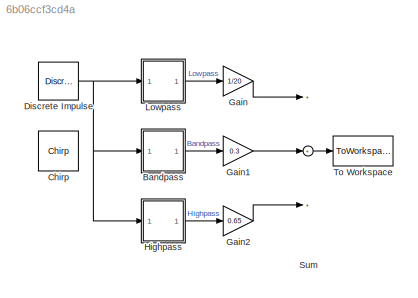
MODEL slx_6b06ccf3cd4a
KIND model
CONFIG AbsTol = auto
CONFIG EnableMultiTasking = off
CONFIG FixedStep = auto
CONFIG MaxStep = auto
CONFIG MinStep = auto
CONFIG RelTol = 1e-3
CONFIG SampleTimeConstraint = Unconstrained
CONFIG Solver = VariableStepAuto
CONFIG SolverName = VariableStepAuto
CONFIG StartTime = 0.0
CONFIG StopTime = 10
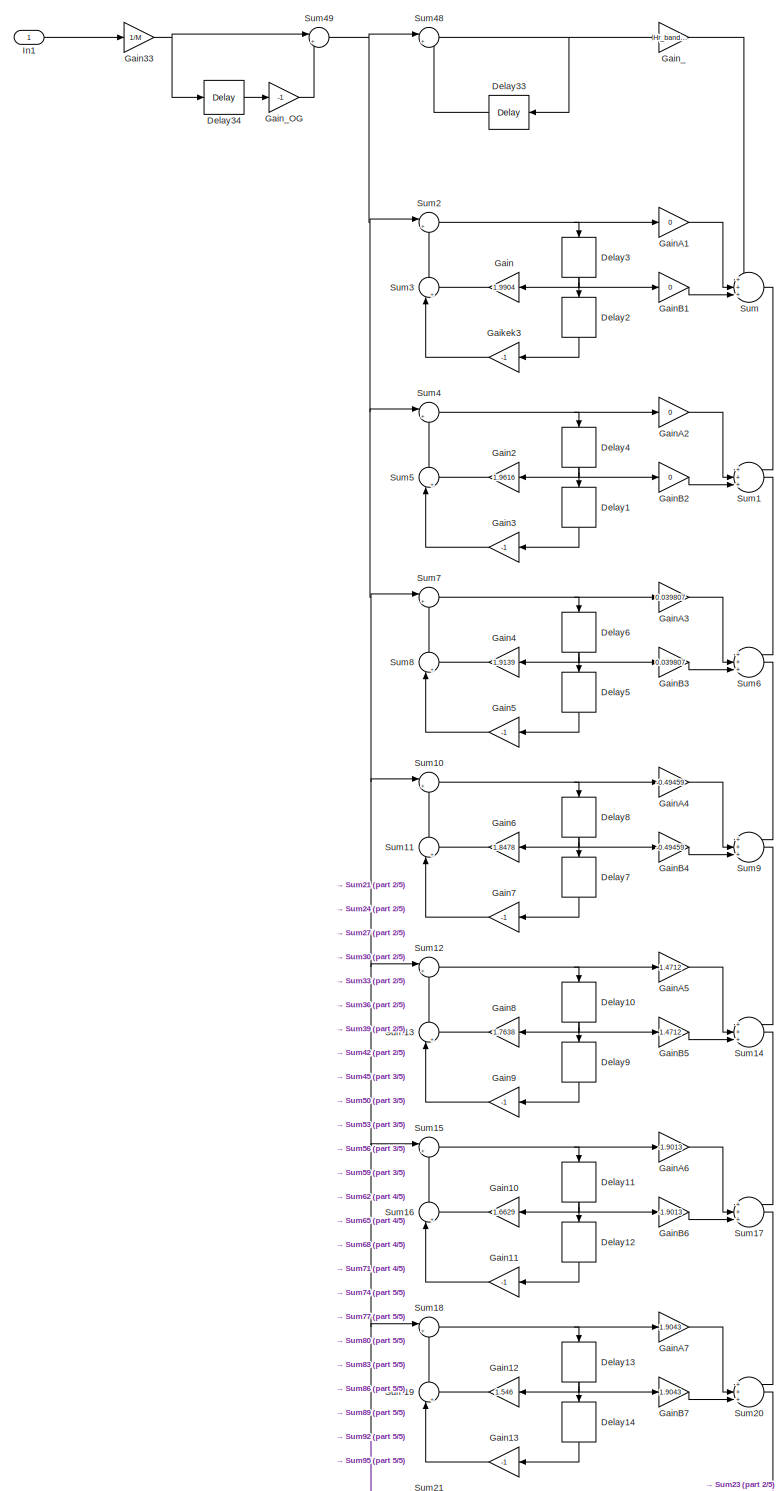
[diagram: Bandpass - part 1/5, full width, top band]
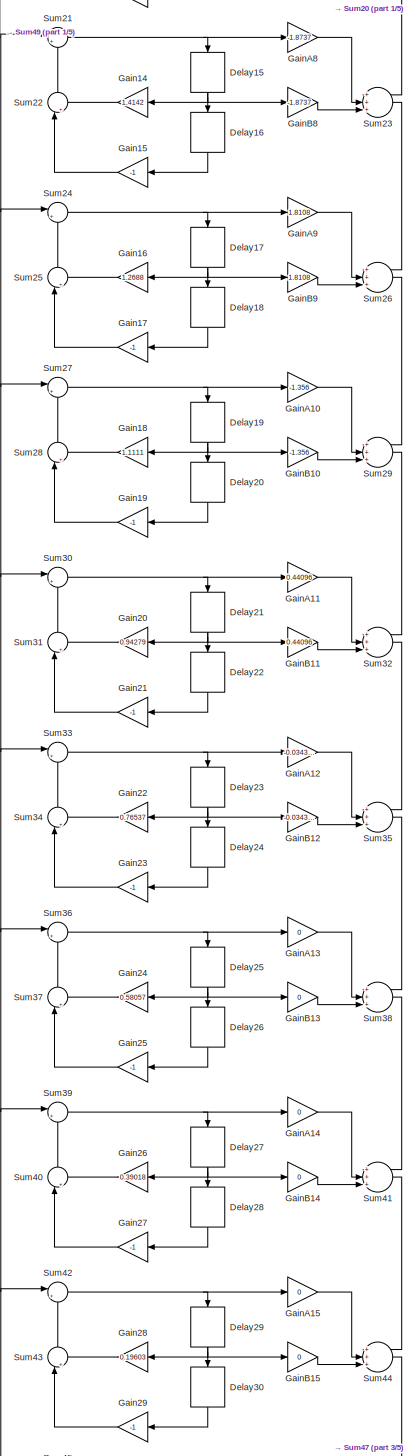
[diagram: Bandpass - part 2/5, central region]
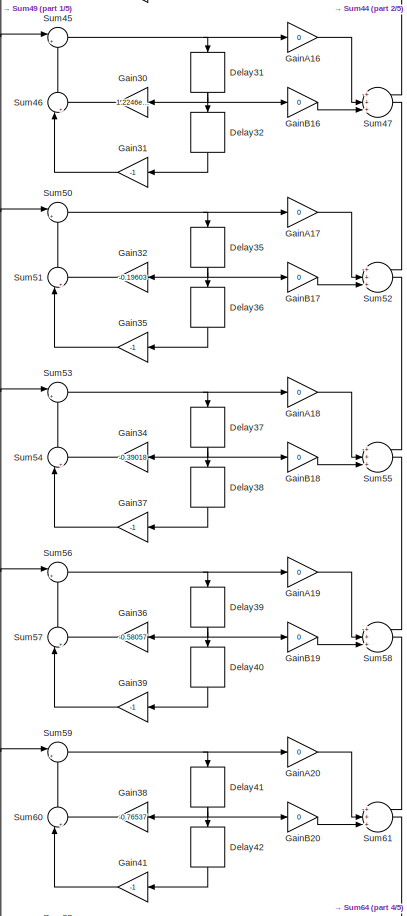
[diagram: Bandpass - part 3/5, central region]
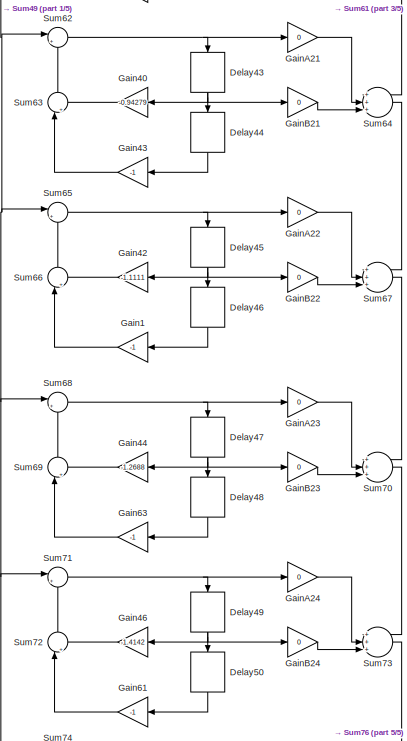
[diagram: Bandpass - part 4/5, bottom center region]
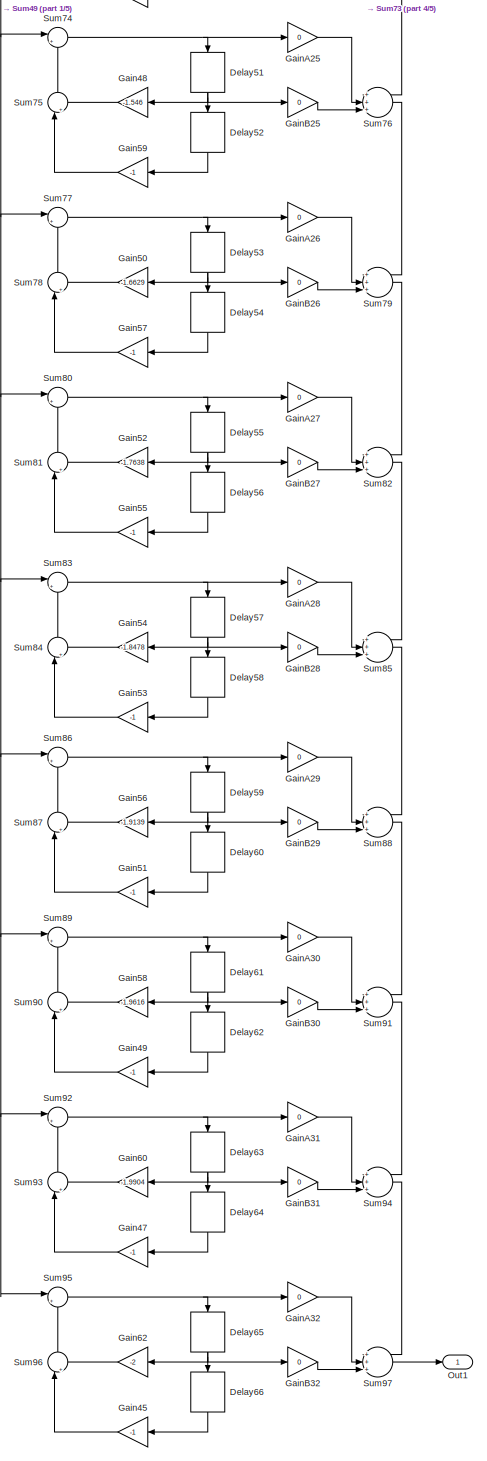
[diagram: Bandpass - part 5/5, bottom right region]
BLOCK [SubSystem] Bandpass
  Ports = [1, 1]
  RequestExecContextInheritance = off
  Variant = off
BLOCK [Delay] Bandpass/Delay1
  DelayLength = 1
  InputPortMap = u0
  Ports = [1, 1]
BLOCK [Delay] Bandpass/Delay10
  DelayLength = 1
  InputPortMap = u0
  Ports = [1, 1]
BLOCK [Delay] Bandpass/Delay11
  DelayLength = 1
  InputPortMap = u0
  Ports = [1, 1]
BLOCK [Delay] Bandpass/Delay12
  DelayLength = 1
  InputPortMap = u0
  Ports = [1, 1]
BLOCK [Delay] Bandpass/Delay13
  DelayLength = 1
  InputPortMap = u0
  Ports = [1, 1]
BLOCK [Delay] Bandpass/Delay14
  DelayLength = 1
  InputPortMap = u0
  Ports = [1, 1]
BLOCK [Delay] Bandpass/Delay15
  DelayLength = 1
  InputPortMap = u0
  Ports = [1, 1]
BLOCK [Delay] Bandpass/Delay16
  DelayLength = 1
  InputPortMap = u0
  Ports = [1, 1]
BLOCK [Delay] Bandpass/Delay17
  DelayLength = 1
  InputPortMap = u0
  Ports = [1, 1]
BLOCK [Delay] Bandpass/Delay18
  DelayLength = 1
  InputPortMap = u0
  Ports = [1, 1]
BLOCK [Delay] Bandpass/Delay19
  DelayLength = 1
  InputPortMap = u0
  Ports = [1, 1]
BLOCK [Delay] Bandpass/Delay2
  DelayLength = 1
  InputPortMap = u0
  Ports = [1, 1]
BLOCK [Delay] Bandpass/Delay20
  DelayLength = 1
  InputPortMap = u0
  Ports = [1, 1]
BLOCK [Delay] Bandpass/Delay21
  DelayLength = 1
  InputPortMap = u0
  Ports = [1, 1]
BLOCK [Delay] Bandpass/Delay22
  DelayLength = 1
  InputPortMap = u0
  Ports = [1, 1]
BLOCK [Delay] Bandpass/Delay23
  DelayLength = 1
  InputPortMap = u0
  Ports = [1, 1]
BLOCK [Delay] Bandpass/Delay24
  DelayLength = 1
  InputPortMap = u0
  Ports = [1, 1]
BLOCK [Delay] Bandpass/Delay25
  DelayLength = 1
  InputPortMap = u0
  Ports = [1, 1]
BLOCK [Delay] Bandpass/Delay26
  DelayLength = 1
  InputPortMap = u0
  Ports = [1, 1]
BLOCK [Delay] Bandpass/Delay27
  DelayLength = 1
  InputPortMap = u0
  Ports = [1, 1]
BLOCK [Delay] Bandpass/Delay28
  DelayLength = 1
  InputPortMap = u0
  Ports = [1, 1]
BLOCK [Delay] Bandpass/Delay29
  DelayLength = 1
  InputPortMap = u0
  Ports = [1, 1]
BLOCK [Delay] Bandpass/Delay3
  DelayLength = 1
  InputPortMap = u0
  Ports = [1, 1]
BLOCK [Delay] Bandpass/Delay30
  DelayLength = 1
  InputPortMap = u0
  Ports = [1, 1]
BLOCK [Delay] Bandpass/Delay31
  DelayLength = 1
  InputPortMap = u0
  Ports = [1, 1]
BLOCK [Delay] Bandpass/Delay32
  DelayLength = 1
  InputPortMap = u0
  Ports = [1, 1]
BLOCK [Delay] Bandpass/Delay33
  DelayLength = 1
  InputPortMap = u0
  Ports = [1, 1]
BLOCK [Delay] Bandpass/Delay34
  DelayLength = M
  InputPortMap = u0
  Ports = [1, 1]
BLOCK [Delay] Bandpass/Delay35
  DelayLength = 1
  InputPortMap = u0
  Ports = [1, 1]
BLOCK [Delay] Bandpass/Delay36
  DelayLength = 1
  InputPortMap = u0
  Ports = [1, 1]
BLOCK [Delay] Bandpass/Delay37
  DelayLength = 1
  InputPortMap = u0
  Ports = [1, 1]
BLOCK [Delay] Bandpass/Delay38
  DelayLength = 1
  InputPortMap = u0
  Ports = [1, 1]
BLOCK [Delay] Bandpass/Delay39
  DelayLength = 1
  InputPortMap = u0
  Ports = [1, 1]
BLOCK [Delay] Bandpass/Delay4
  DelayLength = 1
  InputPortMap = u0
  Ports = [1, 1]
BLOCK [Delay] Bandpass/Delay40
  DelayLength = 1
  InputPortMap = u0
  Ports = [1, 1]
BLOCK [Delay] Bandpass/Delay41
  DelayLength = 1
  InputPortMap = u0
  Ports = [1, 1]
BLOCK [Delay] Bandpass/Delay42
  DelayLength = 1
  InputPortMap = u0
  Ports = [1, 1]
BLOCK [Delay] Bandpass/Delay43
  DelayLength = 1
  InputPortMap = u0
  Ports = [1, 1]
BLOCK [Delay] Bandpass/Delay44
  DelayLength = 1
  InputPortMap = u0
  Ports = [1, 1]
BLOCK [Delay] Bandpass/Delay45
  DelayLength = 1
  InputPortMap = u0
  Ports = [1, 1]
BLOCK [Delay] Bandpass/Delay46
  DelayLength = 1
  InputPortMap = u0
  Ports = [1, 1]
BLOCK [Delay] Bandpass/Delay47
  DelayLength = 1
  InputPortMap = u0
  Ports = [1, 1]
BLOCK [Delay] Bandpass/Delay48
  DelayLength = 1
  InputPortMap = u0
  Ports = [1, 1]
BLOCK [Delay] Bandpass/Delay49
  DelayLength = 1
  InputPortMap = u0
  Ports = [1, 1]
BLOCK [Delay] Bandpass/Delay5
  DelayLength = 1
  InputPortMap = u0
  Ports = [1, 1]
BLOCK [Delay] Bandpass/Delay50
  DelayLength = 1
  InputPortMap = u0
  Ports = [1, 1]
BLOCK [Delay] Bandpass/Delay51
  DelayLength = 1
  InputPortMap = u0
  Ports = [1, 1]
BLOCK [Delay] Bandpass/Delay52
  DelayLength = 1
  InputPortMap = u0
  Ports = [1, 1]
BLOCK [Delay] Bandpass/Delay53
  DelayLength = 1
  InputPortMap = u0
  Ports = [1, 1]
BLOCK [Delay] Bandpass/Delay54
  DelayLength = 1
  InputPortMap = u0
  Ports = [1, 1]
BLOCK [Delay] Bandpass/Delay55
  DelayLength = 1
  InputPortMap = u0
  Ports = [1, 1]
BLOCK [Delay] Bandpass/Delay56
  DelayLength = 1
  InputPortMap = u0
  Ports = [1, 1]
BLOCK [Delay] Bandpass/Delay57
  DelayLength = 1
  InputPortMap = u0
  Ports = [1, 1]
BLOCK [Delay] Bandpass/Delay58
  DelayLength = 1
  InputPortMap = u0
  Ports = [1, 1]
BLOCK [Delay] Bandpass/Delay59
  DelayLength = 1
  InputPortMap = u0
  Ports = [1, 1]
BLOCK [Delay] Bandpass/Delay6
  DelayLength = 1
  InputPortMap = u0
  Ports = [1, 1]
BLOCK [Delay] Bandpass/Delay60
  DelayLength = 1
  InputPortMap = u0
  Ports = [1, 1]
BLOCK [Delay] Bandpass/Delay61
  DelayLength = 1
  InputPortMap = u0
  Ports = [1, 1]
BLOCK [Delay] Bandpass/Delay62
  DelayLength = 1
  InputPortMap = u0
  Ports = [1, 1]
BLOCK [Delay] Bandpass/Delay63
  DelayLength = 1
  InputPortMap = u0
  Ports = [1, 1]
BLOCK [Delay] Bandpass/Delay64
  DelayLength = 1
  InputPortMap = u0
  Ports = [1, 1]
BLOCK [Delay] Bandpass/Delay65
  DelayLength = 1
  InputPortMap = u0
  Ports = [1, 1]
BLOCK [Delay] Bandpass/Delay66
  DelayLength = 1
  InputPortMap = u0
  Ports = [1, 1]
BLOCK [Delay] Bandpass/Delay7
  DelayLength = 1
  InputPortMap = u0
  Ports = [1, 1]
BLOCK [Delay] Bandpass/Delay8
  DelayLength = 1
  InputPortMap = u0
  Ports = [1, 1]
BLOCK [Delay] Bandpass/Delay9
  DelayLength = 1
  InputPortMap = u0
  Ports = [1, 1]
BLOCK [Gain] Bandpass/Gaikek3
  Gain = -1
  OutDataTypeStr = Inherit: Inherit via internal rule
  ParamDataTypeStr = Inherit: Inherit via internal rule
  SaturateOnIntegerOverflow = off
BLOCK [Gain] Bandpass/Gain
  Gain = 1.9904
  OutDataTypeStr = Inherit: Inherit via internal rule
  ParamDataTypeStr = Inherit: Inherit via internal rule
  SaturateOnIntegerOverflow = off
BLOCK [Gain] Bandpass/Gain1
  Gain = -1
  OutDataTypeStr = Inherit: Inherit via internal rule
  ParamDataTypeStr = Inherit: Inherit via internal rule
  SaturateOnIntegerOverflow = off
BLOCK [Gain] Bandpass/Gain10
  Gain = 1.6629
  OutDataTypeStr = Inherit: Inherit via internal rule
  ParamDataTypeStr = Inherit: Inherit via internal rule
  SaturateOnIntegerOverflow = off
BLOCK [Gain] Bandpass/Gain11
  Gain = -1
  OutDataTypeStr = Inherit: Inherit via internal rule
  ParamDataTypeStr = Inherit: Inherit via internal rule
  SaturateOnIntegerOverflow = off
BLOCK [Gain] Bandpass/Gain12
  Gain = 1.546
  OutDataTypeStr = Inherit: Inherit via internal rule
  ParamDataTypeStr = Inherit: Inherit via internal rule
  SaturateOnIntegerOverflow = off
BLOCK [Gain] Bandpass/Gain13
  Gain = -1
  OutDataTypeStr = Inherit: Inherit via internal rule
  ParamDataTypeStr = Inherit: Inherit via internal rule
  SaturateOnIntegerOverflow = off
BLOCK [Gain] Bandpass/Gain14
  Gain = 1.4142
  OutDataTypeStr = Inherit: Inherit via internal rule
  ParamDataTypeStr = Inherit: Inherit via internal rule
  SaturateOnIntegerOverflow = off
BLOCK [Gain] Bandpass/Gain15
  Gain = -1
  OutDataTypeStr = Inherit: Inherit via internal rule
  ParamDataTypeStr = Inherit: Inherit via internal rule
  SaturateOnIntegerOverflow = off
BLOCK [Gain] Bandpass/Gain16
  Gain = 1.2688
  OutDataTypeStr = Inherit: Inherit via internal rule
  ParamDataTypeStr = Inherit: Inherit via internal rule
  SaturateOnIntegerOverflow = off
BLOCK [Gain] Bandpass/Gain17
  Gain = -1
  OutDataTypeStr = Inherit: Inherit via internal rule
  ParamDataTypeStr = Inherit: Inherit via internal rule
  SaturateOnIntegerOverflow = off
BLOCK [Gain] Bandpass/Gain18
  Gain = 1.1111
  OutDataTypeStr = Inherit: Inherit via internal rule
  ParamDataTypeStr = Inherit: Inherit via internal rule
  SaturateOnIntegerOverflow = off
BLOCK [Gain] Bandpass/Gain19
  Gain = -1
  OutDataTypeStr = Inherit: Inherit via internal rule
  ParamDataTypeStr = Inherit: Inherit via internal rule
  SaturateOnIntegerOverflow = off
BLOCK [Gain] Bandpass/Gain2
  Gain = 1.9616
  OutDataTypeStr = Inherit: Inherit via internal rule
  ParamDataTypeStr = Inherit: Inherit via internal rule
  SaturateOnIntegerOverflow = off
BLOCK [Gain] Bandpass/Gain20
  Gain = 0.94279
  OutDataTypeStr = Inherit: Inherit via internal rule
  ParamDataTypeStr = Inherit: Inherit via internal rule
  SaturateOnIntegerOverflow = off
BLOCK [Gain] Bandpass/Gain21
  Gain = -1
  OutDataTypeStr = Inherit: Inherit via internal rule
  ParamDataTypeStr = Inherit: Inherit via internal rule
  SaturateOnIntegerOverflow = off
BLOCK [Gain] Bandpass/Gain22
  Gain = 0.76537
  OutDataTypeStr = Inherit: Inherit via internal rule
  ParamDataTypeStr = Inherit: Inherit via internal rule
  SaturateOnIntegerOverflow = off
BLOCK [Gain] Bandpass/Gain23
  Gain = -1
  OutDataTypeStr = Inherit: Inherit via internal rule
  ParamDataTypeStr = Inherit: Inherit via internal rule
  SaturateOnIntegerOverflow = off
BLOCK [Gain] Bandpass/Gain24
  Gain = 0.58057
  OutDataTypeStr = Inherit: Inherit via internal rule
  ParamDataTypeStr = Inherit: Inherit via internal rule
  SaturateOnIntegerOverflow = off
BLOCK [Gain] Bandpass/Gain25
  Gain = -1
  OutDataTypeStr = Inherit: Inherit via internal rule
  ParamDataTypeStr = Inherit: Inherit via internal rule
  SaturateOnIntegerOverflow = off
BLOCK [Gain] Bandpass/Gain26
  Gain = 0.39018
  OutDataTypeStr = Inherit: Inherit via internal rule
  ParamDataTypeStr = Inherit: Inherit via internal rule
  SaturateOnIntegerOverflow = off
BLOCK [Gain] Bandpass/Gain27
  Gain = -1
  OutDataTypeStr = Inherit: Inherit via internal rule
  ParamDataTypeStr = Inherit: Inherit via internal rule
  SaturateOnIntegerOverflow = off
BLOCK [Gain] Bandpass/Gain28
  Gain = 0.19603
  OutDataTypeStr = Inherit: Inherit via internal rule
  ParamDataTypeStr = Inherit: Inherit via internal rule
  SaturateOnIntegerOverflow = off
BLOCK [Gain] Bandpass/Gain29
  Gain = -1
  OutDataTypeStr = Inherit: Inherit via internal rule
  ParamDataTypeStr = Inherit: Inherit via internal rule
  SaturateOnIntegerOverflow = off
BLOCK [Gain] Bandpass/Gain3
  Gain = -1
  OutDataTypeStr = Inherit: Inherit via internal rule
  ParamDataTypeStr = Inherit: Inherit via internal rule
  SaturateOnIntegerOverflow = off
BLOCK [Gain] Bandpass/Gain30
  Gain = 1.2246e-16
  OutDataTypeStr = Inherit: Inherit via internal rule
  ParamDataTypeStr = Inherit: Inherit via internal rule
  SaturateOnIntegerOverflow = off
BLOCK [Gain] Bandpass/Gain31
  Gain = -1
  OutDataTypeStr = Inherit: Inherit via internal rule
  ParamDataTypeStr = Inherit: Inherit via internal rule
  SaturateOnIntegerOverflow = off
BLOCK [Gain] Bandpass/Gain32
  Gain = -0.19603
  OutDataTypeStr = Inherit: Inherit via internal rule
  ParamDataTypeStr = Inherit: Inherit via internal rule
  SaturateOnIntegerOverflow = off
BLOCK [Gain] Bandpass/Gain33
  Gain = 1/M
  OutDataTypeStr = Inherit: Inherit via internal rule
  ParamDataTypeStr = Inherit: Inherit via internal rule
  SaturateOnIntegerOverflow = off
BLOCK [Gain] Bandpass/Gain34
  Gain = -0.39018
  OutDataTypeStr = Inherit: Inherit via internal rule
  ParamDataTypeStr = Inherit: Inherit via internal rule
  SaturateOnIntegerOverflow = off
BLOCK [Gain] Bandpass/Gain35
  Gain = -1
  OutDataTypeStr = Inherit: Inherit via internal rule
  ParamDataTypeStr = Inherit: Inherit via internal rule
  SaturateOnIntegerOverflow = off
BLOCK [Gain] Bandpass/Gain36
  Gain = -0.58057
  OutDataTypeStr = Inherit: Inherit via internal rule
  ParamDataTypeStr = Inherit: Inherit via internal rule
  SaturateOnIntegerOverflow = off
BLOCK [Gain] Bandpass/Gain37
  Gain = -1
  OutDataTypeStr = Inherit: Inherit via internal rule
  ParamDataTypeStr = Inherit: Inherit via internal rule
  SaturateOnIntegerOverflow = off
BLOCK [Gain] Bandpass/Gain38
  Gain = -0.76537
  OutDataTypeStr = Inherit: Inherit via internal rule
  ParamDataTypeStr = Inherit: Inherit via internal rule
  SaturateOnIntegerOverflow = off
BLOCK [Gain] Bandpass/Gain39
  Gain = -1
  OutDataTypeStr = Inherit: Inherit via internal rule
  ParamDataTypeStr = Inherit: Inherit via internal rule
  SaturateOnIntegerOverflow = off
BLOCK [Gain] Bandpass/Gain4
  Gain = 1.9139
  OutDataTypeStr = Inherit: Inherit via internal rule
  ParamDataTypeStr = Inherit: Inherit via internal rule
  SaturateOnIntegerOverflow = off
BLOCK [Gain] Bandpass/Gain40
  Gain = -0.94279
  OutDataTypeStr = Inherit: Inherit via internal rule
  ParamDataTypeStr = Inherit: Inherit via internal rule
  SaturateOnIntegerOverflow = off
BLOCK [Gain] Bandpass/Gain41
  Gain = -1
  OutDataTypeStr = Inherit: Inherit via internal rule
  ParamDataTypeStr = Inherit: Inherit via internal rule
  SaturateOnIntegerOverflow = off
BLOCK [Gain] Bandpass/Gain42
  Gain = -1.1111
  OutDataTypeStr = Inherit: Inherit via internal rule
  ParamDataTypeStr = Inherit: Inherit via internal rule
  SaturateOnIntegerOverflow = off
BLOCK [Gain] Bandpass/Gain43
  Gain = -1
  OutDataTypeStr = Inherit: Inherit via internal rule
  ParamDataTypeStr = Inherit: Inherit via internal rule
  SaturateOnIntegerOverflow = off
BLOCK [Gain] Bandpass/Gain44
  Gain = -1.2688
  OutDataTypeStr = Inherit: Inherit via internal rule
  ParamDataTypeStr = Inherit: Inherit via internal rule
  SaturateOnIntegerOverflow = off
BLOCK [Gain] Bandpass/Gain45
  Gain = -1
  OutDataTypeStr = Inherit: Inherit via internal rule
  ParamDataTypeStr = Inherit: Inherit via internal rule
  SaturateOnIntegerOverflow = off
BLOCK [Gain] Bandpass/Gain46
  Gain = -1.4142
  OutDataTypeStr = Inherit: Inherit via internal rule
  ParamDataTypeStr = Inherit: Inherit via internal rule
  SaturateOnIntegerOverflow = off
BLOCK [Gain] Bandpass/Gain47
  Gain = -1
  OutDataTypeStr = Inherit: Inherit via internal rule
  ParamDataTypeStr = Inherit: Inherit via internal rule
  SaturateOnIntegerOverflow = off
BLOCK [Gain] Bandpass/Gain48
  Gain = -1.546
  OutDataTypeStr = Inherit: Inherit via internal rule
  ParamDataTypeStr = Inherit: Inherit via internal rule
  SaturateOnIntegerOverflow = off
BLOCK [Gain] Bandpass/Gain49
  Gain = -1
  OutDataTypeStr = Inherit: Inherit via internal rule
  ParamDataTypeStr = Inherit: Inherit via internal rule
  SaturateOnIntegerOverflow = off
BLOCK [Gain] Bandpass/Gain5
  Gain = -1
  OutDataTypeStr = Inherit: Inherit via internal rule
  ParamDataTypeStr = Inherit: Inherit via internal rule
  SaturateOnIntegerOverflow = off
BLOCK [Gain] Bandpass/Gain50
  Gain = -1.6629
  OutDataTypeStr = Inherit: Inherit via internal rule
  ParamDataTypeStr = Inherit: Inherit via internal rule
  SaturateOnIntegerOverflow = off
BLOCK [Gain] Bandpass/Gain51
  Gain = -1
  OutDataTypeStr = Inherit: Inherit via internal rule
  ParamDataTypeStr = Inherit: Inherit via internal rule
  SaturateOnIntegerOverflow = off
BLOCK [Gain] Bandpass/Gain52
  Gain = -1.7638
  OutDataTypeStr = Inherit: Inherit via internal rule
  ParamDataTypeStr = Inherit: Inherit via internal rule
  SaturateOnIntegerOverflow = off
BLOCK [Gain] Bandpass/Gain53
  Gain = -1
  OutDataTypeStr = Inherit: Inherit via internal rule
  ParamDataTypeStr = Inherit: Inherit via internal rule
  SaturateOnIntegerOverflow = off
BLOCK [Gain] Bandpass/Gain54
  Gain = -1.8478
  OutDataTypeStr = Inherit: Inherit via internal rule
  ParamDataTypeStr = Inherit: Inherit via internal rule
  SaturateOnIntegerOverflow = off
BLOCK [Gain] Bandpass/Gain55
  Gain = -1
  OutDataTypeStr = Inherit: Inherit via internal rule
  ParamDataTypeStr = Inherit: Inherit via internal rule
  SaturateOnIntegerOverflow = off
BLOCK [Gain] Bandpass/Gain56
  Gain = -1.9139
  OutDataTypeStr = Inherit: Inherit via internal rule
  ParamDataTypeStr = Inherit: Inherit via internal rule
  SaturateOnIntegerOverflow = off
BLOCK [Gain] Bandpass/Gain57
  Gain = -1
  OutDataTypeStr = Inherit: Inherit via internal rule
  ParamDataTypeStr = Inherit: Inherit via internal rule
  SaturateOnIntegerOverflow = off
BLOCK [Gain] Bandpass/Gain58
  Gain = -1.9616
  OutDataTypeStr = Inherit: Inherit via internal rule
  ParamDataTypeStr = Inherit: Inherit via internal rule
  SaturateOnIntegerOverflow = off
BLOCK [Gain] Bandpass/Gain59
  Gain = -1
  OutDataTypeStr = Inherit: Inherit via internal rule
  ParamDataTypeStr = Inherit: Inherit via internal rule
  SaturateOnIntegerOverflow = off
BLOCK [Gain] Bandpass/Gain6
  Gain = 1.8478
  OutDataTypeStr = Inherit: Inherit via internal rule
  ParamDataTypeStr = Inherit: Inherit via internal rule
  SaturateOnIntegerOverflow = off
BLOCK [Gain] Bandpass/Gain60
  Gain = -1.9904
  OutDataTypeStr = Inherit: Inherit via internal rule
  ParamDataTypeStr = Inherit: Inherit via internal rule
  SaturateOnIntegerOverflow = off
BLOCK [Gain] Bandpass/Gain61
  Gain = -1
  OutDataTypeStr = Inherit: Inherit via internal rule
  ParamDataTypeStr = Inherit: Inherit via internal rule
  SaturateOnIntegerOverflow = off
BLOCK [Gain] Bandpass/Gain62
  Gain = -2
  OutDataTypeStr = Inherit: Inherit via internal rule
  ParamDataTypeStr = Inherit: Inherit via internal rule
  SaturateOnIntegerOverflow = off
BLOCK [Gain] Bandpass/Gain63
  Gain = -1
  OutDataTypeStr = Inherit: Inherit via internal rule
  ParamDataTypeStr = Inherit: Inherit via internal rule
  SaturateOnIntegerOverflow = off
BLOCK [Gain] Bandpass/Gain7
  Gain = -1
  OutDataTypeStr = Inherit: Inherit via internal rule
  ParamDataTypeStr = Inherit: Inherit via internal rule
  SaturateOnIntegerOverflow = off
BLOCK [Gain] Bandpass/Gain8
  Gain = 1.7638
  OutDataTypeStr = Inherit: Inherit via internal rule
  ParamDataTypeStr = Inherit: Inherit via internal rule
  SaturateOnIntegerOverflow = off
BLOCK [Gain] Bandpass/Gain9
  Gain = -1
  OutDataTypeStr = Inherit: Inherit via internal rule
  ParamDataTypeStr = Inherit: Inherit via internal rule
  SaturateOnIntegerOverflow = off
BLOCK [Gain] Bandpass/GainA1
  Gain = 0
  OutDataTypeStr = Inherit: Inherit via internal rule
  ParamDataTypeStr = Inherit: Inherit via internal rule
  SaturateOnIntegerOverflow = off
BLOCK [Gain] Bandpass/GainA10
  Gain = -1.356
  OutDataTypeStr = Inherit: Inherit via internal rule
  ParamDataTypeStr = Inherit: Inherit via internal rule
  SaturateOnIntegerOverflow = off
BLOCK [Gain] Bandpass/GainA11
  Gain = 0.44096
  OutDataTypeStr = Inherit: Inherit via internal rule
  ParamDataTypeStr = Inherit: Inherit via internal rule
  SaturateOnIntegerOverflow = off
BLOCK [Gain] Bandpass/GainA12
  Gain = -0.034309
  OutDataTypeStr = Inherit: Inherit via internal rule
  ParamDataTypeStr = Inherit: Inherit via internal rule
  SaturateOnIntegerOverflow = off
BLOCK [Gain] Bandpass/GainA13
  Gain = 0
  OutDataTypeStr = Inherit: Inherit via internal rule
  ParamDataTypeStr = Inherit: Inherit via internal rule
  SaturateOnIntegerOverflow = off
BLOCK [Gain] Bandpass/GainA14
  Gain = 0
  OutDataTypeStr = Inherit: Inherit via internal rule
  ParamDataTypeStr = Inherit: Inherit via internal rule
  SaturateOnIntegerOverflow = off
BLOCK [Gain] Bandpass/GainA15
  Gain = 0
  OutDataTypeStr = Inherit: Inherit via internal rule
  ParamDataTypeStr = Inherit: Inherit via internal rule
  SaturateOnIntegerOverflow = off
BLOCK [Gain] Bandpass/GainA16
  Gain = 0
  OutDataTypeStr = Inherit: Inherit via internal rule
  ParamDataTypeStr = Inherit: Inherit via internal rule
  SaturateOnIntegerOverflow = off
BLOCK [Gain] Bandpass/GainA17
  Gain = 0
  OutDataTypeStr = Inherit: Inherit via internal rule
  ParamDataTypeStr = Inherit: Inherit via internal rule
  SaturateOnIntegerOverflow = off
BLOCK [Gain] Bandpass/GainA18
  Gain = 0
  OutDataTypeStr = Inherit: Inherit via internal rule
  ParamDataTypeStr = Inherit: Inherit via internal rule
  SaturateOnIntegerOverflow = off
BLOCK [Gain] Bandpass/GainA19
  Gain = 0
  OutDataTypeStr = Inherit: Inherit via internal rule
  ParamDataTypeStr = Inherit: Inherit via internal rule
  SaturateOnIntegerOverflow = off
BLOCK [Gain] Bandpass/GainA2
  Gain = 0
  OutDataTypeStr = Inherit: Inherit via internal rule
  ParamDataTypeStr = Inherit: Inherit via internal rule
  SaturateOnIntegerOverflow = off
BLOCK [Gain] Bandpass/GainA20
  Gain = 0
  OutDataTypeStr = Inherit: Inherit via internal rule
  ParamDataTypeStr = Inherit: Inherit via internal rule
  SaturateOnIntegerOverflow = off
BLOCK [Gain] Bandpass/GainA21
  Gain = 0
  OutDataTypeStr = Inherit: Inherit via internal rule
  ParamDataTypeStr = Inherit: Inherit via internal rule
  SaturateOnIntegerOverflow = off
BLOCK [Gain] Bandpass/GainA22
  Gain = 0
  OutDataTypeStr = Inherit: Inherit via internal rule
  ParamDataTypeStr = Inherit: Inherit via internal rule
  SaturateOnIntegerOverflow = off
BLOCK [Gain] Bandpass/GainA23
  Gain = 0
  OutDataTypeStr = Inherit: Inherit via internal rule
  ParamDataTypeStr = Inherit: Inherit via internal rule
  SaturateOnIntegerOverflow = off
BLOCK [Gain] Bandpass/GainA24
  Gain = 0
  OutDataTypeStr = Inherit: Inherit via internal rule
  ParamDataTypeStr = Inherit: Inherit via internal rule
  SaturateOnIntegerOverflow = off
BLOCK [Gain] Bandpass/GainA25
  Gain = 0
  OutDataTypeStr = Inherit: Inherit via internal rule
  ParamDataTypeStr = Inherit: Inherit via internal rule
  SaturateOnIntegerOverflow = off
BLOCK [Gain] Bandpass/GainA26
  Gain = 0
  OutDataTypeStr = Inherit: Inherit via internal rule
  ParamDataTypeStr = Inherit: Inherit via internal rule
  SaturateOnIntegerOverflow = off
BLOCK [Gain] Bandpass/GainA27
  Gain = 0
  OutDataTypeStr = Inherit: Inherit via internal rule
  ParamDataTypeStr = Inherit: Inherit via internal rule
  SaturateOnIntegerOverflow = off
BLOCK [Gain] Bandpass/GainA28
  Gain = 0
  OutDataTypeStr = Inherit: Inherit via internal rule
  ParamDataTypeStr = Inherit: Inherit via internal rule
  SaturateOnIntegerOverflow = off
BLOCK [Gain] Bandpass/GainA29
  Gain = 0
  OutDataTypeStr = Inherit: Inherit via internal rule
  ParamDataTypeStr = Inherit: Inherit via internal rule
  SaturateOnIntegerOverflow = off
BLOCK [Gain] Bandpass/GainA3
  Gain = 0.039807
  OutDataTypeStr = Inherit: Inherit via internal rule
  ParamDataTypeStr = Inherit: Inherit via internal rule
  SaturateOnIntegerOverflow = off
BLOCK [Gain] Bandpass/GainA30
  Gain = 0
  OutDataTypeStr = Inherit: Inherit via internal rule
  ParamDataTypeStr = Inherit: Inherit via internal rule
  SaturateOnIntegerOverflow = off
BLOCK [Gain] Bandpass/GainA31
  Gain = 0
  OutDataTypeStr = Inherit: Inherit via internal rule
  ParamDataTypeStr = Inherit: Inherit via internal rule
  SaturateOnIntegerOverflow = off
BLOCK [Gain] Bandpass/GainA32
  Gain = 0
  OutDataTypeStr = Inherit: Inherit via internal rule
  ParamDataTypeStr = Inherit: Inherit via internal rule
  SaturateOnIntegerOverflow = off
BLOCK [Gain] Bandpass/GainA4
  Gain = -0.49459
  OutDataTypeStr = Inherit: Inherit via internal rule
  ParamDataTypeStr = Inherit: Inherit via internal rule
  SaturateOnIntegerOverflow = off
BLOCK [Gain] Bandpass/GainA5
  Gain = 1.4712
  OutDataTypeStr = Inherit: Inherit via internal rule
  ParamDataTypeStr = Inherit: Inherit via internal rule
  SaturateOnIntegerOverflow = off
BLOCK [Gain] Bandpass/GainA6
  Gain = -1.9013
  OutDataTypeStr = Inherit: Inherit via internal rule
  ParamDataTypeStr = Inherit: Inherit via internal rule
  SaturateOnIntegerOverflow = off
BLOCK [Gain] Bandpass/GainA7
  Gain = 1.9043
  OutDataTypeStr = Inherit: Inherit via internal rule
  ParamDataTypeStr = Inherit: Inherit via internal rule
  SaturateOnIntegerOverflow = off
BLOCK [Gain] Bandpass/GainA8
  Gain = -1.8737
  OutDataTypeStr = Inherit: Inherit via internal rule
  ParamDataTypeStr = Inherit: Inherit via internal rule
  SaturateOnIntegerOverflow = off
BLOCK [Gain] Bandpass/GainA9
  Gain = 1.8108
  OutDataTypeStr = Inherit: Inherit via internal rule
  ParamDataTypeStr = Inherit: Inherit via internal rule
  SaturateOnIntegerOverflow = off
BLOCK [Gain] Bandpass/GainB1
  Gain = 0
  OutDataTypeStr = Inherit: Inherit via internal rule
  ParamDataTypeStr = Inherit: Inherit via internal rule
  SaturateOnIntegerOverflow = off
BLOCK [Gain] Bandpass/GainB10
  Gain = -1.356
  OutDataTypeStr = Inherit: Inherit via internal rule
  ParamDataTypeStr = Inherit: Inherit via internal rule
  SaturateOnIntegerOverflow = off
BLOCK [Gain] Bandpass/GainB11
  Gain = 0.44096
  OutDataTypeStr = Inherit: Inherit via internal rule
  ParamDataTypeStr = Inherit: Inherit via internal rule
  SaturateOnIntegerOverflow = off
BLOCK [Gain] Bandpass/GainB12
  Gain = -0.034309
  OutDataTypeStr = Inherit: Inherit via internal rule
  ParamDataTypeStr = Inherit: Inherit via internal rule
  SaturateOnIntegerOverflow = off
BLOCK [Gain] Bandpass/GainB13
  Gain = 0
  OutDataTypeStr = Inherit: Inherit via internal rule
  ParamDataTypeStr = Inherit: Inherit via internal rule
  SaturateOnIntegerOverflow = off
BLOCK [Gain] Bandpass/GainB14
  Gain = 0
  OutDataTypeStr = Inherit: Inherit via internal rule
  ParamDataTypeStr = Inherit: Inherit via internal rule
  SaturateOnIntegerOverflow = off
BLOCK [Gain] Bandpass/GainB15
  Gain = 0
  OutDataTypeStr = Inherit: Inherit via internal rule
  ParamDataTypeStr = Inherit: Inherit via internal rule
  SaturateOnIntegerOverflow = off
BLOCK [Gain] Bandpass/GainB16
  Gain = 0
  OutDataTypeStr = Inherit: Inherit via internal rule
  ParamDataTypeStr = Inherit: Inherit via internal rule
  SaturateOnIntegerOverflow = off
BLOCK [Gain] Bandpass/GainB17
  Gain = 0
  OutDataTypeStr = Inherit: Inherit via internal rule
  ParamDataTypeStr = Inherit: Inherit via internal rule
  SaturateOnIntegerOverflow = off
BLOCK [Gain] Bandpass/GainB18
  Gain = 0
  OutDataTypeStr = Inherit: Inherit via internal rule
  ParamDataTypeStr = Inherit: Inherit via internal rule
  SaturateOnIntegerOverflow = off
BLOCK [Gain] Bandpass/GainB19
  Gain = 0
  OutDataTypeStr = Inherit: Inherit via internal rule
  ParamDataTypeStr = Inherit: Inherit via internal rule
  SaturateOnIntegerOverflow = off
BLOCK [Gain] Bandpass/GainB2
  Gain = 0
  OutDataTypeStr = Inherit: Inherit via internal rule
  ParamDataTypeStr = Inherit: Inherit via internal rule
  SaturateOnIntegerOverflow = off
BLOCK [Gain] Bandpass/GainB20
  Gain = 0
  OutDataTypeStr = Inherit: Inherit via internal rule
  ParamDataTypeStr = Inherit: Inherit via internal rule
  SaturateOnIntegerOverflow = off
BLOCK [Gain] Bandpass/GainB21
  Gain = 0
  OutDataTypeStr = Inherit: Inherit via internal rule
  ParamDataTypeStr = Inherit: Inherit via internal rule
  SaturateOnIntegerOverflow = off
BLOCK [Gain] Bandpass/GainB22
  Gain = 0
  OutDataTypeStr = Inherit: Inherit via internal rule
  ParamDataTypeStr = Inherit: Inherit via internal rule
  SaturateOnIntegerOverflow = off
BLOCK [Gain] Bandpass/GainB23
  Gain = 0
  OutDataTypeStr = Inherit: Inherit via internal rule
  ParamDataTypeStr = Inherit: Inherit via internal rule
  SaturateOnIntegerOverflow = off
BLOCK [Gain] Bandpass/GainB24
  Gain = 0
  OutDataTypeStr = Inherit: Inherit via internal rule
  ParamDataTypeStr = Inherit: Inherit via internal rule
  SaturateOnIntegerOverflow = off
BLOCK [Gain] Bandpass/GainB25
  Gain = 0
  OutDataTypeStr = Inherit: Inherit via internal rule
  ParamDataTypeStr = Inherit: Inherit via internal rule
  SaturateOnIntegerOverflow = off
BLOCK [Gain] Bandpass/GainB26
  Gain = 0
  OutDataTypeStr = Inherit: Inherit via internal rule
  ParamDataTypeStr = Inherit: Inherit via internal rule
  SaturateOnIntegerOverflow = off
BLOCK [Gain] Bandpass/GainB27
  Gain = 0
  OutDataTypeStr = Inherit: Inherit via internal rule
  ParamDataTypeStr = Inherit: Inherit via internal rule
  SaturateOnIntegerOverflow = off
BLOCK [Gain] Bandpass/GainB28
  Gain = 0
  OutDataTypeStr = Inherit: Inherit via internal rule
  ParamDataTypeStr = Inherit: Inherit via internal rule
  SaturateOnIntegerOverflow = off
BLOCK [Gain] Bandpass/GainB29
  Gain = 0
  OutDataTypeStr = Inherit: Inherit via internal rule
  ParamDataTypeStr = Inherit: Inherit via internal rule
  SaturateOnIntegerOverflow = off
BLOCK [Gain] Bandpass/GainB3
  Gain = 0.039807
  OutDataTypeStr = Inherit: Inherit via internal rule
  ParamDataTypeStr = Inherit: Inherit via internal rule
  SaturateOnIntegerOverflow = off
BLOCK [Gain] Bandpass/GainB30
  Gain = 0
  OutDataTypeStr = Inherit: Inherit via internal rule
  ParamDataTypeStr = Inherit: Inherit via internal rule
  SaturateOnIntegerOverflow = off
BLOCK [Gain] Bandpass/GainB31
  Gain = 0
  OutDataTypeStr = Inherit: Inherit via internal rule
  ParamDataTypeStr = Inherit: Inherit via internal rule
  SaturateOnIntegerOverflow = off
BLOCK [Gain] Bandpass/GainB32
  Gain = 0
  OutDataTypeStr = Inherit: Inherit via internal rule
  ParamDataTypeStr = Inherit: Inherit via internal rule
  SaturateOnIntegerOverflow = off
BLOCK [Gain] Bandpass/GainB4
  Gain = -0.49459
  OutDataTypeStr = Inherit: Inherit via internal rule
  ParamDataTypeStr = Inherit: Inherit via internal rule
  SaturateOnIntegerOverflow = off
BLOCK [Gain] Bandpass/GainB5
  Gain = 1.4712
  OutDataTypeStr = Inherit: Inherit via internal rule
  ParamDataTypeStr = Inherit: Inherit via internal rule
  SaturateOnIntegerOverflow = off
BLOCK [Gain] Bandpass/GainB6
  Gain = -1.9013
  OutDataTypeStr = Inherit: Inherit via internal rule
  ParamDataTypeStr = Inherit: Inherit via internal rule
  SaturateOnIntegerOverflow = off
BLOCK [Gain] Bandpass/GainB7
  Gain = 1.9043
  OutDataTypeStr = Inherit: Inherit via internal rule
  ParamDataTypeStr = Inherit: Inherit via internal rule
  SaturateOnIntegerOverflow = off
BLOCK [Gain] Bandpass/GainB8
  Gain = -1.8737
  OutDataTypeStr = Inherit: Inherit via internal rule
  ParamDataTypeStr = Inherit: Inherit via internal rule
  SaturateOnIntegerOverflow = off
BLOCK [Gain] Bandpass/GainB9
  Gain = 1.8108
  OutDataTypeStr = Inherit: Inherit via internal rule
  ParamDataTypeStr = Inherit: Inherit via internal rule
  SaturateOnIntegerOverflow = off
BLOCK [Gain] Bandpass/Gain_
  Gain = Hr_band(1)
  OutDataTypeStr = Inherit: Inherit via internal rule
  ParamDataTypeStr = Inherit: Inherit via internal rule
  SaturateOnIntegerOverflow = off
BLOCK [Gain] Bandpass/Gain_OG
  Gain = -1
  OutDataTypeStr = Inherit: Inherit via internal rule
  ParamDataTypeStr = Inherit: Inherit via internal rule
  SaturateOnIntegerOverflow = off
BLOCK [Inport] Bandpass/In1
  IconDisplay = Port number
BLOCK [Outport] Bandpass/Out1
  IconDisplay = Port number
BLOCK [Sum] Bandpass/Sum
  IconShape = round
  InputSameDT = off
  Inputs = +++||
  OutDataTypeStr = Inherit: Inherit via internal rule
  Ports = [3, 1]
  SaturateOnIntegerOverflow = off
BLOCK [Sum] Bandpass/Sum1
  IconShape = round
  InputSameDT = off
  Inputs = +++||
  OutDataTypeStr = Inherit: Inherit via internal rule
  Ports = [3, 1]
  SaturateOnIntegerOverflow = off
BLOCK [Sum] Bandpass/Sum10
  IconShape = round
  InputSameDT = off
  Inputs = |++
  OutDataTypeStr = Inherit: Inherit via internal rule
  Ports = [2, 1]
  SaturateOnIntegerOverflow = off
BLOCK [Sum] Bandpass/Sum11
  IconShape = round
  InputSameDT = off
  Inputs = |++
  OutDataTypeStr = Inherit: Inherit via internal rule
  Ports = [2, 1]
  SaturateOnIntegerOverflow = off
BLOCK [Sum] Bandpass/Sum12
  IconShape = round
  InputSameDT = off
  Inputs = |++
  OutDataTypeStr = Inherit: Inherit via internal rule
  Ports = [2, 1]
  SaturateOnIntegerOverflow = off
BLOCK [Sum] Bandpass/Sum13
  IconShape = round
  InputSameDT = off
  Inputs = |++
  OutDataTypeStr = Inherit: Inherit via internal rule
  Ports = [2, 1]
  SaturateOnIntegerOverflow = off
BLOCK [Sum] Bandpass/Sum14
  IconShape = round
  InputSameDT = off
  Inputs = +++||
  OutDataTypeStr = Inherit: Inherit via internal rule
  Ports = [3, 1]
  SaturateOnIntegerOverflow = off
BLOCK [Sum] Bandpass/Sum15
  IconShape = round
  InputSameDT = off
  Inputs = |++
  OutDataTypeStr = Inherit: Inherit via internal rule
  Ports = [2, 1]
  SaturateOnIntegerOverflow = off
BLOCK [Sum] Bandpass/Sum16
  IconShape = round
  InputSameDT = off
  Inputs = |++
  OutDataTypeStr = Inherit: Inherit via internal rule
  Ports = [2, 1]
  SaturateOnIntegerOverflow = off
BLOCK [Sum] Bandpass/Sum17
  IconShape = round
  InputSameDT = off
  Inputs = +++||
  OutDataTypeStr = Inherit: Inherit via internal rule
  Ports = [3, 1]
  SaturateOnIntegerOverflow = off
BLOCK [Sum] Bandpass/Sum18
  IconShape = round
  InputSameDT = off
  Inputs = |++
  OutDataTypeStr = Inherit: Inherit via internal rule
  Ports = [2, 1]
  SaturateOnIntegerOverflow = off
BLOCK [Sum] Bandpass/Sum19
  IconShape = round
  InputSameDT = off
  Inputs = |++
  OutDataTypeStr = Inherit: Inherit via internal rule
  Ports = [2, 1]
  SaturateOnIntegerOverflow = off
BLOCK [Sum] Bandpass/Sum2
  IconShape = round
  InputSameDT = off
  Inputs = |++
  OutDataTypeStr = Inherit: Inherit via internal rule
  Ports = [2, 1]
  SaturateOnIntegerOverflow = off
BLOCK [Sum] Bandpass/Sum20
  IconShape = round
  InputSameDT = off
  Inputs = +++||
  OutDataTypeStr = Inherit: Inherit via internal rule
  Ports = [3, 1]
  SaturateOnIntegerOverflow = off
BLOCK [Sum] Bandpass/Sum21
  IconShape = round
  InputSameDT = off
  Inputs = |++
  OutDataTypeStr = Inherit: Inherit via internal rule
  Ports = [2, 1]
  SaturateOnIntegerOverflow = off
BLOCK [Sum] Bandpass/Sum22
  IconShape = round
  InputSameDT = off
  Inputs = |++
  OutDataTypeStr = Inherit: Inherit via internal rule
  Ports = [2, 1]
  SaturateOnIntegerOverflow = off
BLOCK [Sum] Bandpass/Sum23
  IconShape = round
  InputSameDT = off
  Inputs = +++||
  OutDataTypeStr = Inherit: Inherit via internal rule
  Ports = [3, 1]
  SaturateOnIntegerOverflow = off
BLOCK [Sum] Bandpass/Sum24
  IconShape = round
  InputSameDT = off
  Inputs = |++
  OutDataTypeStr = Inherit: Inherit via internal rule
  Ports = [2, 1]
  SaturateOnIntegerOverflow = off
BLOCK [Sum] Bandpass/Sum25
  IconShape = round
  InputSameDT = off
  Inputs = |++
  OutDataTypeStr = Inherit: Inherit via internal rule
  Ports = [2, 1]
  SaturateOnIntegerOverflow = off
BLOCK [Sum] Bandpass/Sum26
  IconShape = round
  InputSameDT = off
  Inputs = +++||
  OutDataTypeStr = Inherit: Inherit via internal rule
  Ports = [3, 1]
  SaturateOnIntegerOverflow = off
BLOCK [Sum] Bandpass/Sum27
  IconShape = round
  InputSameDT = off
  Inputs = |++
  OutDataTypeStr = Inherit: Inherit via internal rule
  Ports = [2, 1]
  SaturateOnIntegerOverflow = off
BLOCK [Sum] Bandpass/Sum28
  IconShape = round
  InputSameDT = off
  Inputs = |++
  OutDataTypeStr = Inherit: Inherit via internal rule
  Ports = [2, 1]
  SaturateOnIntegerOverflow = off
BLOCK [Sum] Bandpass/Sum29
  IconShape = round
  InputSameDT = off
  Inputs = +++||
  OutDataTypeStr = Inherit: Inherit via internal rule
  Ports = [3, 1]
  SaturateOnIntegerOverflow = off
BLOCK [Sum] Bandpass/Sum3
  IconShape = round
  InputSameDT = off
  Inputs = |++
  OutDataTypeStr = Inherit: Inherit via internal rule
  Ports = [2, 1]
  SaturateOnIntegerOverflow = off
BLOCK [Sum] Bandpass/Sum30
  IconShape = round
  InputSameDT = off
  Inputs = |++
  OutDataTypeStr = Inherit: Inherit via internal rule
  Ports = [2, 1]
  SaturateOnIntegerOverflow = off
BLOCK [Sum] Bandpass/Sum31
  IconShape = round
  InputSameDT = off
  Inputs = |++
  OutDataTypeStr = Inherit: Inherit via internal rule
  Ports = [2, 1]
  SaturateOnIntegerOverflow = off
BLOCK [Sum] Bandpass/Sum32
  IconShape = round
  InputSameDT = off
  Inputs = +++||
  OutDataTypeStr = Inherit: Inherit via internal rule
  Ports = [3, 1]
  SaturateOnIntegerOverflow = off
BLOCK [Sum] Bandpass/Sum33
  IconShape = round
  InputSameDT = off
  Inputs = |++
  OutDataTypeStr = Inherit: Inherit via internal rule
  Ports = [2, 1]
  SaturateOnIntegerOverflow = off
BLOCK [Sum] Bandpass/Sum34
  IconShape = round
  InputSameDT = off
  Inputs = |++
  OutDataTypeStr = Inherit: Inherit via internal rule
  Ports = [2, 1]
  SaturateOnIntegerOverflow = off
BLOCK [Sum] Bandpass/Sum35
  IconShape = round
  InputSameDT = off
  Inputs = +++||
  OutDataTypeStr = Inherit: Inherit via internal rule
  Ports = [3, 1]
  SaturateOnIntegerOverflow = off
BLOCK [Sum] Bandpass/Sum36
  IconShape = round
  InputSameDT = off
  Inputs = |++
  OutDataTypeStr = Inherit: Inherit via internal rule
  Ports = [2, 1]
  SaturateOnIntegerOverflow = off
BLOCK [Sum] Bandpass/Sum37
  IconShape = round
  InputSameDT = off
  Inputs = |++
  OutDataTypeStr = Inherit: Inherit via internal rule
  Ports = [2, 1]
  SaturateOnIntegerOverflow = off
BLOCK [Sum] Bandpass/Sum38
  IconShape = round
  InputSameDT = off
  Inputs = +++||
  OutDataTypeStr = Inherit: Inherit via internal rule
  Ports = [3, 1]
  SaturateOnIntegerOverflow = off
BLOCK [Sum] Bandpass/Sum39
  IconShape = round
  InputSameDT = off
  Inputs = |++
  OutDataTypeStr = Inherit: Inherit via internal rule
  Ports = [2, 1]
  SaturateOnIntegerOverflow = off
BLOCK [Sum] Bandpass/Sum4
  IconShape = round
  InputSameDT = off
  Inputs = |++
  OutDataTypeStr = Inherit: Inherit via internal rule
  Ports = [2, 1]
  SaturateOnIntegerOverflow = off
BLOCK [Sum] Bandpass/Sum40
  IconShape = round
  InputSameDT = off
  Inputs = |++
  OutDataTypeStr = Inherit: Inherit via internal rule
  Ports = [2, 1]
  SaturateOnIntegerOverflow = off
BLOCK [Sum] Bandpass/Sum41
  IconShape = round
  InputSameDT = off
  Inputs = +++||
  OutDataTypeStr = Inherit: Inherit via internal rule
  Ports = [3, 1]
  SaturateOnIntegerOverflow = off
BLOCK [Sum] Bandpass/Sum42
  IconShape = round
  InputSameDT = off
  Inputs = |++
  OutDataTypeStr = Inherit: Inherit via internal rule
  Ports = [2, 1]
  SaturateOnIntegerOverflow = off
BLOCK [Sum] Bandpass/Sum43
  IconShape = round
  InputSameDT = off
  Inputs = |++
  OutDataTypeStr = Inherit: Inherit via internal rule
  Ports = [2, 1]
  SaturateOnIntegerOverflow = off
BLOCK [Sum] Bandpass/Sum44
  IconShape = round
  InputSameDT = off
  Inputs = +++||
  OutDataTypeStr = Inherit: Inherit via internal rule
  Ports = [3, 1]
  SaturateOnIntegerOverflow = off
BLOCK [Sum] Bandpass/Sum45
  IconShape = round
  InputSameDT = off
  Inputs = |++
  OutDataTypeStr = Inherit: Inherit via internal rule
  Ports = [2, 1]
  SaturateOnIntegerOverflow = off
BLOCK [Sum] Bandpass/Sum46
  IconShape = round
  InputSameDT = off
  Inputs = |++
  OutDataTypeStr = Inherit: Inherit via internal rule
  Ports = [2, 1]
  SaturateOnIntegerOverflow = off
BLOCK [Sum] Bandpass/Sum47
  IconShape = round
  InputSameDT = off
  Inputs = +++||
  OutDataTypeStr = Inherit: Inherit via internal rule
  Ports = [3, 1]
  SaturateOnIntegerOverflow = off
BLOCK [Sum] Bandpass/Sum48
  IconShape = round
  InputSameDT = off
  Inputs = |++
  OutDataTypeStr = Inherit: Inherit via internal rule
  Ports = [2, 1]
  SaturateOnIntegerOverflow = off
BLOCK [Sum] Bandpass/Sum49
  IconShape = round
  InputSameDT = off
  Inputs = |++
  OutDataTypeStr = Inherit: Inherit via internal rule
  Ports = [2, 1]
  SaturateOnIntegerOverflow = off
BLOCK [Sum] Bandpass/Sum5
  IconShape = round
  InputSameDT = off
  Inputs = |++
  OutDataTypeStr = Inherit: Inherit via internal rule
  Ports = [2, 1]
  SaturateOnIntegerOverflow = off
BLOCK [Sum] Bandpass/Sum50
  IconShape = round
  InputSameDT = off
  Inputs = |++
  OutDataTypeStr = Inherit: Inherit via internal rule
  Ports = [2, 1]
  SaturateOnIntegerOverflow = off
BLOCK [Sum] Bandpass/Sum51
  IconShape = round
  InputSameDT = off
  Inputs = |++
  OutDataTypeStr = Inherit: Inherit via internal rule
  Ports = [2, 1]
  SaturateOnIntegerOverflow = off
BLOCK [Sum] Bandpass/Sum52
  IconShape = round
  InputSameDT = off
  Inputs = +++||
  OutDataTypeStr = Inherit: Inherit via internal rule
  Ports = [3, 1]
  SaturateOnIntegerOverflow = off
BLOCK [Sum] Bandpass/Sum53
  IconShape = round
  InputSameDT = off
  Inputs = |++
  OutDataTypeStr = Inherit: Inherit via internal rule
  Ports = [2, 1]
  SaturateOnIntegerOverflow = off
BLOCK [Sum] Bandpass/Sum54
  IconShape = round
  InputSameDT = off
  Inputs = |++
  OutDataTypeStr = Inherit: Inherit via internal rule
  Ports = [2, 1]
  SaturateOnIntegerOverflow = off
BLOCK [Sum] Bandpass/Sum55
  IconShape = round
  InputSameDT = off
  Inputs = +++||
  OutDataTypeStr = Inherit: Inherit via internal rule
  Ports = [3, 1]
  SaturateOnIntegerOverflow = off
BLOCK [Sum] Bandpass/Sum56
  IconShape = round
  InputSameDT = off
  Inputs = |++
  OutDataTypeStr = Inherit: Inherit via internal rule
  Ports = [2, 1]
  SaturateOnIntegerOverflow = off
BLOCK [Sum] Bandpass/Sum57
  IconShape = round
  InputSameDT = off
  Inputs = |++
  OutDataTypeStr = Inherit: Inherit via internal rule
  Ports = [2, 1]
  SaturateOnIntegerOverflow = off
BLOCK [Sum] Bandpass/Sum58
  IconShape = round
  InputSameDT = off
  Inputs = +++||
  OutDataTypeStr = Inherit: Inherit via internal rule
  Ports = [3, 1]
  SaturateOnIntegerOverflow = off
BLOCK [Sum] Bandpass/Sum59
  IconShape = round
  InputSameDT = off
  Inputs = |++
  OutDataTypeStr = Inherit: Inherit via internal rule
  Ports = [2, 1]
  SaturateOnIntegerOverflow = off
BLOCK [Sum] Bandpass/Sum6
  IconShape = round
  InputSameDT = off
  Inputs = +++||
  OutDataTypeStr = Inherit: Inherit via internal rule
  Ports = [3, 1]
  SaturateOnIntegerOverflow = off
BLOCK [Sum] Bandpass/Sum60
  IconShape = round
  InputSameDT = off
  Inputs = |++
  OutDataTypeStr = Inherit: Inherit via internal rule
  Ports = [2, 1]
  SaturateOnIntegerOverflow = off
BLOCK [Sum] Bandpass/Sum61
  IconShape = round
  InputSameDT = off
  Inputs = +++||
  OutDataTypeStr = Inherit: Inherit via internal rule
  Ports = [3, 1]
  SaturateOnIntegerOverflow = off
BLOCK [Sum] Bandpass/Sum62
  IconShape = round
  InputSameDT = off
  Inputs = |++
  OutDataTypeStr = Inherit: Inherit via internal rule
  Ports = [2, 1]
  SaturateOnIntegerOverflow = off
BLOCK [Sum] Bandpass/Sum63
  IconShape = round
  InputSameDT = off
  Inputs = |++
  OutDataTypeStr = Inherit: Inherit via internal rule
  Ports = [2, 1]
  SaturateOnIntegerOverflow = off
BLOCK [Sum] Bandpass/Sum64
  IconShape = round
  InputSameDT = off
  Inputs = +++||
  OutDataTypeStr = Inherit: Inherit via internal rule
  Ports = [3, 1]
  SaturateOnIntegerOverflow = off
BLOCK [Sum] Bandpass/Sum65
  IconShape = round
  InputSameDT = off
  Inputs = |++
  OutDataTypeStr = Inherit: Inherit via internal rule
  Ports = [2, 1]
  SaturateOnIntegerOverflow = off
BLOCK [Sum] Bandpass/Sum66
  IconShape = round
  InputSameDT = off
  Inputs = |++
  OutDataTypeStr = Inherit: Inherit via internal rule
  Ports = [2, 1]
  SaturateOnIntegerOverflow = off
BLOCK [Sum] Bandpass/Sum67
  IconShape = round
  InputSameDT = off
  Inputs = +++||
  OutDataTypeStr = Inherit: Inherit via internal rule
  Ports = [3, 1]
  SaturateOnIntegerOverflow = off
BLOCK [Sum] Bandpass/Sum68
  IconShape = round
  InputSameDT = off
  Inputs = |++
  OutDataTypeStr = Inherit: Inherit via internal rule
  Ports = [2, 1]
  SaturateOnIntegerOverflow = off
BLOCK [Sum] Bandpass/Sum69
  IconShape = round
  InputSameDT = off
  Inputs = |++
  OutDataTypeStr = Inherit: Inherit via internal rule
  Ports = [2, 1]
  SaturateOnIntegerOverflow = off
BLOCK [Sum] Bandpass/Sum7
  IconShape = round
  InputSameDT = off
  Inputs = |++
  OutDataTypeStr = Inherit: Inherit via internal rule
  Ports = [2, 1]
  SaturateOnIntegerOverflow = off
BLOCK [Sum] Bandpass/Sum70
  IconShape = round
  InputSameDT = off
  Inputs = +++||
  OutDataTypeStr = Inherit: Inherit via internal rule
  Ports = [3, 1]
  SaturateOnIntegerOverflow = off
BLOCK [Sum] Bandpass/Sum71
  IconShape = round
  InputSameDT = off
  Inputs = |++
  OutDataTypeStr = Inherit: Inherit via internal rule
  Ports = [2, 1]
  SaturateOnIntegerOverflow = off
BLOCK [Sum] Bandpass/Sum72
  IconShape = round
  InputSameDT = off
  Inputs = |++
  OutDataTypeStr = Inherit: Inherit via internal rule
  Ports = [2, 1]
  SaturateOnIntegerOverflow = off
BLOCK [Sum] Bandpass/Sum73
  IconShape = round
  InputSameDT = off
  Inputs = +++||
  OutDataTypeStr = Inherit: Inherit via internal rule
  Ports = [3, 1]
  SaturateOnIntegerOverflow = off
BLOCK [Sum] Bandpass/Sum74
  IconShape = round
  InputSameDT = off
  Inputs = |++
  OutDataTypeStr = Inherit: Inherit via internal rule
  Ports = [2, 1]
  SaturateOnIntegerOverflow = off
BLOCK [Sum] Bandpass/Sum75
  IconShape = round
  InputSameDT = off
  Inputs = |++
  OutDataTypeStr = Inherit: Inherit via internal rule
  Ports = [2, 1]
  SaturateOnIntegerOverflow = off
BLOCK [Sum] Bandpass/Sum76
  IconShape = round
  InputSameDT = off
  Inputs = +++||
  OutDataTypeStr = Inherit: Inherit via internal rule
  Ports = [3, 1]
  SaturateOnIntegerOverflow = off
BLOCK [Sum] Bandpass/Sum77
  IconShape = round
  InputSameDT = off
  Inputs = |++
  OutDataTypeStr = Inherit: Inherit via internal rule
  Ports = [2, 1]
  SaturateOnIntegerOverflow = off
BLOCK [Sum] Bandpass/Sum78
  IconShape = round
  InputSameDT = off
  Inputs = |++
  OutDataTypeStr = Inherit: Inherit via internal rule
  Ports = [2, 1]
  SaturateOnIntegerOverflow = off
BLOCK [Sum] Bandpass/Sum79
  IconShape = round
  InputSameDT = off
  Inputs = +++||
  OutDataTypeStr = Inherit: Inherit via internal rule
  Ports = [3, 1]
  SaturateOnIntegerOverflow = off
BLOCK [Sum] Bandpass/Sum8
  IconShape = round
  InputSameDT = off
  Inputs = |++
  OutDataTypeStr = Inherit: Inherit via internal rule
  Ports = [2, 1]
  SaturateOnIntegerOverflow = off
BLOCK [Sum] Bandpass/Sum80
  IconShape = round
  InputSameDT = off
  Inputs = |++
  OutDataTypeStr = Inherit: Inherit via internal rule
  Ports = [2, 1]
  SaturateOnIntegerOverflow = off
BLOCK [Sum] Bandpass/Sum81
  IconShape = round
  InputSameDT = off
  Inputs = |++
  OutDataTypeStr = Inherit: Inherit via internal rule
  Ports = [2, 1]
  SaturateOnIntegerOverflow = off
BLOCK [Sum] Bandpass/Sum82
  IconShape = round
  InputSameDT = off
  Inputs = +++||
  OutDataTypeStr = Inherit: Inherit via internal rule
  Ports = [3, 1]
  SaturateOnIntegerOverflow = off
BLOCK [Sum] Bandpass/Sum83
  IconShape = round
  InputSameDT = off
  Inputs = |++
  OutDataTypeStr = Inherit: Inherit via internal rule
  Ports = [2, 1]
  SaturateOnIntegerOverflow = off
BLOCK [Sum] Bandpass/Sum84
  IconShape = round
  InputSameDT = off
  Inputs = |++
  OutDataTypeStr = Inherit: Inherit via internal rule
  Ports = [2, 1]
  SaturateOnIntegerOverflow = off
BLOCK [Sum] Bandpass/Sum85
  IconShape = round
  InputSameDT = off
  Inputs = +++||
  OutDataTypeStr = Inherit: Inherit via internal rule
  Ports = [3, 1]
  SaturateOnIntegerOverflow = off
BLOCK [Sum] Bandpass/Sum86
  IconShape = round
  InputSameDT = off
  Inputs = |++
  OutDataTypeStr = Inherit: Inherit via internal rule
  Ports = [2, 1]
  SaturateOnIntegerOverflow = off
BLOCK [Sum] Bandpass/Sum87
  IconShape = round
  InputSameDT = off
  Inputs = |++
  OutDataTypeStr = Inherit: Inherit via internal rule
  Ports = [2, 1]
  SaturateOnIntegerOverflow = off
BLOCK [Sum] Bandpass/Sum88
  IconShape = round
  InputSameDT = off
  Inputs = +++||
  OutDataTypeStr = Inherit: Inherit via internal rule
  Ports = [3, 1]
  SaturateOnIntegerOverflow = off
BLOCK [Sum] Bandpass/Sum89
  IconShape = round
  InputSameDT = off
  Inputs = |++
  OutDataTypeStr = Inherit: Inherit via internal rule
  Ports = [2, 1]
  SaturateOnIntegerOverflow = off
BLOCK [Sum] Bandpass/Sum9
  IconShape = round
  InputSameDT = off
  Inputs = +++||
  OutDataTypeStr = Inherit: Inherit via internal rule
  Ports = [3, 1]
  SaturateOnIntegerOverflow = off
BLOCK [Sum] Bandpass/Sum90
  IconShape = round
  InputSameDT = off
  Inputs = |++
  OutDataTypeStr = Inherit: Inherit via internal rule
  Ports = [2, 1]
  SaturateOnIntegerOverflow = off
BLOCK [Sum] Bandpass/Sum91
  IconShape = round
  InputSameDT = off
  Inputs = +++||
  OutDataTypeStr = Inherit: Inherit via internal rule
  Ports = [3, 1]
  SaturateOnIntegerOverflow = off
BLOCK [Sum] Bandpass/Sum92
  IconShape = round
  InputSameDT = off
  Inputs = |++
  OutDataTypeStr = Inherit: Inherit via internal rule
  Ports = [2, 1]
  SaturateOnIntegerOverflow = off
BLOCK [Sum] Bandpass/Sum93
  IconShape = round
  InputSameDT = off
  Inputs = |++
  OutDataTypeStr = Inherit: Inherit via internal rule
  Ports = [2, 1]
  SaturateOnIntegerOverflow = off
BLOCK [Sum] Bandpass/Sum94
  IconShape = round
  InputSameDT = off
  Inputs = +++||
  OutDataTypeStr = Inherit: Inherit via internal rule
  Ports = [3, 1]
  SaturateOnIntegerOverflow = off
BLOCK [Sum] Bandpass/Sum95
  IconShape = round
  InputSameDT = off
  Inputs = |++
  OutDataTypeStr = Inherit: Inherit via internal rule
  Ports = [2, 1]
  SaturateOnIntegerOverflow = off
BLOCK [Sum] Bandpass/Sum96
  IconShape = round
  InputSameDT = off
  Inputs = |++
  OutDataTypeStr = Inherit: Inherit via internal rule
  Ports = [2, 1]
  SaturateOnIntegerOverflow = off
BLOCK [Sum] Bandpass/Sum97
  IconShape = round
  InputSameDT = off
  Inputs = +++||
  OutDataTypeStr = Inherit: Inherit via internal rule
  Ports = [3, 1]
  SaturateOnIntegerOverflow = off
BLOCK [Reference] Chirp  REF=dspsrcs4/Chirp
  Ports = [0, 1]
  SourceBlock = dspsrcs4/Chirp
  SourceProductBaseCode = DS
  SourceProductName = DSP System Toolbox
  SourceType = Chirp
BLOCK [Reference] Discrete Impulse  REF=dspsrcs4/Discrete 
Impulse
  Ports = [0, 1]
  SourceBlock = dspsrcs4/Discrete \nImpulse
  SourceProductBaseCode = DS
  SourceProductName = DSP System Toolbox
  SourceType = Discrete Impulse
BLOCK [Gain] Gain
  Gain = 1/20
  OutDataTypeStr = Inherit: Inherit via internal rule
  ParamDataTypeStr = Inherit: Inherit via internal rule
  SaturateOnIntegerOverflow = off
BLOCK [Gain] Gain1
  Gain = 0.3
  OutDataTypeStr = Inherit: Inherit via internal rule
  ParamDataTypeStr = Inherit: Inherit via internal rule
  SaturateOnIntegerOverflow = off
BLOCK [Gain] Gain2
  Gain = 0.65
  OutDataTypeStr = Inherit: Inherit via internal rule
  ParamDataTypeStr = Inherit: Inherit via internal rule
  SaturateOnIntegerOverflow = off
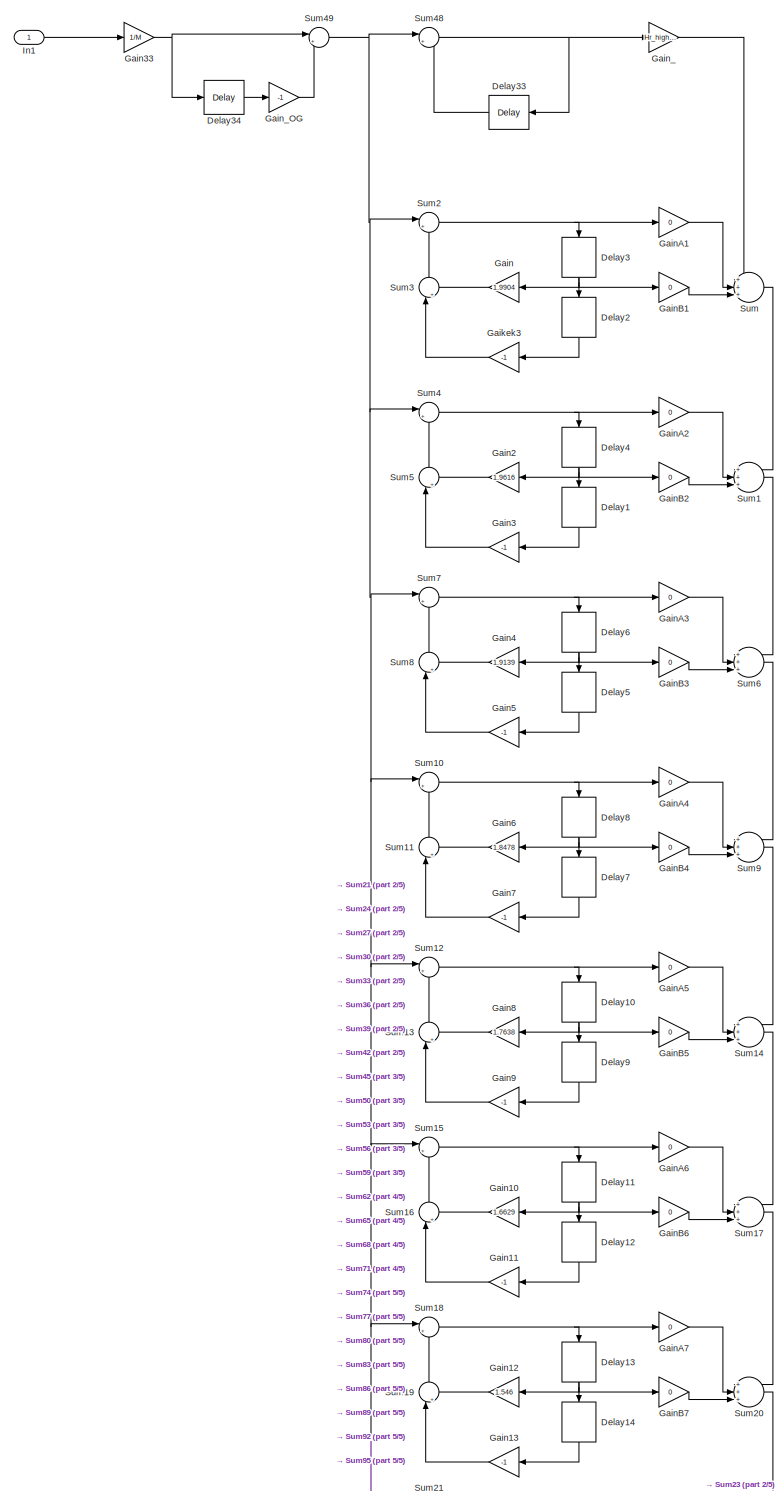
[diagram: Highpass - part 1/5, full width, top band]
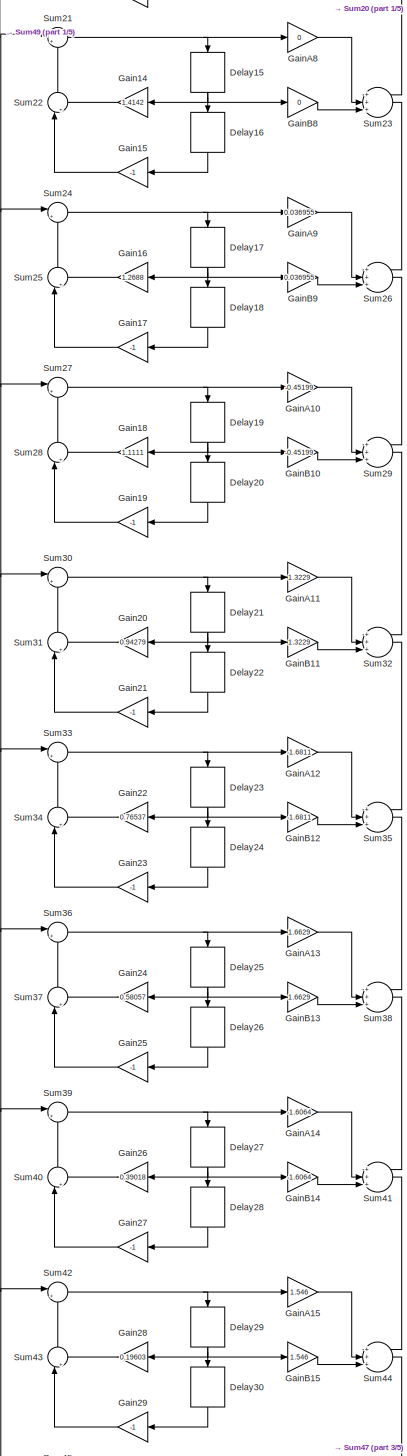
[diagram: Highpass - part 2/5, central region]
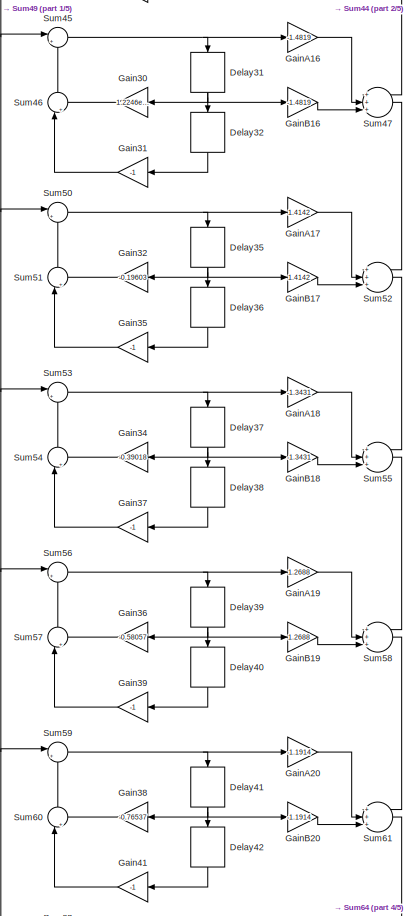
[diagram: Highpass - part 3/5, central region]
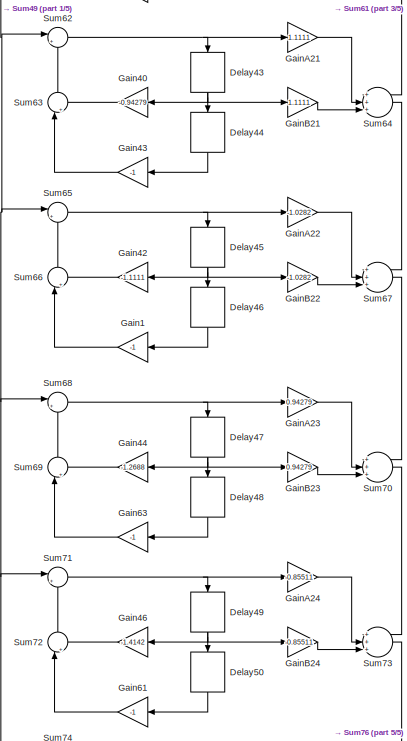
[diagram: Highpass - part 4/5, bottom center region]
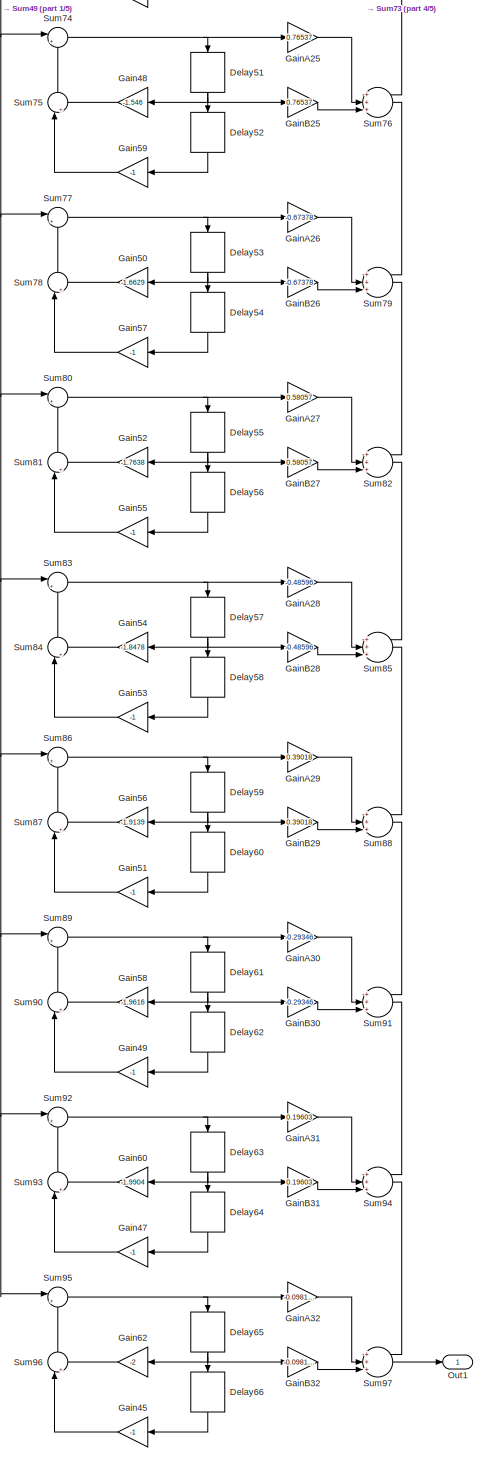
[diagram: Highpass - part 5/5, bottom right region]
BLOCK [SubSystem] Highpass
  Ports = [1, 1]
  RequestExecContextInheritance = off
  Variant = off
BLOCK [Delay] Highpass/Delay1
  DelayLength = 1
  InputPortMap = u0
  Ports = [1, 1]
BLOCK [Delay] Highpass/Delay10
  DelayLength = 1
  InputPortMap = u0
  Ports = [1, 1]
BLOCK [Delay] Highpass/Delay11
  DelayLength = 1
  InputPortMap = u0
  Ports = [1, 1]
BLOCK [Delay] Highpass/Delay12
  DelayLength = 1
  InputPortMap = u0
  Ports = [1, 1]
BLOCK [Delay] Highpass/Delay13
  DelayLength = 1
  InputPortMap = u0
  Ports = [1, 1]
BLOCK [Delay] Highpass/Delay14
  DelayLength = 1
  InputPortMap = u0
  Ports = [1, 1]
BLOCK [Delay] Highpass/Delay15
  DelayLength = 1
  InputPortMap = u0
  Ports = [1, 1]
BLOCK [Delay] Highpass/Delay16
  DelayLength = 1
  InputPortMap = u0
  Ports = [1, 1]
BLOCK [Delay] Highpass/Delay17
  DelayLength = 1
  InputPortMap = u0
  Ports = [1, 1]
BLOCK [Delay] Highpass/Delay18
  DelayLength = 1
  InputPortMap = u0
  Ports = [1, 1]
BLOCK [Delay] Highpass/Delay19
  DelayLength = 1
  InputPortMap = u0
  Ports = [1, 1]
BLOCK [Delay] Highpass/Delay2
  DelayLength = 1
  InputPortMap = u0
  Ports = [1, 1]
BLOCK [Delay] Highpass/Delay20
  DelayLength = 1
  InputPortMap = u0
  Ports = [1, 1]
BLOCK [Delay] Highpass/Delay21
  DelayLength = 1
  InputPortMap = u0
  Ports = [1, 1]
BLOCK [Delay] Highpass/Delay22
  DelayLength = 1
  InputPortMap = u0
  Ports = [1, 1]
BLOCK [Delay] Highpass/Delay23
  DelayLength = 1
  InputPortMap = u0
  Ports = [1, 1]
BLOCK [Delay] Highpass/Delay24
  DelayLength = 1
  InputPortMap = u0
  Ports = [1, 1]
BLOCK [Delay] Highpass/Delay25
  DelayLength = 1
  InputPortMap = u0
  Ports = [1, 1]
BLOCK [Delay] Highpass/Delay26
  DelayLength = 1
  InputPortMap = u0
  Ports = [1, 1]
BLOCK [Delay] Highpass/Delay27
  DelayLength = 1
  InputPortMap = u0
  Ports = [1, 1]
BLOCK [Delay] Highpass/Delay28
  DelayLength = 1
  InputPortMap = u0
  Ports = [1, 1]
BLOCK [Delay] Highpass/Delay29
  DelayLength = 1
  InputPortMap = u0
  Ports = [1, 1]
BLOCK [Delay] Highpass/Delay3
  DelayLength = 1
  InputPortMap = u0
  Ports = [1, 1]
BLOCK [Delay] Highpass/Delay30
  DelayLength = 1
  InputPortMap = u0
  Ports = [1, 1]
BLOCK [Delay] Highpass/Delay31
  DelayLength = 1
  InputPortMap = u0
  Ports = [1, 1]
BLOCK [Delay] Highpass/Delay32
  DelayLength = 1
  InputPortMap = u0
  Ports = [1, 1]
BLOCK [Delay] Highpass/Delay33
  DelayLength = 1
  InputPortMap = u0
  Ports = [1, 1]
BLOCK [Delay] Highpass/Delay34
  DelayLength = M
  InputPortMap = u0
  Ports = [1, 1]
BLOCK [Delay] Highpass/Delay35
  DelayLength = 1
  InputPortMap = u0
  Ports = [1, 1]
BLOCK [Delay] Highpass/Delay36
  DelayLength = 1
  InputPortMap = u0
  Ports = [1, 1]
BLOCK [Delay] Highpass/Delay37
  DelayLength = 1
  InputPortMap = u0
  Ports = [1, 1]
BLOCK [Delay] Highpass/Delay38
  DelayLength = 1
  InputPortMap = u0
  Ports = [1, 1]
BLOCK [Delay] Highpass/Delay39
  DelayLength = 1
  InputPortMap = u0
  Ports = [1, 1]
BLOCK [Delay] Highpass/Delay4
  DelayLength = 1
  InputPortMap = u0
  Ports = [1, 1]
BLOCK [Delay] Highpass/Delay40
  DelayLength = 1
  InputPortMap = u0
  Ports = [1, 1]
BLOCK [Delay] Highpass/Delay41
  DelayLength = 1
  InputPortMap = u0
  Ports = [1, 1]
BLOCK [Delay] Highpass/Delay42
  DelayLength = 1
  InputPortMap = u0
  Ports = [1, 1]
BLOCK [Delay] Highpass/Delay43
  DelayLength = 1
  InputPortMap = u0
  Ports = [1, 1]
BLOCK [Delay] Highpass/Delay44
  DelayLength = 1
  InputPortMap = u0
  Ports = [1, 1]
BLOCK [Delay] Highpass/Delay45
  DelayLength = 1
  InputPortMap = u0
  Ports = [1, 1]
BLOCK [Delay] Highpass/Delay46
  DelayLength = 1
  InputPortMap = u0
  Ports = [1, 1]
BLOCK [Delay] Highpass/Delay47
  DelayLength = 1
  InputPortMap = u0
  Ports = [1, 1]
BLOCK [Delay] Highpass/Delay48
  DelayLength = 1
  InputPortMap = u0
  Ports = [1, 1]
BLOCK [Delay] Highpass/Delay49
  DelayLength = 1
  InputPortMap = u0
  Ports = [1, 1]
BLOCK [Delay] Highpass/Delay5
  DelayLength = 1
  InputPortMap = u0
  Ports = [1, 1]
BLOCK [Delay] Highpass/Delay50
  DelayLength = 1
  InputPortMap = u0
  Ports = [1, 1]
BLOCK [Delay] Highpass/Delay51
  DelayLength = 1
  InputPortMap = u0
  Ports = [1, 1]
BLOCK [Delay] Highpass/Delay52
  DelayLength = 1
  InputPortMap = u0
  Ports = [1, 1]
BLOCK [Delay] Highpass/Delay53
  DelayLength = 1
  InputPortMap = u0
  Ports = [1, 1]
BLOCK [Delay] Highpass/Delay54
  DelayLength = 1
  InputPortMap = u0
  Ports = [1, 1]
BLOCK [Delay] Highpass/Delay55
  DelayLength = 1
  InputPortMap = u0
  Ports = [1, 1]
BLOCK [Delay] Highpass/Delay56
  DelayLength = 1
  InputPortMap = u0
  Ports = [1, 1]
BLOCK [Delay] Highpass/Delay57
  DelayLength = 1
  InputPortMap = u0
  Ports = [1, 1]
BLOCK [Delay] Highpass/Delay58
  DelayLength = 1
  InputPortMap = u0
  Ports = [1, 1]
BLOCK [Delay] Highpass/Delay59
  DelayLength = 1
  InputPortMap = u0
  Ports = [1, 1]
BLOCK [Delay] Highpass/Delay6
  DelayLength = 1
  InputPortMap = u0
  Ports = [1, 1]
BLOCK [Delay] Highpass/Delay60
  DelayLength = 1
  InputPortMap = u0
  Ports = [1, 1]
BLOCK [Delay] Highpass/Delay61
  DelayLength = 1
  InputPortMap = u0
  Ports = [1, 1]
BLOCK [Delay] Highpass/Delay62
  DelayLength = 1
  InputPortMap = u0
  Ports = [1, 1]
BLOCK [Delay] Highpass/Delay63
  DelayLength = 1
  InputPortMap = u0
  Ports = [1, 1]
BLOCK [Delay] Highpass/Delay64
  DelayLength = 1
  InputPortMap = u0
  Ports = [1, 1]
BLOCK [Delay] Highpass/Delay65
  DelayLength = 1
  InputPortMap = u0
  Ports = [1, 1]
BLOCK [Delay] Highpass/Delay66
  DelayLength = 1
  InputPortMap = u0
  Ports = [1, 1]
BLOCK [Delay] Highpass/Delay7
  DelayLength = 1
  InputPortMap = u0
  Ports = [1, 1]
BLOCK [Delay] Highpass/Delay8
  DelayLength = 1
  InputPortMap = u0
  Ports = [1, 1]
BLOCK [Delay] Highpass/Delay9
  DelayLength = 1
  InputPortMap = u0
  Ports = [1, 1]
BLOCK [Gain] Highpass/Gaikek3
  Gain = -1
  OutDataTypeStr = Inherit: Inherit via internal rule
  ParamDataTypeStr = Inherit: Inherit via internal rule
  SaturateOnIntegerOverflow = off
BLOCK [Gain] Highpass/Gain
  Gain = 1.9904
  OutDataTypeStr = Inherit: Inherit via internal rule
  ParamDataTypeStr = Inherit: Inherit via internal rule
  SaturateOnIntegerOverflow = off
BLOCK [Gain] Highpass/Gain1
  Gain = -1
  OutDataTypeStr = Inherit: Inherit via internal rule
  ParamDataTypeStr = Inherit: Inherit via internal rule
  SaturateOnIntegerOverflow = off
BLOCK [Gain] Highpass/Gain10
  Gain = 1.6629
  OutDataTypeStr = Inherit: Inherit via internal rule
  ParamDataTypeStr = Inherit: Inherit via internal rule
  SaturateOnIntegerOverflow = off
BLOCK [Gain] Highpass/Gain11
  Gain = -1
  OutDataTypeStr = Inherit: Inherit via internal rule
  ParamDataTypeStr = Inherit: Inherit via internal rule
  SaturateOnIntegerOverflow = off
BLOCK [Gain] Highpass/Gain12
  Gain = 1.546
  OutDataTypeStr = Inherit: Inherit via internal rule
  ParamDataTypeStr = Inherit: Inherit via internal rule
  SaturateOnIntegerOverflow = off
BLOCK [Gain] Highpass/Gain13
  Gain = -1
  OutDataTypeStr = Inherit: Inherit via internal rule
  ParamDataTypeStr = Inherit: Inherit via internal rule
  SaturateOnIntegerOverflow = off
BLOCK [Gain] Highpass/Gain14
  Gain = 1.4142
  OutDataTypeStr = Inherit: Inherit via internal rule
  ParamDataTypeStr = Inherit: Inherit via internal rule
  SaturateOnIntegerOverflow = off
BLOCK [Gain] Highpass/Gain15
  Gain = -1
  OutDataTypeStr = Inherit: Inherit via internal rule
  ParamDataTypeStr = Inherit: Inherit via internal rule
  SaturateOnIntegerOverflow = off
BLOCK [Gain] Highpass/Gain16
  Gain = 1.2688
  OutDataTypeStr = Inherit: Inherit via internal rule
  ParamDataTypeStr = Inherit: Inherit via internal rule
  SaturateOnIntegerOverflow = off
BLOCK [Gain] Highpass/Gain17
  Gain = -1
  OutDataTypeStr = Inherit: Inherit via internal rule
  ParamDataTypeStr = Inherit: Inherit via internal rule
  SaturateOnIntegerOverflow = off
BLOCK [Gain] Highpass/Gain18
  Gain = 1.1111
  OutDataTypeStr = Inherit: Inherit via internal rule
  ParamDataTypeStr = Inherit: Inherit via internal rule
  SaturateOnIntegerOverflow = off
BLOCK [Gain] Highpass/Gain19
  Gain = -1
  OutDataTypeStr = Inherit: Inherit via internal rule
  ParamDataTypeStr = Inherit: Inherit via internal rule
  SaturateOnIntegerOverflow = off
BLOCK [Gain] Highpass/Gain2
  Gain = 1.9616
  OutDataTypeStr = Inherit: Inherit via internal rule
  ParamDataTypeStr = Inherit: Inherit via internal rule
  SaturateOnIntegerOverflow = off
BLOCK [Gain] Highpass/Gain20
  Gain = 0.94279
  OutDataTypeStr = Inherit: Inherit via internal rule
  ParamDataTypeStr = Inherit: Inherit via internal rule
  SaturateOnIntegerOverflow = off
BLOCK [Gain] Highpass/Gain21
  Gain = -1
  OutDataTypeStr = Inherit: Inherit via internal rule
  ParamDataTypeStr = Inherit: Inherit via internal rule
  SaturateOnIntegerOverflow = off
BLOCK [Gain] Highpass/Gain22
  Gain = 0.76537
  OutDataTypeStr = Inherit: Inherit via internal rule
  ParamDataTypeStr = Inherit: Inherit via internal rule
  SaturateOnIntegerOverflow = off
BLOCK [Gain] Highpass/Gain23
  Gain = -1
  OutDataTypeStr = Inherit: Inherit via internal rule
  ParamDataTypeStr = Inherit: Inherit via internal rule
  SaturateOnIntegerOverflow = off
BLOCK [Gain] Highpass/Gain24
  Gain = 0.58057
  OutDataTypeStr = Inherit: Inherit via internal rule
  ParamDataTypeStr = Inherit: Inherit via internal rule
  SaturateOnIntegerOverflow = off
BLOCK [Gain] Highpass/Gain25
  Gain = -1
  OutDataTypeStr = Inherit: Inherit via internal rule
  ParamDataTypeStr = Inherit: Inherit via internal rule
  SaturateOnIntegerOverflow = off
BLOCK [Gain] Highpass/Gain26
  Gain = 0.39018
  OutDataTypeStr = Inherit: Inherit via internal rule
  ParamDataTypeStr = Inherit: Inherit via internal rule
  SaturateOnIntegerOverflow = off
BLOCK [Gain] Highpass/Gain27
  Gain = -1
  OutDataTypeStr = Inherit: Inherit via internal rule
  ParamDataTypeStr = Inherit: Inherit via internal rule
  SaturateOnIntegerOverflow = off
BLOCK [Gain] Highpass/Gain28
  Gain = 0.19603
  OutDataTypeStr = Inherit: Inherit via internal rule
  ParamDataTypeStr = Inherit: Inherit via internal rule
  SaturateOnIntegerOverflow = off
BLOCK [Gain] Highpass/Gain29
  Gain = -1
  OutDataTypeStr = Inherit: Inherit via internal rule
  ParamDataTypeStr = Inherit: Inherit via internal rule
  SaturateOnIntegerOverflow = off
BLOCK [Gain] Highpass/Gain3
  Gain = -1
  OutDataTypeStr = Inherit: Inherit via internal rule
  ParamDataTypeStr = Inherit: Inherit via internal rule
  SaturateOnIntegerOverflow = off
BLOCK [Gain] Highpass/Gain30
  Gain = 1.2246e-16
  OutDataTypeStr = Inherit: Inherit via internal rule
  ParamDataTypeStr = Inherit: Inherit via internal rule
  SaturateOnIntegerOverflow = off
BLOCK [Gain] Highpass/Gain31
  Gain = -1
  OutDataTypeStr = Inherit: Inherit via internal rule
  ParamDataTypeStr = Inherit: Inherit via internal rule
  SaturateOnIntegerOverflow = off
BLOCK [Gain] Highpass/Gain32
  Gain = -0.19603
  OutDataTypeStr = Inherit: Inherit via internal rule
  ParamDataTypeStr = Inherit: Inherit via internal rule
  SaturateOnIntegerOverflow = off
BLOCK [Gain] Highpass/Gain33
  Gain = 1/M
  OutDataTypeStr = Inherit: Inherit via internal rule
  ParamDataTypeStr = Inherit: Inherit via internal rule
  SaturateOnIntegerOverflow = off
BLOCK [Gain] Highpass/Gain34
  Gain = -0.39018
  OutDataTypeStr = Inherit: Inherit via internal rule
  ParamDataTypeStr = Inherit: Inherit via internal rule
  SaturateOnIntegerOverflow = off
BLOCK [Gain] Highpass/Gain35
  Gain = -1
  OutDataTypeStr = Inherit: Inherit via internal rule
  ParamDataTypeStr = Inherit: Inherit via internal rule
  SaturateOnIntegerOverflow = off
BLOCK [Gain] Highpass/Gain36
  Gain = -0.58057
  OutDataTypeStr = Inherit: Inherit via internal rule
  ParamDataTypeStr = Inherit: Inherit via internal rule
  SaturateOnIntegerOverflow = off
BLOCK [Gain] Highpass/Gain37
  Gain = -1
  OutDataTypeStr = Inherit: Inherit via internal rule
  ParamDataTypeStr = Inherit: Inherit via internal rule
  SaturateOnIntegerOverflow = off
BLOCK [Gain] Highpass/Gain38
  Gain = -0.76537
  OutDataTypeStr = Inherit: Inherit via internal rule
  ParamDataTypeStr = Inherit: Inherit via internal rule
  SaturateOnIntegerOverflow = off
BLOCK [Gain] Highpass/Gain39
  Gain = -1
  OutDataTypeStr = Inherit: Inherit via internal rule
  ParamDataTypeStr = Inherit: Inherit via internal rule
  SaturateOnIntegerOverflow = off
BLOCK [Gain] Highpass/Gain4
  Gain = 1.9139
  OutDataTypeStr = Inherit: Inherit via internal rule
  ParamDataTypeStr = Inherit: Inherit via internal rule
  SaturateOnIntegerOverflow = off
BLOCK [Gain] Highpass/Gain40
  Gain = -0.94279
  OutDataTypeStr = Inherit: Inherit via internal rule
  ParamDataTypeStr = Inherit: Inherit via internal rule
  SaturateOnIntegerOverflow = off
BLOCK [Gain] Highpass/Gain41
  Gain = -1
  OutDataTypeStr = Inherit: Inherit via internal rule
  ParamDataTypeStr = Inherit: Inherit via internal rule
  SaturateOnIntegerOverflow = off
BLOCK [Gain] Highpass/Gain42
  Gain = -1.1111
  OutDataTypeStr = Inherit: Inherit via internal rule
  ParamDataTypeStr = Inherit: Inherit via internal rule
  SaturateOnIntegerOverflow = off
BLOCK [Gain] Highpass/Gain43
  Gain = -1
  OutDataTypeStr = Inherit: Inherit via internal rule
  ParamDataTypeStr = Inherit: Inherit via internal rule
  SaturateOnIntegerOverflow = off
BLOCK [Gain] Highpass/Gain44
  Gain = -1.2688
  OutDataTypeStr = Inherit: Inherit via internal rule
  ParamDataTypeStr = Inherit: Inherit via internal rule
  SaturateOnIntegerOverflow = off
BLOCK [Gain] Highpass/Gain45
  Gain = -1
  OutDataTypeStr = Inherit: Inherit via internal rule
  ParamDataTypeStr = Inherit: Inherit via internal rule
  SaturateOnIntegerOverflow = off
BLOCK [Gain] Highpass/Gain46
  Gain = -1.4142
  OutDataTypeStr = Inherit: Inherit via internal rule
  ParamDataTypeStr = Inherit: Inherit via internal rule
  SaturateOnIntegerOverflow = off
BLOCK [Gain] Highpass/Gain47
  Gain = -1
  OutDataTypeStr = Inherit: Inherit via internal rule
  ParamDataTypeStr = Inherit: Inherit via internal rule
  SaturateOnIntegerOverflow = off
BLOCK [Gain] Highpass/Gain48
  Gain = -1.546
  OutDataTypeStr = Inherit: Inherit via internal rule
  ParamDataTypeStr = Inherit: Inherit via internal rule
  SaturateOnIntegerOverflow = off
BLOCK [Gain] Highpass/Gain49
  Gain = -1
  OutDataTypeStr = Inherit: Inherit via internal rule
  ParamDataTypeStr = Inherit: Inherit via internal rule
  SaturateOnIntegerOverflow = off
BLOCK [Gain] Highpass/Gain5
  Gain = -1
  OutDataTypeStr = Inherit: Inherit via internal rule
  ParamDataTypeStr = Inherit: Inherit via internal rule
  SaturateOnIntegerOverflow = off
BLOCK [Gain] Highpass/Gain50
  Gain = -1.6629
  OutDataTypeStr = Inherit: Inherit via internal rule
  ParamDataTypeStr = Inherit: Inherit via internal rule
  SaturateOnIntegerOverflow = off
BLOCK [Gain] Highpass/Gain51
  Gain = -1
  OutDataTypeStr = Inherit: Inherit via internal rule
  ParamDataTypeStr = Inherit: Inherit via internal rule
  SaturateOnIntegerOverflow = off
BLOCK [Gain] Highpass/Gain52
  Gain = -1.7638
  OutDataTypeStr = Inherit: Inherit via internal rule
  ParamDataTypeStr = Inherit: Inherit via internal rule
  SaturateOnIntegerOverflow = off
BLOCK [Gain] Highpass/Gain53
  Gain = -1
  OutDataTypeStr = Inherit: Inherit via internal rule
  ParamDataTypeStr = Inherit: Inherit via internal rule
  SaturateOnIntegerOverflow = off
BLOCK [Gain] Highpass/Gain54
  Gain = -1.8478
  OutDataTypeStr = Inherit: Inherit via internal rule
  ParamDataTypeStr = Inherit: Inherit via internal rule
  SaturateOnIntegerOverflow = off
BLOCK [Gain] Highpass/Gain55
  Gain = -1
  OutDataTypeStr = Inherit: Inherit via internal rule
  ParamDataTypeStr = Inherit: Inherit via internal rule
  SaturateOnIntegerOverflow = off
BLOCK [Gain] Highpass/Gain56
  Gain = -1.9139
  OutDataTypeStr = Inherit: Inherit via internal rule
  ParamDataTypeStr = Inherit: Inherit via internal rule
  SaturateOnIntegerOverflow = off
BLOCK [Gain] Highpass/Gain57
  Gain = -1
  OutDataTypeStr = Inherit: Inherit via internal rule
  ParamDataTypeStr = Inherit: Inherit via internal rule
  SaturateOnIntegerOverflow = off
BLOCK [Gain] Highpass/Gain58
  Gain = -1.9616
  OutDataTypeStr = Inherit: Inherit via internal rule
  ParamDataTypeStr = Inherit: Inherit via internal rule
  SaturateOnIntegerOverflow = off
BLOCK [Gain] Highpass/Gain59
  Gain = -1
  OutDataTypeStr = Inherit: Inherit via internal rule
  ParamDataTypeStr = Inherit: Inherit via internal rule
  SaturateOnIntegerOverflow = off
BLOCK [Gain] Highpass/Gain6
  Gain = 1.8478
  OutDataTypeStr = Inherit: Inherit via internal rule
  ParamDataTypeStr = Inherit: Inherit via internal rule
  SaturateOnIntegerOverflow = off
BLOCK [Gain] Highpass/Gain60
  Gain = -1.9904
  OutDataTypeStr = Inherit: Inherit via internal rule
  ParamDataTypeStr = Inherit: Inherit via internal rule
  SaturateOnIntegerOverflow = off
BLOCK [Gain] Highpass/Gain61
  Gain = -1
  OutDataTypeStr = Inherit: Inherit via internal rule
  ParamDataTypeStr = Inherit: Inherit via internal rule
  SaturateOnIntegerOverflow = off
BLOCK [Gain] Highpass/Gain62
  Gain = -2
  OutDataTypeStr = Inherit: Inherit via internal rule
  ParamDataTypeStr = Inherit: Inherit via internal rule
  SaturateOnIntegerOverflow = off
BLOCK [Gain] Highpass/Gain63
  Gain = -1
  OutDataTypeStr = Inherit: Inherit via internal rule
  ParamDataTypeStr = Inherit: Inherit via internal rule
  SaturateOnIntegerOverflow = off
BLOCK [Gain] Highpass/Gain7
  Gain = -1
  OutDataTypeStr = Inherit: Inherit via internal rule
  ParamDataTypeStr = Inherit: Inherit via internal rule
  SaturateOnIntegerOverflow = off
BLOCK [Gain] Highpass/Gain8
  Gain = 1.7638
  OutDataTypeStr = Inherit: Inherit via internal rule
  ParamDataTypeStr = Inherit: Inherit via internal rule
  SaturateOnIntegerOverflow = off
BLOCK [Gain] Highpass/Gain9
  Gain = -1
  OutDataTypeStr = Inherit: Inherit via internal rule
  ParamDataTypeStr = Inherit: Inherit via internal rule
  SaturateOnIntegerOverflow = off
BLOCK [Gain] Highpass/GainA1
  Gain = 0
  OutDataTypeStr = Inherit: Inherit via internal rule
  ParamDataTypeStr = Inherit: Inherit via internal rule
  SaturateOnIntegerOverflow = off
BLOCK [Gain] Highpass/GainA10
  Gain = -0.45199
  OutDataTypeStr = Inherit: Inherit via internal rule
  ParamDataTypeStr = Inherit: Inherit via internal rule
  SaturateOnIntegerOverflow = off
BLOCK [Gain] Highpass/GainA11
  Gain = 1.3229
  OutDataTypeStr = Inherit: Inherit via internal rule
  ParamDataTypeStr = Inherit: Inherit via internal rule
  SaturateOnIntegerOverflow = off
BLOCK [Gain] Highpass/GainA12
  Gain = -1.6811
  OutDataTypeStr = Inherit: Inherit via internal rule
  ParamDataTypeStr = Inherit: Inherit via internal rule
  SaturateOnIntegerOverflow = off
BLOCK [Gain] Highpass/GainA13
  Gain = 1.6629
  OutDataTypeStr = Inherit: Inherit via internal rule
  ParamDataTypeStr = Inherit: Inherit via internal rule
  SaturateOnIntegerOverflow = off
BLOCK [Gain] Highpass/GainA14
  Gain = -1.6064
  OutDataTypeStr = Inherit: Inherit via internal rule
  ParamDataTypeStr = Inherit: Inherit via internal rule
  SaturateOnIntegerOverflow = off
BLOCK [Gain] Highpass/GainA15
  Gain = 1.546
  OutDataTypeStr = Inherit: Inherit via internal rule
  ParamDataTypeStr = Inherit: Inherit via internal rule
  SaturateOnIntegerOverflow = off
BLOCK [Gain] Highpass/GainA16
  Gain = -1.4819
  OutDataTypeStr = Inherit: Inherit via internal rule
  ParamDataTypeStr = Inherit: Inherit via internal rule
  SaturateOnIntegerOverflow = off
BLOCK [Gain] Highpass/GainA17
  Gain = 1.4142
  OutDataTypeStr = Inherit: Inherit via internal rule
  ParamDataTypeStr = Inherit: Inherit via internal rule
  SaturateOnIntegerOverflow = off
BLOCK [Gain] Highpass/GainA18
  Gain = -1.3431
  OutDataTypeStr = Inherit: Inherit via internal rule
  ParamDataTypeStr = Inherit: Inherit via internal rule
  SaturateOnIntegerOverflow = off
BLOCK [Gain] Highpass/GainA19
  Gain = 1.2688
  OutDataTypeStr = Inherit: Inherit via internal rule
  ParamDataTypeStr = Inherit: Inherit via internal rule
  SaturateOnIntegerOverflow = off
BLOCK [Gain] Highpass/GainA2
  Gain = 0
  OutDataTypeStr = Inherit: Inherit via internal rule
  ParamDataTypeStr = Inherit: Inherit via internal rule
  SaturateOnIntegerOverflow = off
BLOCK [Gain] Highpass/GainA20
  Gain = -1.1914
  OutDataTypeStr = Inherit: Inherit via internal rule
  ParamDataTypeStr = Inherit: Inherit via internal rule
  SaturateOnIntegerOverflow = off
BLOCK [Gain] Highpass/GainA21
  Gain = 1.1111
  OutDataTypeStr = Inherit: Inherit via internal rule
  ParamDataTypeStr = Inherit: Inherit via internal rule
  SaturateOnIntegerOverflow = off
BLOCK [Gain] Highpass/GainA22
  Gain = -1.0282
  OutDataTypeStr = Inherit: Inherit via internal rule
  ParamDataTypeStr = Inherit: Inherit via internal rule
  SaturateOnIntegerOverflow = off
BLOCK [Gain] Highpass/GainA23
  Gain = 0.94279
  OutDataTypeStr = Inherit: Inherit via internal rule
  ParamDataTypeStr = Inherit: Inherit via internal rule
  SaturateOnIntegerOverflow = off
BLOCK [Gain] Highpass/GainA24
  Gain = -0.85511
  OutDataTypeStr = Inherit: Inherit via internal rule
  ParamDataTypeStr = Inherit: Inherit via internal rule
  SaturateOnIntegerOverflow = off
BLOCK [Gain] Highpass/GainA25
  Gain = 0.76537
  OutDataTypeStr = Inherit: Inherit via internal rule
  ParamDataTypeStr = Inherit: Inherit via internal rule
  SaturateOnIntegerOverflow = off
BLOCK [Gain] Highpass/GainA26
  Gain = -0.67378
  OutDataTypeStr = Inherit: Inherit via internal rule
  ParamDataTypeStr = Inherit: Inherit via internal rule
  SaturateOnIntegerOverflow = off
BLOCK [Gain] Highpass/GainA27
  Gain = 0.58057
  OutDataTypeStr = Inherit: Inherit via internal rule
  ParamDataTypeStr = Inherit: Inherit via internal rule
  SaturateOnIntegerOverflow = off
BLOCK [Gain] Highpass/GainA28
  Gain = -0.48596
  OutDataTypeStr = Inherit: Inherit via internal rule
  ParamDataTypeStr = Inherit: Inherit via internal rule
  SaturateOnIntegerOverflow = off
BLOCK [Gain] Highpass/GainA29
  Gain = 0.39018
  OutDataTypeStr = Inherit: Inherit via internal rule
  ParamDataTypeStr = Inherit: Inherit via internal rule
  SaturateOnIntegerOverflow = off
BLOCK [Gain] Highpass/GainA3
  Gain = 0
  OutDataTypeStr = Inherit: Inherit via internal rule
  ParamDataTypeStr = Inherit: Inherit via internal rule
  SaturateOnIntegerOverflow = off
BLOCK [Gain] Highpass/GainA30
  Gain = -0.29346
  OutDataTypeStr = Inherit: Inherit via internal rule
  ParamDataTypeStr = Inherit: Inherit via internal rule
  SaturateOnIntegerOverflow = off
BLOCK [Gain] Highpass/GainA31
  Gain = 0.19603
  OutDataTypeStr = Inherit: Inherit via internal rule
  ParamDataTypeStr = Inherit: Inherit via internal rule
  SaturateOnIntegerOverflow = off
BLOCK [Gain] Highpass/GainA32
  Gain = -0.098135
  OutDataTypeStr = Inherit: Inherit via internal rule
  ParamDataTypeStr = Inherit: Inherit via internal rule
  SaturateOnIntegerOverflow = off
BLOCK [Gain] Highpass/GainA4
  Gain = 0
  OutDataTypeStr = Inherit: Inherit via internal rule
  ParamDataTypeStr = Inherit: Inherit via internal rule
  SaturateOnIntegerOverflow = off
BLOCK [Gain] Highpass/GainA5
  Gain = 0
  OutDataTypeStr = Inherit: Inherit via internal rule
  ParamDataTypeStr = Inherit: Inherit via internal rule
  SaturateOnIntegerOverflow = off
BLOCK [Gain] Highpass/GainA6
  Gain = 0
  OutDataTypeStr = Inherit: Inherit via internal rule
  ParamDataTypeStr = Inherit: Inherit via internal rule
  SaturateOnIntegerOverflow = off
BLOCK [Gain] Highpass/GainA7
  Gain = 0
  OutDataTypeStr = Inherit: Inherit via internal rule
  ParamDataTypeStr = Inherit: Inherit via internal rule
  SaturateOnIntegerOverflow = off
BLOCK [Gain] Highpass/GainA8
  Gain = 0
  OutDataTypeStr = Inherit: Inherit via internal rule
  ParamDataTypeStr = Inherit: Inherit via internal rule
  SaturateOnIntegerOverflow = off
BLOCK [Gain] Highpass/GainA9
  Gain = 0.036955
  OutDataTypeStr = Inherit: Inherit via internal rule
  ParamDataTypeStr = Inherit: Inherit via internal rule
  SaturateOnIntegerOverflow = off
BLOCK [Gain] Highpass/GainB1
  Gain = 0
  OutDataTypeStr = Inherit: Inherit via internal rule
  ParamDataTypeStr = Inherit: Inherit via internal rule
  SaturateOnIntegerOverflow = off
BLOCK [Gain] Highpass/GainB10
  Gain = -0.45199
  OutDataTypeStr = Inherit: Inherit via internal rule
  ParamDataTypeStr = Inherit: Inherit via internal rule
  SaturateOnIntegerOverflow = off
BLOCK [Gain] Highpass/GainB11
  Gain = 1.3229
  OutDataTypeStr = Inherit: Inherit via internal rule
  ParamDataTypeStr = Inherit: Inherit via internal rule
  SaturateOnIntegerOverflow = off
BLOCK [Gain] Highpass/GainB12
  Gain = -1.6811
  OutDataTypeStr = Inherit: Inherit via internal rule
  ParamDataTypeStr = Inherit: Inherit via internal rule
  SaturateOnIntegerOverflow = off
BLOCK [Gain] Highpass/GainB13
  Gain = 1.6629
  OutDataTypeStr = Inherit: Inherit via internal rule
  ParamDataTypeStr = Inherit: Inherit via internal rule
  SaturateOnIntegerOverflow = off
BLOCK [Gain] Highpass/GainB14
  Gain = -1.6064
  OutDataTypeStr = Inherit: Inherit via internal rule
  ParamDataTypeStr = Inherit: Inherit via internal rule
  SaturateOnIntegerOverflow = off
BLOCK [Gain] Highpass/GainB15
  Gain = 1.546
  OutDataTypeStr = Inherit: Inherit via internal rule
  ParamDataTypeStr = Inherit: Inherit via internal rule
  SaturateOnIntegerOverflow = off
BLOCK [Gain] Highpass/GainB16
  Gain = -1.4819
  OutDataTypeStr = Inherit: Inherit via internal rule
  ParamDataTypeStr = Inherit: Inherit via internal rule
  SaturateOnIntegerOverflow = off
BLOCK [Gain] Highpass/GainB17
  Gain = 1.4142
  OutDataTypeStr = Inherit: Inherit via internal rule
  ParamDataTypeStr = Inherit: Inherit via internal rule
  SaturateOnIntegerOverflow = off
BLOCK [Gain] Highpass/GainB18
  Gain = -1.3431
  OutDataTypeStr = Inherit: Inherit via internal rule
  ParamDataTypeStr = Inherit: Inherit via internal rule
  SaturateOnIntegerOverflow = off
BLOCK [Gain] Highpass/GainB19
  Gain = 1.2688
  OutDataTypeStr = Inherit: Inherit via internal rule
  ParamDataTypeStr = Inherit: Inherit via internal rule
  SaturateOnIntegerOverflow = off
BLOCK [Gain] Highpass/GainB2
  Gain = 0
  OutDataTypeStr = Inherit: Inherit via internal rule
  ParamDataTypeStr = Inherit: Inherit via internal rule
  SaturateOnIntegerOverflow = off
BLOCK [Gain] Highpass/GainB20
  Gain = -1.1914
  OutDataTypeStr = Inherit: Inherit via internal rule
  ParamDataTypeStr = Inherit: Inherit via internal rule
  SaturateOnIntegerOverflow = off
BLOCK [Gain] Highpass/GainB21
  Gain = 1.1111
  OutDataTypeStr = Inherit: Inherit via internal rule
  ParamDataTypeStr = Inherit: Inherit via internal rule
  SaturateOnIntegerOverflow = off
BLOCK [Gain] Highpass/GainB22
  Gain = -1.0282
  OutDataTypeStr = Inherit: Inherit via internal rule
  ParamDataTypeStr = Inherit: Inherit via internal rule
  SaturateOnIntegerOverflow = off
BLOCK [Gain] Highpass/GainB23
  Gain = 0.94279
  OutDataTypeStr = Inherit: Inherit via internal rule
  ParamDataTypeStr = Inherit: Inherit via internal rule
  SaturateOnIntegerOverflow = off
BLOCK [Gain] Highpass/GainB24
  Gain = -0.85511
  OutDataTypeStr = Inherit: Inherit via internal rule
  ParamDataTypeStr = Inherit: Inherit via internal rule
  SaturateOnIntegerOverflow = off
BLOCK [Gain] Highpass/GainB25
  Gain = 0.76537
  OutDataTypeStr = Inherit: Inherit via internal rule
  ParamDataTypeStr = Inherit: Inherit via internal rule
  SaturateOnIntegerOverflow = off
BLOCK [Gain] Highpass/GainB26
  Gain = -0.67378
  OutDataTypeStr = Inherit: Inherit via internal rule
  ParamDataTypeStr = Inherit: Inherit via internal rule
  SaturateOnIntegerOverflow = off
BLOCK [Gain] Highpass/GainB27
  Gain = 0.58057
  OutDataTypeStr = Inherit: Inherit via internal rule
  ParamDataTypeStr = Inherit: Inherit via internal rule
  SaturateOnIntegerOverflow = off
BLOCK [Gain] Highpass/GainB28
  Gain = -0.48596
  OutDataTypeStr = Inherit: Inherit via internal rule
  ParamDataTypeStr = Inherit: Inherit via internal rule
  SaturateOnIntegerOverflow = off
BLOCK [Gain] Highpass/GainB29
  Gain = 0.39018
  OutDataTypeStr = Inherit: Inherit via internal rule
  ParamDataTypeStr = Inherit: Inherit via internal rule
  SaturateOnIntegerOverflow = off
BLOCK [Gain] Highpass/GainB3
  Gain = 0
  OutDataTypeStr = Inherit: Inherit via internal rule
  ParamDataTypeStr = Inherit: Inherit via internal rule
  SaturateOnIntegerOverflow = off
BLOCK [Gain] Highpass/GainB30
  Gain = -0.29346
  OutDataTypeStr = Inherit: Inherit via internal rule
  ParamDataTypeStr = Inherit: Inherit via internal rule
  SaturateOnIntegerOverflow = off
BLOCK [Gain] Highpass/GainB31
  Gain = 0.19603
  OutDataTypeStr = Inherit: Inherit via internal rule
  ParamDataTypeStr = Inherit: Inherit via internal rule
  SaturateOnIntegerOverflow = off
BLOCK [Gain] Highpass/GainB32
  Gain = -0.098135
  OutDataTypeStr = Inherit: Inherit via internal rule
  ParamDataTypeStr = Inherit: Inherit via internal rule
  SaturateOnIntegerOverflow = off
BLOCK [Gain] Highpass/GainB4
  Gain = 0
  OutDataTypeStr = Inherit: Inherit via internal rule
  ParamDataTypeStr = Inherit: Inherit via internal rule
  SaturateOnIntegerOverflow = off
BLOCK [Gain] Highpass/GainB5
  Gain = 0
  OutDataTypeStr = Inherit: Inherit via internal rule
  ParamDataTypeStr = Inherit: Inherit via internal rule
  SaturateOnIntegerOverflow = off
BLOCK [Gain] Highpass/GainB6
  Gain = 0
  OutDataTypeStr = Inherit: Inherit via internal rule
  ParamDataTypeStr = Inherit: Inherit via internal rule
  SaturateOnIntegerOverflow = off
BLOCK [Gain] Highpass/GainB7
  Gain = 0
  OutDataTypeStr = Inherit: Inherit via internal rule
  ParamDataTypeStr = Inherit: Inherit via internal rule
  SaturateOnIntegerOverflow = off
BLOCK [Gain] Highpass/GainB8
  Gain = 0
  OutDataTypeStr = Inherit: Inherit via internal rule
  ParamDataTypeStr = Inherit: Inherit via internal rule
  SaturateOnIntegerOverflow = off
BLOCK [Gain] Highpass/GainB9
  Gain = 0.036955
  OutDataTypeStr = Inherit: Inherit via internal rule
  ParamDataTypeStr = Inherit: Inherit via internal rule
  SaturateOnIntegerOverflow = off
BLOCK [Gain] Highpass/Gain_
  Gain = Hr_high(1)
  OutDataTypeStr = Inherit: Inherit via internal rule
  ParamDataTypeStr = Inherit: Inherit via internal rule
  SaturateOnIntegerOverflow = off
BLOCK [Gain] Highpass/Gain_OG
  Gain = -1
  OutDataTypeStr = Inherit: Inherit via internal rule
  ParamDataTypeStr = Inherit: Inherit via internal rule
  SaturateOnIntegerOverflow = off
BLOCK [Inport] Highpass/In1
  IconDisplay = Port number
BLOCK [Outport] Highpass/Out1
  IconDisplay = Port number
BLOCK [Sum] Highpass/Sum
  IconShape = round
  InputSameDT = off
  Inputs = +++||
  OutDataTypeStr = Inherit: Inherit via internal rule
  Ports = [3, 1]
  SaturateOnIntegerOverflow = off
BLOCK [Sum] Highpass/Sum1
  IconShape = round
  InputSameDT = off
  Inputs = +++||
  OutDataTypeStr = Inherit: Inherit via internal rule
  Ports = [3, 1]
  SaturateOnIntegerOverflow = off
BLOCK [Sum] Highpass/Sum10
  IconShape = round
  InputSameDT = off
  Inputs = |++
  OutDataTypeStr = Inherit: Inherit via internal rule
  Ports = [2, 1]
  SaturateOnIntegerOverflow = off
BLOCK [Sum] Highpass/Sum11
  IconShape = round
  InputSameDT = off
  Inputs = |++
  OutDataTypeStr = Inherit: Inherit via internal rule
  Ports = [2, 1]
  SaturateOnIntegerOverflow = off
BLOCK [Sum] Highpass/Sum12
  IconShape = round
  InputSameDT = off
  Inputs = |++
  OutDataTypeStr = Inherit: Inherit via internal rule
  Ports = [2, 1]
  SaturateOnIntegerOverflow = off
BLOCK [Sum] Highpass/Sum13
  IconShape = round
  InputSameDT = off
  Inputs = |++
  OutDataTypeStr = Inherit: Inherit via internal rule
  Ports = [2, 1]
  SaturateOnIntegerOverflow = off
BLOCK [Sum] Highpass/Sum14
  IconShape = round
  InputSameDT = off
  Inputs = +++||
  OutDataTypeStr = Inherit: Inherit via internal rule
  Ports = [3, 1]
  SaturateOnIntegerOverflow = off
BLOCK [Sum] Highpass/Sum15
  IconShape = round
  InputSameDT = off
  Inputs = |++
  OutDataTypeStr = Inherit: Inherit via internal rule
  Ports = [2, 1]
  SaturateOnIntegerOverflow = off
BLOCK [Sum] Highpass/Sum16
  IconShape = round
  InputSameDT = off
  Inputs = |++
  OutDataTypeStr = Inherit: Inherit via internal rule
  Ports = [2, 1]
  SaturateOnIntegerOverflow = off
BLOCK [Sum] Highpass/Sum17
  IconShape = round
  InputSameDT = off
  Inputs = +++||
  OutDataTypeStr = Inherit: Inherit via internal rule
  Ports = [3, 1]
  SaturateOnIntegerOverflow = off
BLOCK [Sum] Highpass/Sum18
  IconShape = round
  InputSameDT = off
  Inputs = |++
  OutDataTypeStr = Inherit: Inherit via internal rule
  Ports = [2, 1]
  SaturateOnIntegerOverflow = off
BLOCK [Sum] Highpass/Sum19
  IconShape = round
  InputSameDT = off
  Inputs = |++
  OutDataTypeStr = Inherit: Inherit via internal rule
  Ports = [2, 1]
  SaturateOnIntegerOverflow = off
BLOCK [Sum] Highpass/Sum2
  IconShape = round
  InputSameDT = off
  Inputs = |++
  OutDataTypeStr = Inherit: Inherit via internal rule
  Ports = [2, 1]
  SaturateOnIntegerOverflow = off
BLOCK [Sum] Highpass/Sum20
  IconShape = round
  InputSameDT = off
  Inputs = +++||
  OutDataTypeStr = Inherit: Inherit via internal rule
  Ports = [3, 1]
  SaturateOnIntegerOverflow = off
BLOCK [Sum] Highpass/Sum21
  IconShape = round
  InputSameDT = off
  Inputs = |++
  OutDataTypeStr = Inherit: Inherit via internal rule
  Ports = [2, 1]
  SaturateOnIntegerOverflow = off
BLOCK [Sum] Highpass/Sum22
  IconShape = round
  InputSameDT = off
  Inputs = |++
  OutDataTypeStr = Inherit: Inherit via internal rule
  Ports = [2, 1]
  SaturateOnIntegerOverflow = off
BLOCK [Sum] Highpass/Sum23
  IconShape = round
  InputSameDT = off
  Inputs = +++||
  OutDataTypeStr = Inherit: Inherit via internal rule
  Ports = [3, 1]
  SaturateOnIntegerOverflow = off
BLOCK [Sum] Highpass/Sum24
  IconShape = round
  InputSameDT = off
  Inputs = |++
  OutDataTypeStr = Inherit: Inherit via internal rule
  Ports = [2, 1]
  SaturateOnIntegerOverflow = off
BLOCK [Sum] Highpass/Sum25
  IconShape = round
  InputSameDT = off
  Inputs = |++
  OutDataTypeStr = Inherit: Inherit via internal rule
  Ports = [2, 1]
  SaturateOnIntegerOverflow = off
BLOCK [Sum] Highpass/Sum26
  IconShape = round
  InputSameDT = off
  Inputs = +++||
  OutDataTypeStr = Inherit: Inherit via internal rule
  Ports = [3, 1]
  SaturateOnIntegerOverflow = off
BLOCK [Sum] Highpass/Sum27
  IconShape = round
  InputSameDT = off
  Inputs = |++
  OutDataTypeStr = Inherit: Inherit via internal rule
  Ports = [2, 1]
  SaturateOnIntegerOverflow = off
BLOCK [Sum] Highpass/Sum28
  IconShape = round
  InputSameDT = off
  Inputs = |++
  OutDataTypeStr = Inherit: Inherit via internal rule
  Ports = [2, 1]
  SaturateOnIntegerOverflow = off
BLOCK [Sum] Highpass/Sum29
  IconShape = round
  InputSameDT = off
  Inputs = +++||
  OutDataTypeStr = Inherit: Inherit via internal rule
  Ports = [3, 1]
  SaturateOnIntegerOverflow = off
BLOCK [Sum] Highpass/Sum3
  IconShape = round
  InputSameDT = off
  Inputs = |++
  OutDataTypeStr = Inherit: Inherit via internal rule
  Ports = [2, 1]
  SaturateOnIntegerOverflow = off
BLOCK [Sum] Highpass/Sum30
  IconShape = round
  InputSameDT = off
  Inputs = |++
  OutDataTypeStr = Inherit: Inherit via internal rule
  Ports = [2, 1]
  SaturateOnIntegerOverflow = off
BLOCK [Sum] Highpass/Sum31
  IconShape = round
  InputSameDT = off
  Inputs = |++
  OutDataTypeStr = Inherit: Inherit via internal rule
  Ports = [2, 1]
  SaturateOnIntegerOverflow = off
BLOCK [Sum] Highpass/Sum32
  IconShape = round
  InputSameDT = off
  Inputs = +++||
  OutDataTypeStr = Inherit: Inherit via internal rule
  Ports = [3, 1]
  SaturateOnIntegerOverflow = off
BLOCK [Sum] Highpass/Sum33
  IconShape = round
  InputSameDT = off
  Inputs = |++
  OutDataTypeStr = Inherit: Inherit via internal rule
  Ports = [2, 1]
  SaturateOnIntegerOverflow = off
BLOCK [Sum] Highpass/Sum34
  IconShape = round
  InputSameDT = off
  Inputs = |++
  OutDataTypeStr = Inherit: Inherit via internal rule
  Ports = [2, 1]
  SaturateOnIntegerOverflow = off
BLOCK [Sum] Highpass/Sum35
  IconShape = round
  InputSameDT = off
  Inputs = +++||
  OutDataTypeStr = Inherit: Inherit via internal rule
  Ports = [3, 1]
  SaturateOnIntegerOverflow = off
BLOCK [Sum] Highpass/Sum36
  IconShape = round
  InputSameDT = off
  Inputs = |++
  OutDataTypeStr = Inherit: Inherit via internal rule
  Ports = [2, 1]
  SaturateOnIntegerOverflow = off
BLOCK [Sum] Highpass/Sum37
  IconShape = round
  InputSameDT = off
  Inputs = |++
  OutDataTypeStr = Inherit: Inherit via internal rule
  Ports = [2, 1]
  SaturateOnIntegerOverflow = off
BLOCK [Sum] Highpass/Sum38
  IconShape = round
  InputSameDT = off
  Inputs = +++||
  OutDataTypeStr = Inherit: Inherit via internal rule
  Ports = [3, 1]
  SaturateOnIntegerOverflow = off
BLOCK [Sum] Highpass/Sum39
  IconShape = round
  InputSameDT = off
  Inputs = |++
  OutDataTypeStr = Inherit: Inherit via internal rule
  Ports = [2, 1]
  SaturateOnIntegerOverflow = off
BLOCK [Sum] Highpass/Sum4
  IconShape = round
  InputSameDT = off
  Inputs = |++
  OutDataTypeStr = Inherit: Inherit via internal rule
  Ports = [2, 1]
  SaturateOnIntegerOverflow = off
BLOCK [Sum] Highpass/Sum40
  IconShape = round
  InputSameDT = off
  Inputs = |++
  OutDataTypeStr = Inherit: Inherit via internal rule
  Ports = [2, 1]
  SaturateOnIntegerOverflow = off
BLOCK [Sum] Highpass/Sum41
  IconShape = round
  InputSameDT = off
  Inputs = +++||
  OutDataTypeStr = Inherit: Inherit via internal rule
  Ports = [3, 1]
  SaturateOnIntegerOverflow = off
BLOCK [Sum] Highpass/Sum42
  IconShape = round
  InputSameDT = off
  Inputs = |++
  OutDataTypeStr = Inherit: Inherit via internal rule
  Ports = [2, 1]
  SaturateOnIntegerOverflow = off
BLOCK [Sum] Highpass/Sum43
  IconShape = round
  InputSameDT = off
  Inputs = |++
  OutDataTypeStr = Inherit: Inherit via internal rule
  Ports = [2, 1]
  SaturateOnIntegerOverflow = off
BLOCK [Sum] Highpass/Sum44
  IconShape = round
  InputSameDT = off
  Inputs = +++||
  OutDataTypeStr = Inherit: Inherit via internal rule
  Ports = [3, 1]
  SaturateOnIntegerOverflow = off
BLOCK [Sum] Highpass/Sum45
  IconShape = round
  InputSameDT = off
  Inputs = |++
  OutDataTypeStr = Inherit: Inherit via internal rule
  Ports = [2, 1]
  SaturateOnIntegerOverflow = off
BLOCK [Sum] Highpass/Sum46
  IconShape = round
  InputSameDT = off
  Inputs = |++
  OutDataTypeStr = Inherit: Inherit via internal rule
  Ports = [2, 1]
  SaturateOnIntegerOverflow = off
BLOCK [Sum] Highpass/Sum47
  IconShape = round
  InputSameDT = off
  Inputs = +++||
  OutDataTypeStr = Inherit: Inherit via internal rule
  Ports = [3, 1]
  SaturateOnIntegerOverflow = off
BLOCK [Sum] Highpass/Sum48
  IconShape = round
  InputSameDT = off
  Inputs = |++
  OutDataTypeStr = Inherit: Inherit via internal rule
  Ports = [2, 1]
  SaturateOnIntegerOverflow = off
BLOCK [Sum] Highpass/Sum49
  IconShape = round
  InputSameDT = off
  Inputs = |++
  OutDataTypeStr = Inherit: Inherit via internal rule
  Ports = [2, 1]
  SaturateOnIntegerOverflow = off
BLOCK [Sum] Highpass/Sum5
  IconShape = round
  InputSameDT = off
  Inputs = |++
  OutDataTypeStr = Inherit: Inherit via internal rule
  Ports = [2, 1]
  SaturateOnIntegerOverflow = off
BLOCK [Sum] Highpass/Sum50
  IconShape = round
  InputSameDT = off
  Inputs = |++
  OutDataTypeStr = Inherit: Inherit via internal rule
  Ports = [2, 1]
  SaturateOnIntegerOverflow = off
BLOCK [Sum] Highpass/Sum51
  IconShape = round
  InputSameDT = off
  Inputs = |++
  OutDataTypeStr = Inherit: Inherit via internal rule
  Ports = [2, 1]
  SaturateOnIntegerOverflow = off
BLOCK [Sum] Highpass/Sum52
  IconShape = round
  InputSameDT = off
  Inputs = +++||
  OutDataTypeStr = Inherit: Inherit via internal rule
  Ports = [3, 1]
  SaturateOnIntegerOverflow = off
BLOCK [Sum] Highpass/Sum53
  IconShape = round
  InputSameDT = off
  Inputs = |++
  OutDataTypeStr = Inherit: Inherit via internal rule
  Ports = [2, 1]
  SaturateOnIntegerOverflow = off
BLOCK [Sum] Highpass/Sum54
  IconShape = round
  InputSameDT = off
  Inputs = |++
  OutDataTypeStr = Inherit: Inherit via internal rule
  Ports = [2, 1]
  SaturateOnIntegerOverflow = off
BLOCK [Sum] Highpass/Sum55
  IconShape = round
  InputSameDT = off
  Inputs = +++||
  OutDataTypeStr = Inherit: Inherit via internal rule
  Ports = [3, 1]
  SaturateOnIntegerOverflow = off
BLOCK [Sum] Highpass/Sum56
  IconShape = round
  InputSameDT = off
  Inputs = |++
  OutDataTypeStr = Inherit: Inherit via internal rule
  Ports = [2, 1]
  SaturateOnIntegerOverflow = off
BLOCK [Sum] Highpass/Sum57
  IconShape = round
  InputSameDT = off
  Inputs = |++
  OutDataTypeStr = Inherit: Inherit via internal rule
  Ports = [2, 1]
  SaturateOnIntegerOverflow = off
BLOCK [Sum] Highpass/Sum58
  IconShape = round
  InputSameDT = off
  Inputs = +++||
  OutDataTypeStr = Inherit: Inherit via internal rule
  Ports = [3, 1]
  SaturateOnIntegerOverflow = off
BLOCK [Sum] Highpass/Sum59
  IconShape = round
  InputSameDT = off
  Inputs = |++
  OutDataTypeStr = Inherit: Inherit via internal rule
  Ports = [2, 1]
  SaturateOnIntegerOverflow = off
BLOCK [Sum] Highpass/Sum6
  IconShape = round
  InputSameDT = off
  Inputs = +++||
  OutDataTypeStr = Inherit: Inherit via internal rule
  Ports = [3, 1]
  SaturateOnIntegerOverflow = off
BLOCK [Sum] Highpass/Sum60
  IconShape = round
  InputSameDT = off
  Inputs = |++
  OutDataTypeStr = Inherit: Inherit via internal rule
  Ports = [2, 1]
  SaturateOnIntegerOverflow = off
BLOCK [Sum] Highpass/Sum61
  IconShape = round
  InputSameDT = off
  Inputs = +++||
  OutDataTypeStr = Inherit: Inherit via internal rule
  Ports = [3, 1]
  SaturateOnIntegerOverflow = off
BLOCK [Sum] Highpass/Sum62
  IconShape = round
  InputSameDT = off
  Inputs = |++
  OutDataTypeStr = Inherit: Inherit via internal rule
  Ports = [2, 1]
  SaturateOnIntegerOverflow = off
BLOCK [Sum] Highpass/Sum63
  IconShape = round
  InputSameDT = off
  Inputs = |++
  OutDataTypeStr = Inherit: Inherit via internal rule
  Ports = [2, 1]
  SaturateOnIntegerOverflow = off
BLOCK [Sum] Highpass/Sum64
  IconShape = round
  InputSameDT = off
  Inputs = +++||
  OutDataTypeStr = Inherit: Inherit via internal rule
  Ports = [3, 1]
  SaturateOnIntegerOverflow = off
BLOCK [Sum] Highpass/Sum65
  IconShape = round
  InputSameDT = off
  Inputs = |++
  OutDataTypeStr = Inherit: Inherit via internal rule
  Ports = [2, 1]
  SaturateOnIntegerOverflow = off
BLOCK [Sum] Highpass/Sum66
  IconShape = round
  InputSameDT = off
  Inputs = |++
  OutDataTypeStr = Inherit: Inherit via internal rule
  Ports = [2, 1]
  SaturateOnIntegerOverflow = off
BLOCK [Sum] Highpass/Sum67
  IconShape = round
  InputSameDT = off
  Inputs = +++||
  OutDataTypeStr = Inherit: Inherit via internal rule
  Ports = [3, 1]
  SaturateOnIntegerOverflow = off
BLOCK [Sum] Highpass/Sum68
  IconShape = round
  InputSameDT = off
  Inputs = |++
  OutDataTypeStr = Inherit: Inherit via internal rule
  Ports = [2, 1]
  SaturateOnIntegerOverflow = off
BLOCK [Sum] Highpass/Sum69
  IconShape = round
  InputSameDT = off
  Inputs = |++
  OutDataTypeStr = Inherit: Inherit via internal rule
  Ports = [2, 1]
  SaturateOnIntegerOverflow = off
BLOCK [Sum] Highpass/Sum7
  IconShape = round
  InputSameDT = off
  Inputs = |++
  OutDataTypeStr = Inherit: Inherit via internal rule
  Ports = [2, 1]
  SaturateOnIntegerOverflow = off
BLOCK [Sum] Highpass/Sum70
  IconShape = round
  InputSameDT = off
  Inputs = +++||
  OutDataTypeStr = Inherit: Inherit via internal rule
  Ports = [3, 1]
  SaturateOnIntegerOverflow = off
BLOCK [Sum] Highpass/Sum71
  IconShape = round
  InputSameDT = off
  Inputs = |++
  OutDataTypeStr = Inherit: Inherit via internal rule
  Ports = [2, 1]
  SaturateOnIntegerOverflow = off
BLOCK [Sum] Highpass/Sum72
  IconShape = round
  InputSameDT = off
  Inputs = |++
  OutDataTypeStr = Inherit: Inherit via internal rule
  Ports = [2, 1]
  SaturateOnIntegerOverflow = off
BLOCK [Sum] Highpass/Sum73
  IconShape = round
  InputSameDT = off
  Inputs = +++||
  OutDataTypeStr = Inherit: Inherit via internal rule
  Ports = [3, 1]
  SaturateOnIntegerOverflow = off
BLOCK [Sum] Highpass/Sum74
  IconShape = round
  InputSameDT = off
  Inputs = |++
  OutDataTypeStr = Inherit: Inherit via internal rule
  Ports = [2, 1]
  SaturateOnIntegerOverflow = off
BLOCK [Sum] Highpass/Sum75
  IconShape = round
  InputSameDT = off
  Inputs = |++
  OutDataTypeStr = Inherit: Inherit via internal rule
  Ports = [2, 1]
  SaturateOnIntegerOverflow = off
BLOCK [Sum] Highpass/Sum76
  IconShape = round
  InputSameDT = off
  Inputs = +++||
  OutDataTypeStr = Inherit: Inherit via internal rule
  Ports = [3, 1]
  SaturateOnIntegerOverflow = off
BLOCK [Sum] Highpass/Sum77
  IconShape = round
  InputSameDT = off
  Inputs = |++
  OutDataTypeStr = Inherit: Inherit via internal rule
  Ports = [2, 1]
  SaturateOnIntegerOverflow = off
BLOCK [Sum] Highpass/Sum78
  IconShape = round
  InputSameDT = off
  Inputs = |++
  OutDataTypeStr = Inherit: Inherit via internal rule
  Ports = [2, 1]
  SaturateOnIntegerOverflow = off
BLOCK [Sum] Highpass/Sum79
  IconShape = round
  InputSameDT = off
  Inputs = +++||
  OutDataTypeStr = Inherit: Inherit via internal rule
  Ports = [3, 1]
  SaturateOnIntegerOverflow = off
BLOCK [Sum] Highpass/Sum8
  IconShape = round
  InputSameDT = off
  Inputs = |++
  OutDataTypeStr = Inherit: Inherit via internal rule
  Ports = [2, 1]
  SaturateOnIntegerOverflow = off
BLOCK [Sum] Highpass/Sum80
  IconShape = round
  InputSameDT = off
  Inputs = |++
  OutDataTypeStr = Inherit: Inherit via internal rule
  Ports = [2, 1]
  SaturateOnIntegerOverflow = off
BLOCK [Sum] Highpass/Sum81
  IconShape = round
  InputSameDT = off
  Inputs = |++
  OutDataTypeStr = Inherit: Inherit via internal rule
  Ports = [2, 1]
  SaturateOnIntegerOverflow = off
BLOCK [Sum] Highpass/Sum82
  IconShape = round
  InputSameDT = off
  Inputs = +++||
  OutDataTypeStr = Inherit: Inherit via internal rule
  Ports = [3, 1]
  SaturateOnIntegerOverflow = off
BLOCK [Sum] Highpass/Sum83
  IconShape = round
  InputSameDT = off
  Inputs = |++
  OutDataTypeStr = Inherit: Inherit via internal rule
  Ports = [2, 1]
  SaturateOnIntegerOverflow = off
BLOCK [Sum] Highpass/Sum84
  IconShape = round
  InputSameDT = off
  Inputs = |++
  OutDataTypeStr = Inherit: Inherit via internal rule
  Ports = [2, 1]
  SaturateOnIntegerOverflow = off
BLOCK [Sum] Highpass/Sum85
  IconShape = round
  InputSameDT = off
  Inputs = +++||
  OutDataTypeStr = Inherit: Inherit via internal rule
  Ports = [3, 1]
  SaturateOnIntegerOverflow = off
BLOCK [Sum] Highpass/Sum86
  IconShape = round
  InputSameDT = off
  Inputs = |++
  OutDataTypeStr = Inherit: Inherit via internal rule
  Ports = [2, 1]
  SaturateOnIntegerOverflow = off
BLOCK [Sum] Highpass/Sum87
  IconShape = round
  InputSameDT = off
  Inputs = |++
  OutDataTypeStr = Inherit: Inherit via internal rule
  Ports = [2, 1]
  SaturateOnIntegerOverflow = off
BLOCK [Sum] Highpass/Sum88
  IconShape = round
  InputSameDT = off
  Inputs = +++||
  OutDataTypeStr = Inherit: Inherit via internal rule
  Ports = [3, 1]
  SaturateOnIntegerOverflow = off
BLOCK [Sum] Highpass/Sum89
  IconShape = round
  InputSameDT = off
  Inputs = |++
  OutDataTypeStr = Inherit: Inherit via internal rule
  Ports = [2, 1]
  SaturateOnIntegerOverflow = off
BLOCK [Sum] Highpass/Sum9
  IconShape = round
  InputSameDT = off
  Inputs = +++||
  OutDataTypeStr = Inherit: Inherit via internal rule
  Ports = [3, 1]
  SaturateOnIntegerOverflow = off
BLOCK [Sum] Highpass/Sum90
  IconShape = round
  InputSameDT = off
  Inputs = |++
  OutDataTypeStr = Inherit: Inherit via internal rule
  Ports = [2, 1]
  SaturateOnIntegerOverflow = off
BLOCK [Sum] Highpass/Sum91
  IconShape = round
  InputSameDT = off
  Inputs = +++||
  OutDataTypeStr = Inherit: Inherit via internal rule
  Ports = [3, 1]
  SaturateOnIntegerOverflow = off
BLOCK [Sum] Highpass/Sum92
  IconShape = round
  InputSameDT = off
  Inputs = |++
  OutDataTypeStr = Inherit: Inherit via internal rule
  Ports = [2, 1]
  SaturateOnIntegerOverflow = off
BLOCK [Sum] Highpass/Sum93
  IconShape = round
  InputSameDT = off
  Inputs = |++
  OutDataTypeStr = Inherit: Inherit via internal rule
  Ports = [2, 1]
  SaturateOnIntegerOverflow = off
BLOCK [Sum] Highpass/Sum94
  IconShape = round
  InputSameDT = off
  Inputs = +++||
  OutDataTypeStr = Inherit: Inherit via internal rule
  Ports = [3, 1]
  SaturateOnIntegerOverflow = off
BLOCK [Sum] Highpass/Sum95
  IconShape = round
  InputSameDT = off
  Inputs = |++
  OutDataTypeStr = Inherit: Inherit via internal rule
  Ports = [2, 1]
  SaturateOnIntegerOverflow = off
BLOCK [Sum] Highpass/Sum96
  IconShape = round
  InputSameDT = off
  Inputs = |++
  OutDataTypeStr = Inherit: Inherit via internal rule
  Ports = [2, 1]
  SaturateOnIntegerOverflow = off
BLOCK [Sum] Highpass/Sum97
  IconShape = round
  InputSameDT = off
  Inputs = +++||
  OutDataTypeStr = Inherit: Inherit via internal rule
  Ports = [3, 1]
  SaturateOnIntegerOverflow = off
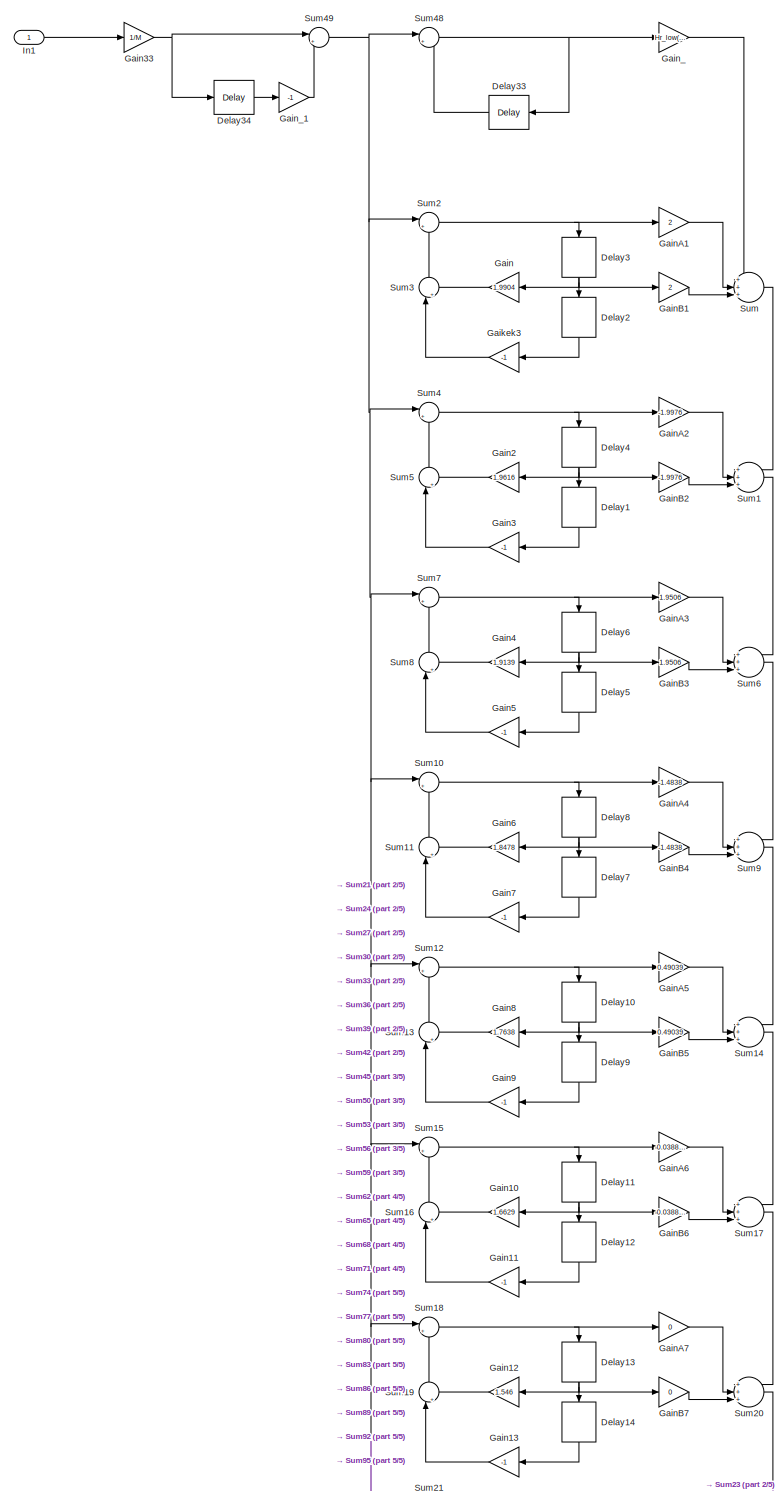
[diagram: Lowpass - part 1/5, full width, top band]
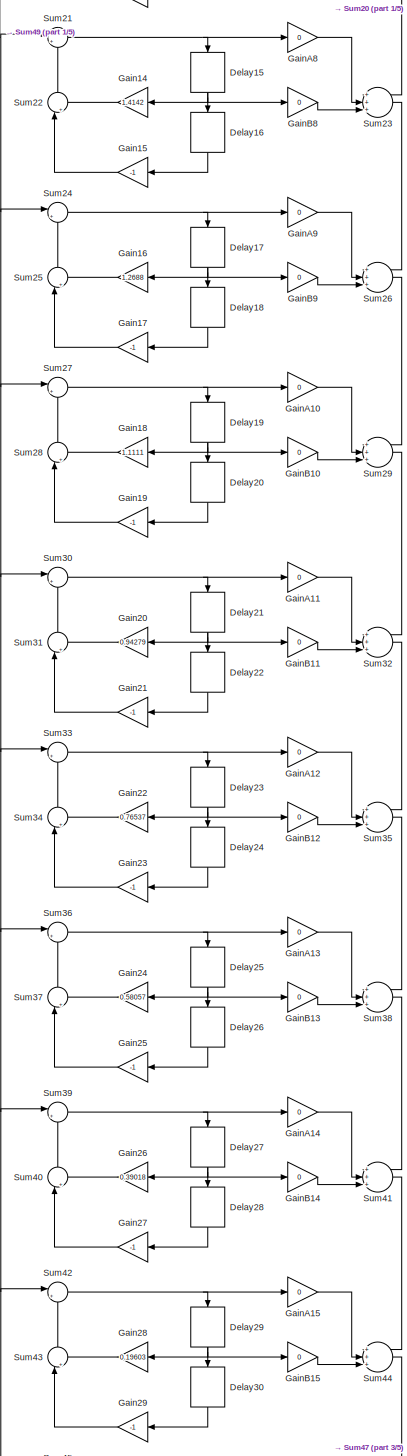
[diagram: Lowpass - part 2/5, central region]
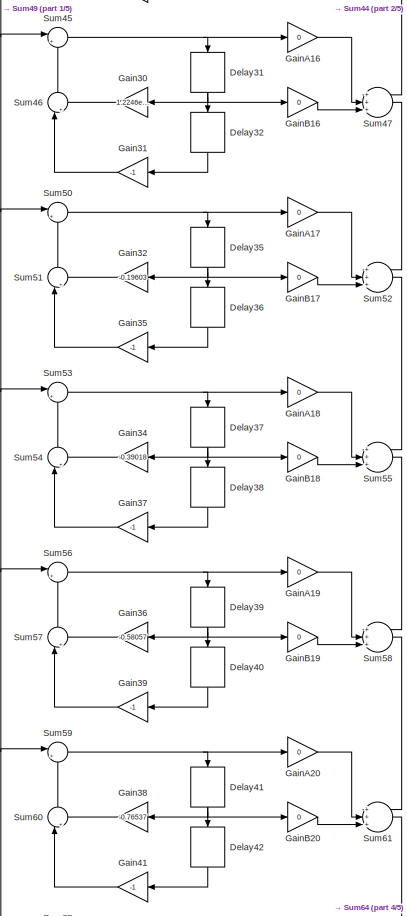
[diagram: Lowpass - part 3/5, central region]
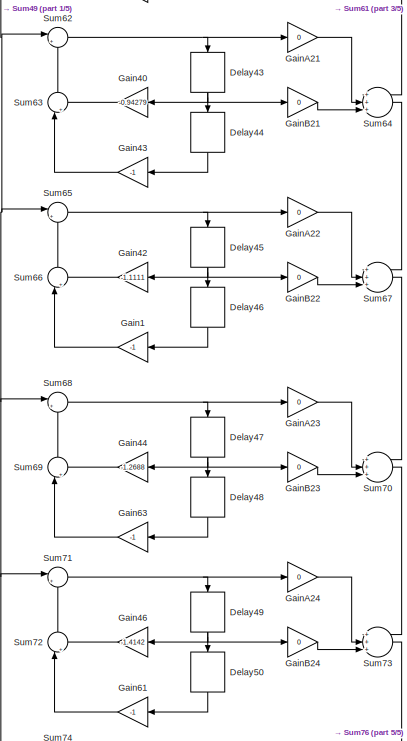
[diagram: Lowpass - part 4/5, bottom center region]
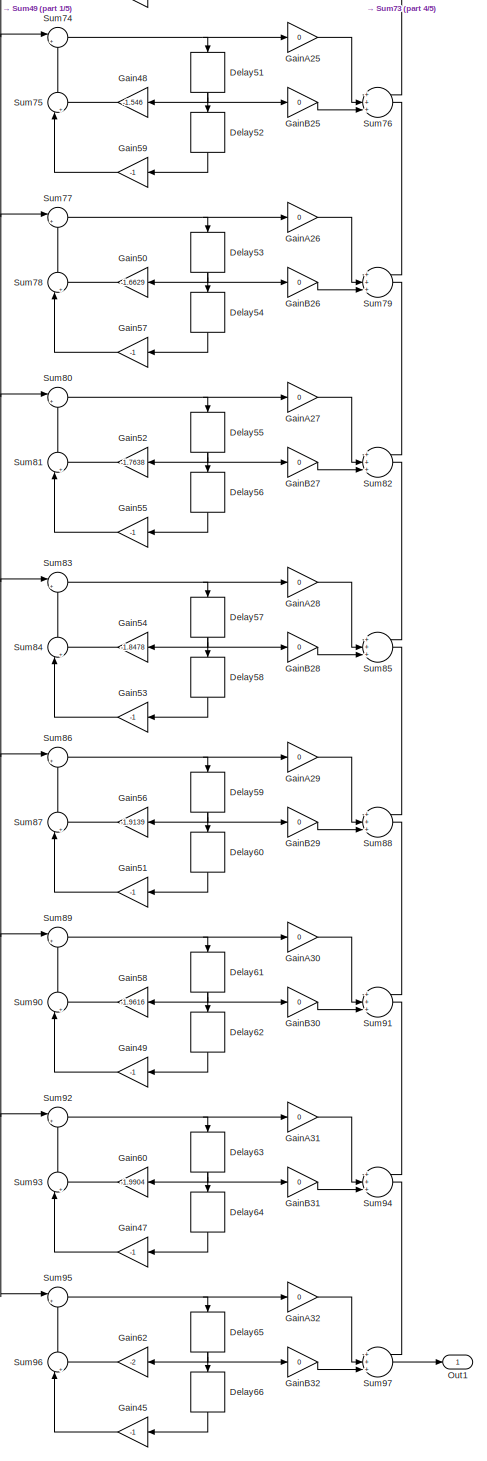
[diagram: Lowpass - part 5/5, bottom right region]
BLOCK [SubSystem] Lowpass
  Ports = [1, 1]
  RequestExecContextInheritance = off
  Variant = off
BLOCK [Delay] Lowpass/Delay1
  DelayLength = 1
  InputPortMap = u0
  Ports = [1, 1]
BLOCK [Delay] Lowpass/Delay10
  DelayLength = 1
  InputPortMap = u0
  Ports = [1, 1]
BLOCK [Delay] Lowpass/Delay11
  DelayLength = 1
  InputPortMap = u0
  Ports = [1, 1]
BLOCK [Delay] Lowpass/Delay12
  DelayLength = 1
  InputPortMap = u0
  Ports = [1, 1]
BLOCK [Delay] Lowpass/Delay13
  DelayLength = 1
  InputPortMap = u0
  Ports = [1, 1]
BLOCK [Delay] Lowpass/Delay14
  DelayLength = 1
  InputPortMap = u0
  Ports = [1, 1]
BLOCK [Delay] Lowpass/Delay15
  DelayLength = 1
  InputPortMap = u0
  Ports = [1, 1]
BLOCK [Delay] Lowpass/Delay16
  DelayLength = 1
  InputPortMap = u0
  Ports = [1, 1]
BLOCK [Delay] Lowpass/Delay17
  DelayLength = 1
  InputPortMap = u0
  Ports = [1, 1]
BLOCK [Delay] Lowpass/Delay18
  DelayLength = 1
  InputPortMap = u0
  Ports = [1, 1]
BLOCK [Delay] Lowpass/Delay19
  DelayLength = 1
  InputPortMap = u0
  Ports = [1, 1]
BLOCK [Delay] Lowpass/Delay2
  DelayLength = 1
  InputPortMap = u0
  Ports = [1, 1]
BLOCK [Delay] Lowpass/Delay20
  DelayLength = 1
  InputPortMap = u0
  Ports = [1, 1]
BLOCK [Delay] Lowpass/Delay21
  DelayLength = 1
  InputPortMap = u0
  Ports = [1, 1]
BLOCK [Delay] Lowpass/Delay22
  DelayLength = 1
  InputPortMap = u0
  Ports = [1, 1]
BLOCK [Delay] Lowpass/Delay23
  DelayLength = 1
  InputPortMap = u0
  Ports = [1, 1]
BLOCK [Delay] Lowpass/Delay24
  DelayLength = 1
  InputPortMap = u0
  Ports = [1, 1]
BLOCK [Delay] Lowpass/Delay25
  DelayLength = 1
  InputPortMap = u0
  Ports = [1, 1]
BLOCK [Delay] Lowpass/Delay26
  DelayLength = 1
  InputPortMap = u0
  Ports = [1, 1]
BLOCK [Delay] Lowpass/Delay27
  DelayLength = 1
  InputPortMap = u0
  Ports = [1, 1]
BLOCK [Delay] Lowpass/Delay28
  DelayLength = 1
  InputPortMap = u0
  Ports = [1, 1]
BLOCK [Delay] Lowpass/Delay29
  DelayLength = 1
  InputPortMap = u0
  Ports = [1, 1]
BLOCK [Delay] Lowpass/Delay3
  DelayLength = 1
  InputPortMap = u0
  Ports = [1, 1]
BLOCK [Delay] Lowpass/Delay30
  DelayLength = 1
  InputPortMap = u0
  Ports = [1, 1]
BLOCK [Delay] Lowpass/Delay31
  DelayLength = 1
  InputPortMap = u0
  Ports = [1, 1]
BLOCK [Delay] Lowpass/Delay32
  DelayLength = 1
  InputPortMap = u0
  Ports = [1, 1]
BLOCK [Delay] Lowpass/Delay33
  DelayLength = 1
  InputPortMap = u0
  Ports = [1, 1]
BLOCK [Delay] Lowpass/Delay34
  DelayLength = M
  InputPortMap = u0
  Ports = [1, 1]
BLOCK [Delay] Lowpass/Delay35
  DelayLength = 1
  InputPortMap = u0
  Ports = [1, 1]
BLOCK [Delay] Lowpass/Delay36
  DelayLength = 1
  InputPortMap = u0
  Ports = [1, 1]
BLOCK [Delay] Lowpass/Delay37
  DelayLength = 1
  InputPortMap = u0
  Ports = [1, 1]
BLOCK [Delay] Lowpass/Delay38
  DelayLength = 1
  InputPortMap = u0
  Ports = [1, 1]
BLOCK [Delay] Lowpass/Delay39
  DelayLength = 1
  InputPortMap = u0
  Ports = [1, 1]
BLOCK [Delay] Lowpass/Delay4
  DelayLength = 1
  InputPortMap = u0
  Ports = [1, 1]
BLOCK [Delay] Lowpass/Delay40
  DelayLength = 1
  InputPortMap = u0
  Ports = [1, 1]
BLOCK [Delay] Lowpass/Delay41
  DelayLength = 1
  InputPortMap = u0
  Ports = [1, 1]
BLOCK [Delay] Lowpass/Delay42
  DelayLength = 1
  InputPortMap = u0
  Ports = [1, 1]
BLOCK [Delay] Lowpass/Delay43
  DelayLength = 1
  InputPortMap = u0
  Ports = [1, 1]
BLOCK [Delay] Lowpass/Delay44
  DelayLength = 1
  InputPortMap = u0
  Ports = [1, 1]
BLOCK [Delay] Lowpass/Delay45
  DelayLength = 1
  InputPortMap = u0
  Ports = [1, 1]
BLOCK [Delay] Lowpass/Delay46
  DelayLength = 1
  InputPortMap = u0
  Ports = [1, 1]
BLOCK [Delay] Lowpass/Delay47
  DelayLength = 1
  InputPortMap = u0
  Ports = [1, 1]
BLOCK [Delay] Lowpass/Delay48
  DelayLength = 1
  InputPortMap = u0
  Ports = [1, 1]
BLOCK [Delay] Lowpass/Delay49
  DelayLength = 1
  InputPortMap = u0
  Ports = [1, 1]
BLOCK [Delay] Lowpass/Delay5
  DelayLength = 1
  InputPortMap = u0
  Ports = [1, 1]
BLOCK [Delay] Lowpass/Delay50
  DelayLength = 1
  InputPortMap = u0
  Ports = [1, 1]
BLOCK [Delay] Lowpass/Delay51
  DelayLength = 1
  InputPortMap = u0
  Ports = [1, 1]
BLOCK [Delay] Lowpass/Delay52
  DelayLength = 1
  InputPortMap = u0
  Ports = [1, 1]
BLOCK [Delay] Lowpass/Delay53
  DelayLength = 1
  InputPortMap = u0
  Ports = [1, 1]
BLOCK [Delay] Lowpass/Delay54
  DelayLength = 1
  InputPortMap = u0
  Ports = [1, 1]
BLOCK [Delay] Lowpass/Delay55
  DelayLength = 1
  InputPortMap = u0
  Ports = [1, 1]
BLOCK [Delay] Lowpass/Delay56
  DelayLength = 1
  InputPortMap = u0
  Ports = [1, 1]
BLOCK [Delay] Lowpass/Delay57
  DelayLength = 1
  InputPortMap = u0
  Ports = [1, 1]
BLOCK [Delay] Lowpass/Delay58
  DelayLength = 1
  InputPortMap = u0
  Ports = [1, 1]
BLOCK [Delay] Lowpass/Delay59
  DelayLength = 1
  InputPortMap = u0
  Ports = [1, 1]
BLOCK [Delay] Lowpass/Delay6
  DelayLength = 1
  InputPortMap = u0
  Ports = [1, 1]
BLOCK [Delay] Lowpass/Delay60
  DelayLength = 1
  InputPortMap = u0
  Ports = [1, 1]
BLOCK [Delay] Lowpass/Delay61
  DelayLength = 1
  InputPortMap = u0
  Ports = [1, 1]
BLOCK [Delay] Lowpass/Delay62
  DelayLength = 1
  InputPortMap = u0
  Ports = [1, 1]
BLOCK [Delay] Lowpass/Delay63
  DelayLength = 1
  InputPortMap = u0
  Ports = [1, 1]
BLOCK [Delay] Lowpass/Delay64
  DelayLength = 1
  InputPortMap = u0
  Ports = [1, 1]
BLOCK [Delay] Lowpass/Delay65
  DelayLength = 1
  InputPortMap = u0
  Ports = [1, 1]
BLOCK [Delay] Lowpass/Delay66
  DelayLength = 1
  InputPortMap = u0
  Ports = [1, 1]
BLOCK [Delay] Lowpass/Delay7
  DelayLength = 1
  InputPortMap = u0
  Ports = [1, 1]
BLOCK [Delay] Lowpass/Delay8
  DelayLength = 1
  InputPortMap = u0
  Ports = [1, 1]
BLOCK [Delay] Lowpass/Delay9
  DelayLength = 1
  InputPortMap = u0
  Ports = [1, 1]
BLOCK [Gain] Lowpass/Gaikek3
  Gain = -1
  OutDataTypeStr = Inherit: Inherit via internal rule
  ParamDataTypeStr = Inherit: Inherit via internal rule
  SaturateOnIntegerOverflow = off
BLOCK [Gain] Lowpass/Gain
  Gain = 1.9904
  OutDataTypeStr = Inherit: Inherit via internal rule
  ParamDataTypeStr = Inherit: Inherit via internal rule
  SaturateOnIntegerOverflow = off
BLOCK [Gain] Lowpass/Gain1
  Gain = -1
  OutDataTypeStr = Inherit: Inherit via internal rule
  ParamDataTypeStr = Inherit: Inherit via internal rule
  SaturateOnIntegerOverflow = off
BLOCK [Gain] Lowpass/Gain10
  Gain = 1.6629
  OutDataTypeStr = Inherit: Inherit via internal rule
  ParamDataTypeStr = Inherit: Inherit via internal rule
  SaturateOnIntegerOverflow = off
BLOCK [Gain] Lowpass/Gain11
  Gain = -1
  OutDataTypeStr = Inherit: Inherit via internal rule
  ParamDataTypeStr = Inherit: Inherit via internal rule
  SaturateOnIntegerOverflow = off
BLOCK [Gain] Lowpass/Gain12
  Gain = 1.546
  OutDataTypeStr = Inherit: Inherit via internal rule
  ParamDataTypeStr = Inherit: Inherit via internal rule
  SaturateOnIntegerOverflow = off
BLOCK [Gain] Lowpass/Gain13
  Gain = -1
  OutDataTypeStr = Inherit: Inherit via internal rule
  ParamDataTypeStr = Inherit: Inherit via internal rule
  SaturateOnIntegerOverflow = off
BLOCK [Gain] Lowpass/Gain14
  Gain = 1.4142
  OutDataTypeStr = Inherit: Inherit via internal rule
  ParamDataTypeStr = Inherit: Inherit via internal rule
  SaturateOnIntegerOverflow = off
BLOCK [Gain] Lowpass/Gain15
  Gain = -1
  OutDataTypeStr = Inherit: Inherit via internal rule
  ParamDataTypeStr = Inherit: Inherit via internal rule
  SaturateOnIntegerOverflow = off
BLOCK [Gain] Lowpass/Gain16
  Gain = 1.2688
  OutDataTypeStr = Inherit: Inherit via internal rule
  ParamDataTypeStr = Inherit: Inherit via internal rule
  SaturateOnIntegerOverflow = off
BLOCK [Gain] Lowpass/Gain17
  Gain = -1
  OutDataTypeStr = Inherit: Inherit via internal rule
  ParamDataTypeStr = Inherit: Inherit via internal rule
  SaturateOnIntegerOverflow = off
BLOCK [Gain] Lowpass/Gain18
  Gain = 1.1111
  OutDataTypeStr = Inherit: Inherit via internal rule
  ParamDataTypeStr = Inherit: Inherit via internal rule
  SaturateOnIntegerOverflow = off
BLOCK [Gain] Lowpass/Gain19
  Gain = -1
  OutDataTypeStr = Inherit: Inherit via internal rule
  ParamDataTypeStr = Inherit: Inherit via internal rule
  SaturateOnIntegerOverflow = off
BLOCK [Gain] Lowpass/Gain2
  Gain = 1.9616
  OutDataTypeStr = Inherit: Inherit via internal rule
  ParamDataTypeStr = Inherit: Inherit via internal rule
  SaturateOnIntegerOverflow = off
BLOCK [Gain] Lowpass/Gain20
  Gain = 0.94279
  OutDataTypeStr = Inherit: Inherit via internal rule
  ParamDataTypeStr = Inherit: Inherit via internal rule
  SaturateOnIntegerOverflow = off
BLOCK [Gain] Lowpass/Gain21
  Gain = -1
  OutDataTypeStr = Inherit: Inherit via internal rule
  ParamDataTypeStr = Inherit: Inherit via internal rule
  SaturateOnIntegerOverflow = off
BLOCK [Gain] Lowpass/Gain22
  Gain = 0.76537
  OutDataTypeStr = Inherit: Inherit via internal rule
  ParamDataTypeStr = Inherit: Inherit via internal rule
  SaturateOnIntegerOverflow = off
BLOCK [Gain] Lowpass/Gain23
  Gain = -1
  OutDataTypeStr = Inherit: Inherit via internal rule
  ParamDataTypeStr = Inherit: Inherit via internal rule
  SaturateOnIntegerOverflow = off
BLOCK [Gain] Lowpass/Gain24
  Gain = 0.58057
  OutDataTypeStr = Inherit: Inherit via internal rule
  ParamDataTypeStr = Inherit: Inherit via internal rule
  SaturateOnIntegerOverflow = off
BLOCK [Gain] Lowpass/Gain25
  Gain = -1
  OutDataTypeStr = Inherit: Inherit via internal rule
  ParamDataTypeStr = Inherit: Inherit via internal rule
  SaturateOnIntegerOverflow = off
BLOCK [Gain] Lowpass/Gain26
  Gain = 0.39018
  OutDataTypeStr = Inherit: Inherit via internal rule
  ParamDataTypeStr = Inherit: Inherit via internal rule
  SaturateOnIntegerOverflow = off
BLOCK [Gain] Lowpass/Gain27
  Gain = -1
  OutDataTypeStr = Inherit: Inherit via internal rule
  ParamDataTypeStr = Inherit: Inherit via internal rule
  SaturateOnIntegerOverflow = off
BLOCK [Gain] Lowpass/Gain28
  Gain = 0.19603
  OutDataTypeStr = Inherit: Inherit via internal rule
  ParamDataTypeStr = Inherit: Inherit via internal rule
  SaturateOnIntegerOverflow = off
BLOCK [Gain] Lowpass/Gain29
  Gain = -1
  OutDataTypeStr = Inherit: Inherit via internal rule
  ParamDataTypeStr = Inherit: Inherit via internal rule
  SaturateOnIntegerOverflow = off
BLOCK [Gain] Lowpass/Gain3
  Gain = -1
  OutDataTypeStr = Inherit: Inherit via internal rule
  ParamDataTypeStr = Inherit: Inherit via internal rule
  SaturateOnIntegerOverflow = off
BLOCK [Gain] Lowpass/Gain30
  Gain = 1.2246e-16
  OutDataTypeStr = Inherit: Inherit via internal rule
  ParamDataTypeStr = Inherit: Inherit via internal rule
  SaturateOnIntegerOverflow = off
BLOCK [Gain] Lowpass/Gain31
  Gain = -1
  OutDataTypeStr = Inherit: Inherit via internal rule
  ParamDataTypeStr = Inherit: Inherit via internal rule
  SaturateOnIntegerOverflow = off
BLOCK [Gain] Lowpass/Gain32
  Gain = -0.19603
  OutDataTypeStr = Inherit: Inherit via internal rule
  ParamDataTypeStr = Inherit: Inherit via internal rule
  SaturateOnIntegerOverflow = off
BLOCK [Gain] Lowpass/Gain33
  Gain = 1/M
  OutDataTypeStr = Inherit: Inherit via internal rule
  ParamDataTypeStr = Inherit: Inherit via internal rule
  SaturateOnIntegerOverflow = off
BLOCK [Gain] Lowpass/Gain34
  Gain = -0.39018
  OutDataTypeStr = Inherit: Inherit via internal rule
  ParamDataTypeStr = Inherit: Inherit via internal rule
  SaturateOnIntegerOverflow = off
BLOCK [Gain] Lowpass/Gain35
  Gain = -1
  OutDataTypeStr = Inherit: Inherit via internal rule
  ParamDataTypeStr = Inherit: Inherit via internal rule
  SaturateOnIntegerOverflow = off
BLOCK [Gain] Lowpass/Gain36
  Gain = -0.58057
  OutDataTypeStr = Inherit: Inherit via internal rule
  ParamDataTypeStr = Inherit: Inherit via internal rule
  SaturateOnIntegerOverflow = off
BLOCK [Gain] Lowpass/Gain37
  Gain = -1
  OutDataTypeStr = Inherit: Inherit via internal rule
  ParamDataTypeStr = Inherit: Inherit via internal rule
  SaturateOnIntegerOverflow = off
BLOCK [Gain] Lowpass/Gain38
  Gain = -0.76537
  OutDataTypeStr = Inherit: Inherit via internal rule
  ParamDataTypeStr = Inherit: Inherit via internal rule
  SaturateOnIntegerOverflow = off
BLOCK [Gain] Lowpass/Gain39
  Gain = -1
  OutDataTypeStr = Inherit: Inherit via internal rule
  ParamDataTypeStr = Inherit: Inherit via internal rule
  SaturateOnIntegerOverflow = off
BLOCK [Gain] Lowpass/Gain4
  Gain = 1.9139
  OutDataTypeStr = Inherit: Inherit via internal rule
  ParamDataTypeStr = Inherit: Inherit via internal rule
  SaturateOnIntegerOverflow = off
BLOCK [Gain] Lowpass/Gain40
  Gain = -0.94279
  OutDataTypeStr = Inherit: Inherit via internal rule
  ParamDataTypeStr = Inherit: Inherit via internal rule
  SaturateOnIntegerOverflow = off
BLOCK [Gain] Lowpass/Gain41
  Gain = -1
  OutDataTypeStr = Inherit: Inherit via internal rule
  ParamDataTypeStr = Inherit: Inherit via internal rule
  SaturateOnIntegerOverflow = off
BLOCK [Gain] Lowpass/Gain42
  Gain = -1.1111
  OutDataTypeStr = Inherit: Inherit via internal rule
  ParamDataTypeStr = Inherit: Inherit via internal rule
  SaturateOnIntegerOverflow = off
BLOCK [Gain] Lowpass/Gain43
  Gain = -1
  OutDataTypeStr = Inherit: Inherit via internal rule
  ParamDataTypeStr = Inherit: Inherit via internal rule
  SaturateOnIntegerOverflow = off
BLOCK [Gain] Lowpass/Gain44
  Gain = -1.2688
  OutDataTypeStr = Inherit: Inherit via internal rule
  ParamDataTypeStr = Inherit: Inherit via internal rule
  SaturateOnIntegerOverflow = off
BLOCK [Gain] Lowpass/Gain45
  Gain = -1
  OutDataTypeStr = Inherit: Inherit via internal rule
  ParamDataTypeStr = Inherit: Inherit via internal rule
  SaturateOnIntegerOverflow = off
BLOCK [Gain] Lowpass/Gain46
  Gain = -1.4142
  OutDataTypeStr = Inherit: Inherit via internal rule
  ParamDataTypeStr = Inherit: Inherit via internal rule
  SaturateOnIntegerOverflow = off
BLOCK [Gain] Lowpass/Gain47
  Gain = -1
  OutDataTypeStr = Inherit: Inherit via internal rule
  ParamDataTypeStr = Inherit: Inherit via internal rule
  SaturateOnIntegerOverflow = off
BLOCK [Gain] Lowpass/Gain48
  Gain = -1.546
  OutDataTypeStr = Inherit: Inherit via internal rule
  ParamDataTypeStr = Inherit: Inherit via internal rule
  SaturateOnIntegerOverflow = off
BLOCK [Gain] Lowpass/Gain49
  Gain = -1
  OutDataTypeStr = Inherit: Inherit via internal rule
  ParamDataTypeStr = Inherit: Inherit via internal rule
  SaturateOnIntegerOverflow = off
BLOCK [Gain] Lowpass/Gain5
  Gain = -1
  OutDataTypeStr = Inherit: Inherit via internal rule
  ParamDataTypeStr = Inherit: Inherit via internal rule
  SaturateOnIntegerOverflow = off
BLOCK [Gain] Lowpass/Gain50
  Gain = -1.6629
  OutDataTypeStr = Inherit: Inherit via internal rule
  ParamDataTypeStr = Inherit: Inherit via internal rule
  SaturateOnIntegerOverflow = off
BLOCK [Gain] Lowpass/Gain51
  Gain = -1
  OutDataTypeStr = Inherit: Inherit via internal rule
  ParamDataTypeStr = Inherit: Inherit via internal rule
  SaturateOnIntegerOverflow = off
BLOCK [Gain] Lowpass/Gain52
  Gain = -1.7638
  OutDataTypeStr = Inherit: Inherit via internal rule
  ParamDataTypeStr = Inherit: Inherit via internal rule
  SaturateOnIntegerOverflow = off
BLOCK [Gain] Lowpass/Gain53
  Gain = -1
  OutDataTypeStr = Inherit: Inherit via internal rule
  ParamDataTypeStr = Inherit: Inherit via internal rule
  SaturateOnIntegerOverflow = off
BLOCK [Gain] Lowpass/Gain54
  Gain = -1.8478
  OutDataTypeStr = Inherit: Inherit via internal rule
  ParamDataTypeStr = Inherit: Inherit via internal rule
  SaturateOnIntegerOverflow = off
BLOCK [Gain] Lowpass/Gain55
  Gain = -1
  OutDataTypeStr = Inherit: Inherit via internal rule
  ParamDataTypeStr = Inherit: Inherit via internal rule
  SaturateOnIntegerOverflow = off
BLOCK [Gain] Lowpass/Gain56
  Gain = -1.9139
  OutDataTypeStr = Inherit: Inherit via internal rule
  ParamDataTypeStr = Inherit: Inherit via internal rule
  SaturateOnIntegerOverflow = off
BLOCK [Gain] Lowpass/Gain57
  Gain = -1
  OutDataTypeStr = Inherit: Inherit via internal rule
  ParamDataTypeStr = Inherit: Inherit via internal rule
  SaturateOnIntegerOverflow = off
BLOCK [Gain] Lowpass/Gain58
  Gain = -1.9616
  OutDataTypeStr = Inherit: Inherit via internal rule
  ParamDataTypeStr = Inherit: Inherit via internal rule
  SaturateOnIntegerOverflow = off
BLOCK [Gain] Lowpass/Gain59
  Gain = -1
  OutDataTypeStr = Inherit: Inherit via internal rule
  ParamDataTypeStr = Inherit: Inherit via internal rule
  SaturateOnIntegerOverflow = off
BLOCK [Gain] Lowpass/Gain6
  Gain = 1.8478
  OutDataTypeStr = Inherit: Inherit via internal rule
  ParamDataTypeStr = Inherit: Inherit via internal rule
  SaturateOnIntegerOverflow = off
BLOCK [Gain] Lowpass/Gain60
  Gain = -1.9904
  OutDataTypeStr = Inherit: Inherit via internal rule
  ParamDataTypeStr = Inherit: Inherit via internal rule
  SaturateOnIntegerOverflow = off
BLOCK [Gain] Lowpass/Gain61
  Gain = -1
  OutDataTypeStr = Inherit: Inherit via internal rule
  ParamDataTypeStr = Inherit: Inherit via internal rule
  SaturateOnIntegerOverflow = off
BLOCK [Gain] Lowpass/Gain62
  Gain = -2
  OutDataTypeStr = Inherit: Inherit via internal rule
  ParamDataTypeStr = Inherit: Inherit via internal rule
  SaturateOnIntegerOverflow = off
BLOCK [Gain] Lowpass/Gain63
  Gain = -1
  OutDataTypeStr = Inherit: Inherit via internal rule
  ParamDataTypeStr = Inherit: Inherit via internal rule
  SaturateOnIntegerOverflow = off
BLOCK [Gain] Lowpass/Gain7
  Gain = -1
  OutDataTypeStr = Inherit: Inherit via internal rule
  ParamDataTypeStr = Inherit: Inherit via internal rule
  SaturateOnIntegerOverflow = off
BLOCK [Gain] Lowpass/Gain8
  Gain = 1.7638
  OutDataTypeStr = Inherit: Inherit via internal rule
  ParamDataTypeStr = Inherit: Inherit via internal rule
  SaturateOnIntegerOverflow = off
BLOCK [Gain] Lowpass/Gain9
  Gain = -1
  OutDataTypeStr = Inherit: Inherit via internal rule
  ParamDataTypeStr = Inherit: Inherit via internal rule
  SaturateOnIntegerOverflow = off
BLOCK [Gain] Lowpass/GainA1
  Gain = 2
  OutDataTypeStr = Inherit: Inherit via internal rule
  ParamDataTypeStr = Inherit: Inherit via internal rule
  SaturateOnIntegerOverflow = off
BLOCK [Gain] Lowpass/GainA10
  Gain = 0
  OutDataTypeStr = Inherit: Inherit via internal rule
  ParamDataTypeStr = Inherit: Inherit via internal rule
  SaturateOnIntegerOverflow = off
BLOCK [Gain] Lowpass/GainA11
  Gain = 0
  OutDataTypeStr = Inherit: Inherit via internal rule
  ParamDataTypeStr = Inherit: Inherit via internal rule
  SaturateOnIntegerOverflow = off
BLOCK [Gain] Lowpass/GainA12
  Gain = 0
  OutDataTypeStr = Inherit: Inherit via internal rule
  ParamDataTypeStr = Inherit: Inherit via internal rule
  SaturateOnIntegerOverflow = off
BLOCK [Gain] Lowpass/GainA13
  Gain = 0
  OutDataTypeStr = Inherit: Inherit via internal rule
  ParamDataTypeStr = Inherit: Inherit via internal rule
  SaturateOnIntegerOverflow = off
BLOCK [Gain] Lowpass/GainA14
  Gain = 0
  OutDataTypeStr = Inherit: Inherit via internal rule
  ParamDataTypeStr = Inherit: Inherit via internal rule
  SaturateOnIntegerOverflow = off
BLOCK [Gain] Lowpass/GainA15
  Gain = 0
  OutDataTypeStr = Inherit: Inherit via internal rule
  ParamDataTypeStr = Inherit: Inherit via internal rule
  SaturateOnIntegerOverflow = off
BLOCK [Gain] Lowpass/GainA16
  Gain = 0
  OutDataTypeStr = Inherit: Inherit via internal rule
  ParamDataTypeStr = Inherit: Inherit via internal rule
  SaturateOnIntegerOverflow = off
BLOCK [Gain] Lowpass/GainA17
  Gain = 0
  OutDataTypeStr = Inherit: Inherit via internal rule
  ParamDataTypeStr = Inherit: Inherit via internal rule
  SaturateOnIntegerOverflow = off
BLOCK [Gain] Lowpass/GainA18
  Gain = 0
  OutDataTypeStr = Inherit: Inherit via internal rule
  ParamDataTypeStr = Inherit: Inherit via internal rule
  SaturateOnIntegerOverflow = off
BLOCK [Gain] Lowpass/GainA19
  Gain = 0
  OutDataTypeStr = Inherit: Inherit via internal rule
  ParamDataTypeStr = Inherit: Inherit via internal rule
  SaturateOnIntegerOverflow = off
BLOCK [Gain] Lowpass/GainA2
  Gain = -1.9976
  OutDataTypeStr = Inherit: Inherit via internal rule
  ParamDataTypeStr = Inherit: Inherit via internal rule
  SaturateOnIntegerOverflow = off
BLOCK [Gain] Lowpass/GainA20
  Gain = 0
  OutDataTypeStr = Inherit: Inherit via internal rule
  ParamDataTypeStr = Inherit: Inherit via internal rule
  SaturateOnIntegerOverflow = off
BLOCK [Gain] Lowpass/GainA21
  Gain = 0
  OutDataTypeStr = Inherit: Inherit via internal rule
  ParamDataTypeStr = Inherit: Inherit via internal rule
  SaturateOnIntegerOverflow = off
BLOCK [Gain] Lowpass/GainA22
  Gain = 0
  OutDataTypeStr = Inherit: Inherit via internal rule
  ParamDataTypeStr = Inherit: Inherit via internal rule
  SaturateOnIntegerOverflow = off
BLOCK [Gain] Lowpass/GainA23
  Gain = 0
  OutDataTypeStr = Inherit: Inherit via internal rule
  ParamDataTypeStr = Inherit: Inherit via internal rule
  SaturateOnIntegerOverflow = off
BLOCK [Gain] Lowpass/GainA24
  Gain = 0
  OutDataTypeStr = Inherit: Inherit via internal rule
  ParamDataTypeStr = Inherit: Inherit via internal rule
  SaturateOnIntegerOverflow = off
BLOCK [Gain] Lowpass/GainA25
  Gain = 0
  OutDataTypeStr = Inherit: Inherit via internal rule
  ParamDataTypeStr = Inherit: Inherit via internal rule
  SaturateOnIntegerOverflow = off
BLOCK [Gain] Lowpass/GainA26
  Gain = 0
  OutDataTypeStr = Inherit: Inherit via internal rule
  ParamDataTypeStr = Inherit: Inherit via internal rule
  SaturateOnIntegerOverflow = off
BLOCK [Gain] Lowpass/GainA27
  Gain = 0
  OutDataTypeStr = Inherit: Inherit via internal rule
  ParamDataTypeStr = Inherit: Inherit via internal rule
  SaturateOnIntegerOverflow = off
BLOCK [Gain] Lowpass/GainA28
  Gain = 0
  OutDataTypeStr = Inherit: Inherit via internal rule
  ParamDataTypeStr = Inherit: Inherit via internal rule
  SaturateOnIntegerOverflow = off
BLOCK [Gain] Lowpass/GainA29
  Gain = 0
  OutDataTypeStr = Inherit: Inherit via internal rule
  ParamDataTypeStr = Inherit: Inherit via internal rule
  SaturateOnIntegerOverflow = off
BLOCK [Gain] Lowpass/GainA3
  Gain = 1.9506
  OutDataTypeStr = Inherit: Inherit via internal rule
  ParamDataTypeStr = Inherit: Inherit via internal rule
  SaturateOnIntegerOverflow = off
BLOCK [Gain] Lowpass/GainA30
  Gain = 0
  OutDataTypeStr = Inherit: Inherit via internal rule
  ParamDataTypeStr = Inherit: Inherit via internal rule
  SaturateOnIntegerOverflow = off
BLOCK [Gain] Lowpass/GainA31
  Gain = 0
  OutDataTypeStr = Inherit: Inherit via internal rule
  ParamDataTypeStr = Inherit: Inherit via internal rule
  SaturateOnIntegerOverflow = off
BLOCK [Gain] Lowpass/GainA32
  Gain = 0
  OutDataTypeStr = Inherit: Inherit via internal rule
  ParamDataTypeStr = Inherit: Inherit via internal rule
  SaturateOnIntegerOverflow = off
BLOCK [Gain] Lowpass/GainA4
  Gain = -1.4838
  OutDataTypeStr = Inherit: Inherit via internal rule
  ParamDataTypeStr = Inherit: Inherit via internal rule
  SaturateOnIntegerOverflow = off
BLOCK [Gain] Lowpass/GainA5
  Gain = 0.49039
  OutDataTypeStr = Inherit: Inherit via internal rule
  ParamDataTypeStr = Inherit: Inherit via internal rule
  SaturateOnIntegerOverflow = off
BLOCK [Gain] Lowpass/GainA6
  Gain = -0.038801
  OutDataTypeStr = Inherit: Inherit via internal rule
  ParamDataTypeStr = Inherit: Inherit via internal rule
  SaturateOnIntegerOverflow = off
BLOCK [Gain] Lowpass/GainA7
  Gain = 0
  OutDataTypeStr = Inherit: Inherit via internal rule
  ParamDataTypeStr = Inherit: Inherit via internal rule
  SaturateOnIntegerOverflow = off
BLOCK [Gain] Lowpass/GainA8
  Gain = 0
  OutDataTypeStr = Inherit: Inherit via internal rule
  ParamDataTypeStr = Inherit: Inherit via internal rule
  SaturateOnIntegerOverflow = off
BLOCK [Gain] Lowpass/GainA9
  Gain = 0
  OutDataTypeStr = Inherit: Inherit via internal rule
  ParamDataTypeStr = Inherit: Inherit via internal rule
  SaturateOnIntegerOverflow = off
BLOCK [Gain] Lowpass/GainB1
  Gain = 2
  OutDataTypeStr = Inherit: Inherit via internal rule
  ParamDataTypeStr = Inherit: Inherit via internal rule
  SaturateOnIntegerOverflow = off
BLOCK [Gain] Lowpass/GainB10
  Gain = 0
  OutDataTypeStr = Inherit: Inherit via internal rule
  ParamDataTypeStr = Inherit: Inherit via internal rule
  SaturateOnIntegerOverflow = off
BLOCK [Gain] Lowpass/GainB11
  Gain = 0
  OutDataTypeStr = Inherit: Inherit via internal rule
  ParamDataTypeStr = Inherit: Inherit via internal rule
  SaturateOnIntegerOverflow = off
BLOCK [Gain] Lowpass/GainB12
  Gain = 0
  OutDataTypeStr = Inherit: Inherit via internal rule
  ParamDataTypeStr = Inherit: Inherit via internal rule
  SaturateOnIntegerOverflow = off
BLOCK [Gain] Lowpass/GainB13
  Gain = 0
  OutDataTypeStr = Inherit: Inherit via internal rule
  ParamDataTypeStr = Inherit: Inherit via internal rule
  SaturateOnIntegerOverflow = off
BLOCK [Gain] Lowpass/GainB14
  Gain = 0
  OutDataTypeStr = Inherit: Inherit via internal rule
  ParamDataTypeStr = Inherit: Inherit via internal rule
  SaturateOnIntegerOverflow = off
BLOCK [Gain] Lowpass/GainB15
  Gain = 0
  OutDataTypeStr = Inherit: Inherit via internal rule
  ParamDataTypeStr = Inherit: Inherit via internal rule
  SaturateOnIntegerOverflow = off
BLOCK [Gain] Lowpass/GainB16
  Gain = 0
  OutDataTypeStr = Inherit: Inherit via internal rule
  ParamDataTypeStr = Inherit: Inherit via internal rule
  SaturateOnIntegerOverflow = off
BLOCK [Gain] Lowpass/GainB17
  Gain = 0
  OutDataTypeStr = Inherit: Inherit via internal rule
  ParamDataTypeStr = Inherit: Inherit via internal rule
  SaturateOnIntegerOverflow = off
BLOCK [Gain] Lowpass/GainB18
  Gain = 0
  OutDataTypeStr = Inherit: Inherit via internal rule
  ParamDataTypeStr = Inherit: Inherit via internal rule
  SaturateOnIntegerOverflow = off
BLOCK [Gain] Lowpass/GainB19
  Gain = 0
  OutDataTypeStr = Inherit: Inherit via internal rule
  ParamDataTypeStr = Inherit: Inherit via internal rule
  SaturateOnIntegerOverflow = off
BLOCK [Gain] Lowpass/GainB2
  Gain = -1.9976
  OutDataTypeStr = Inherit: Inherit via internal rule
  ParamDataTypeStr = Inherit: Inherit via internal rule
  SaturateOnIntegerOverflow = off
BLOCK [Gain] Lowpass/GainB20
  Gain = 0
  OutDataTypeStr = Inherit: Inherit via internal rule
  ParamDataTypeStr = Inherit: Inherit via internal rule
  SaturateOnIntegerOverflow = off
BLOCK [Gain] Lowpass/GainB21
  Gain = 0
  OutDataTypeStr = Inherit: Inherit via internal rule
  ParamDataTypeStr = Inherit: Inherit via internal rule
  SaturateOnIntegerOverflow = off
BLOCK [Gain] Lowpass/GainB22
  Gain = 0
  OutDataTypeStr = Inherit: Inherit via internal rule
  ParamDataTypeStr = Inherit: Inherit via internal rule
  SaturateOnIntegerOverflow = off
BLOCK [Gain] Lowpass/GainB23
  Gain = 0
  OutDataTypeStr = Inherit: Inherit via internal rule
  ParamDataTypeStr = Inherit: Inherit via internal rule
  SaturateOnIntegerOverflow = off
BLOCK [Gain] Lowpass/GainB24
  Gain = 0
  OutDataTypeStr = Inherit: Inherit via internal rule
  ParamDataTypeStr = Inherit: Inherit via internal rule
  SaturateOnIntegerOverflow = off
BLOCK [Gain] Lowpass/GainB25
  Gain = 0
  OutDataTypeStr = Inherit: Inherit via internal rule
  ParamDataTypeStr = Inherit: Inherit via internal rule
  SaturateOnIntegerOverflow = off
BLOCK [Gain] Lowpass/GainB26
  Gain = 0
  OutDataTypeStr = Inherit: Inherit via internal rule
  ParamDataTypeStr = Inherit: Inherit via internal rule
  SaturateOnIntegerOverflow = off
BLOCK [Gain] Lowpass/GainB27
  Gain = 0
  OutDataTypeStr = Inherit: Inherit via internal rule
  ParamDataTypeStr = Inherit: Inherit via internal rule
  SaturateOnIntegerOverflow = off
BLOCK [Gain] Lowpass/GainB28
  Gain = 0
  OutDataTypeStr = Inherit: Inherit via internal rule
  ParamDataTypeStr = Inherit: Inherit via internal rule
  SaturateOnIntegerOverflow = off
BLOCK [Gain] Lowpass/GainB29
  Gain = 0
  OutDataTypeStr = Inherit: Inherit via internal rule
  ParamDataTypeStr = Inherit: Inherit via internal rule
  SaturateOnIntegerOverflow = off
BLOCK [Gain] Lowpass/GainB3
  Gain = 1.9506
  OutDataTypeStr = Inherit: Inherit via internal rule
  ParamDataTypeStr = Inherit: Inherit via internal rule
  SaturateOnIntegerOverflow = off
BLOCK [Gain] Lowpass/GainB30
  Gain = 0
  OutDataTypeStr = Inherit: Inherit via internal rule
  ParamDataTypeStr = Inherit: Inherit via internal rule
  SaturateOnIntegerOverflow = off
BLOCK [Gain] Lowpass/GainB31
  Gain = 0
  OutDataTypeStr = Inherit: Inherit via internal rule
  ParamDataTypeStr = Inherit: Inherit via internal rule
  SaturateOnIntegerOverflow = off
BLOCK [Gain] Lowpass/GainB32
  Gain = 0
  OutDataTypeStr = Inherit: Inherit via internal rule
  ParamDataTypeStr = Inherit: Inherit via internal rule
  SaturateOnIntegerOverflow = off
BLOCK [Gain] Lowpass/GainB4
  Gain = -1.4838
  OutDataTypeStr = Inherit: Inherit via internal rule
  ParamDataTypeStr = Inherit: Inherit via internal rule
  SaturateOnIntegerOverflow = off
BLOCK [Gain] Lowpass/GainB5
  Gain = 0.49039
  OutDataTypeStr = Inherit: Inherit via internal rule
  ParamDataTypeStr = Inherit: Inherit via internal rule
  SaturateOnIntegerOverflow = off
BLOCK [Gain] Lowpass/GainB6
  Gain = -0.038801
  OutDataTypeStr = Inherit: Inherit via internal rule
  ParamDataTypeStr = Inherit: Inherit via internal rule
  SaturateOnIntegerOverflow = off
BLOCK [Gain] Lowpass/GainB7
  Gain = 0
  OutDataTypeStr = Inherit: Inherit via internal rule
  ParamDataTypeStr = Inherit: Inherit via internal rule
  SaturateOnIntegerOverflow = off
BLOCK [Gain] Lowpass/GainB8
  Gain = 0
  OutDataTypeStr = Inherit: Inherit via internal rule
  ParamDataTypeStr = Inherit: Inherit via internal rule
  SaturateOnIntegerOverflow = off
BLOCK [Gain] Lowpass/GainB9
  Gain = 0
  OutDataTypeStr = Inherit: Inherit via internal rule
  ParamDataTypeStr = Inherit: Inherit via internal rule
  SaturateOnIntegerOverflow = off
BLOCK [Gain] Lowpass/Gain_
  Gain = Hr_low(1)
  OutDataTypeStr = Inherit: Inherit via internal rule
  ParamDataTypeStr = Inherit: Inherit via internal rule
  SaturateOnIntegerOverflow = off
BLOCK [Gain] Lowpass/Gain_1
  Gain = -1
  OutDataTypeStr = Inherit: Inherit via internal rule
  ParamDataTypeStr = Inherit: Inherit via internal rule
  SaturateOnIntegerOverflow = off
BLOCK [Inport] Lowpass/In1
  IconDisplay = Port number
BLOCK [Outport] Lowpass/Out1
  IconDisplay = Port number
BLOCK [Sum] Lowpass/Sum
  IconShape = round
  InputSameDT = off
  Inputs = +++||
  OutDataTypeStr = Inherit: Inherit via internal rule
  Ports = [3, 1]
  SaturateOnIntegerOverflow = off
BLOCK [Sum] Lowpass/Sum1
  IconShape = round
  InputSameDT = off
  Inputs = +++||
  OutDataTypeStr = Inherit: Inherit via internal rule
  Ports = [3, 1]
  SaturateOnIntegerOverflow = off
BLOCK [Sum] Lowpass/Sum10
  IconShape = round
  InputSameDT = off
  Inputs = |++
  OutDataTypeStr = Inherit: Inherit via internal rule
  Ports = [2, 1]
  SaturateOnIntegerOverflow = off
BLOCK [Sum] Lowpass/Sum11
  IconShape = round
  InputSameDT = off
  Inputs = |++
  OutDataTypeStr = Inherit: Inherit via internal rule
  Ports = [2, 1]
  SaturateOnIntegerOverflow = off
BLOCK [Sum] Lowpass/Sum12
  IconShape = round
  InputSameDT = off
  Inputs = |++
  OutDataTypeStr = Inherit: Inherit via internal rule
  Ports = [2, 1]
  SaturateOnIntegerOverflow = off
BLOCK [Sum] Lowpass/Sum13
  IconShape = round
  InputSameDT = off
  Inputs = |++
  OutDataTypeStr = Inherit: Inherit via internal rule
  Ports = [2, 1]
  SaturateOnIntegerOverflow = off
BLOCK [Sum] Lowpass/Sum14
  IconShape = round
  InputSameDT = off
  Inputs = +++||
  OutDataTypeStr = Inherit: Inherit via internal rule
  Ports = [3, 1]
  SaturateOnIntegerOverflow = off
BLOCK [Sum] Lowpass/Sum15
  IconShape = round
  InputSameDT = off
  Inputs = |++
  OutDataTypeStr = Inherit: Inherit via internal rule
  Ports = [2, 1]
  SaturateOnIntegerOverflow = off
BLOCK [Sum] Lowpass/Sum16
  IconShape = round
  InputSameDT = off
  Inputs = |++
  OutDataTypeStr = Inherit: Inherit via internal rule
  Ports = [2, 1]
  SaturateOnIntegerOverflow = off
BLOCK [Sum] Lowpass/Sum17
  IconShape = round
  InputSameDT = off
  Inputs = +++||
  OutDataTypeStr = Inherit: Inherit via internal rule
  Ports = [3, 1]
  SaturateOnIntegerOverflow = off
BLOCK [Sum] Lowpass/Sum18
  IconShape = round
  InputSameDT = off
  Inputs = |++
  OutDataTypeStr = Inherit: Inherit via internal rule
  Ports = [2, 1]
  SaturateOnIntegerOverflow = off
BLOCK [Sum] Lowpass/Sum19
  IconShape = round
  InputSameDT = off
  Inputs = |++
  OutDataTypeStr = Inherit: Inherit via internal rule
  Ports = [2, 1]
  SaturateOnIntegerOverflow = off
BLOCK [Sum] Lowpass/Sum2
  IconShape = round
  InputSameDT = off
  Inputs = |++
  OutDataTypeStr = Inherit: Inherit via internal rule
  Ports = [2, 1]
  SaturateOnIntegerOverflow = off
BLOCK [Sum] Lowpass/Sum20
  IconShape = round
  InputSameDT = off
  Inputs = +++||
  OutDataTypeStr = Inherit: Inherit via internal rule
  Ports = [3, 1]
  SaturateOnIntegerOverflow = off
BLOCK [Sum] Lowpass/Sum21
  IconShape = round
  InputSameDT = off
  Inputs = |++
  OutDataTypeStr = Inherit: Inherit via internal rule
  Ports = [2, 1]
  SaturateOnIntegerOverflow = off
BLOCK [Sum] Lowpass/Sum22
  IconShape = round
  InputSameDT = off
  Inputs = |++
  OutDataTypeStr = Inherit: Inherit via internal rule
  Ports = [2, 1]
  SaturateOnIntegerOverflow = off
BLOCK [Sum] Lowpass/Sum23
  IconShape = round
  InputSameDT = off
  Inputs = +++||
  OutDataTypeStr = Inherit: Inherit via internal rule
  Ports = [3, 1]
  SaturateOnIntegerOverflow = off
BLOCK [Sum] Lowpass/Sum24
  IconShape = round
  InputSameDT = off
  Inputs = |++
  OutDataTypeStr = Inherit: Inherit via internal rule
  Ports = [2, 1]
  SaturateOnIntegerOverflow = off
BLOCK [Sum] Lowpass/Sum25
  IconShape = round
  InputSameDT = off
  Inputs = |++
  OutDataTypeStr = Inherit: Inherit via internal rule
  Ports = [2, 1]
  SaturateOnIntegerOverflow = off
BLOCK [Sum] Lowpass/Sum26
  IconShape = round
  InputSameDT = off
  Inputs = +++||
  OutDataTypeStr = Inherit: Inherit via internal rule
  Ports = [3, 1]
  SaturateOnIntegerOverflow = off
BLOCK [Sum] Lowpass/Sum27
  IconShape = round
  InputSameDT = off
  Inputs = |++
  OutDataTypeStr = Inherit: Inherit via internal rule
  Ports = [2, 1]
  SaturateOnIntegerOverflow = off
BLOCK [Sum] Lowpass/Sum28
  IconShape = round
  InputSameDT = off
  Inputs = |++
  OutDataTypeStr = Inherit: Inherit via internal rule
  Ports = [2, 1]
  SaturateOnIntegerOverflow = off
BLOCK [Sum] Lowpass/Sum29
  IconShape = round
  InputSameDT = off
  Inputs = +++||
  OutDataTypeStr = Inherit: Inherit via internal rule
  Ports = [3, 1]
  SaturateOnIntegerOverflow = off
BLOCK [Sum] Lowpass/Sum3
  IconShape = round
  InputSameDT = off
  Inputs = |++
  OutDataTypeStr = Inherit: Inherit via internal rule
  Ports = [2, 1]
  SaturateOnIntegerOverflow = off
BLOCK [Sum] Lowpass/Sum30
  IconShape = round
  InputSameDT = off
  Inputs = |++
  OutDataTypeStr = Inherit: Inherit via internal rule
  Ports = [2, 1]
  SaturateOnIntegerOverflow = off
BLOCK [Sum] Lowpass/Sum31
  IconShape = round
  InputSameDT = off
  Inputs = |++
  OutDataTypeStr = Inherit: Inherit via internal rule
  Ports = [2, 1]
  SaturateOnIntegerOverflow = off
BLOCK [Sum] Lowpass/Sum32
  IconShape = round
  InputSameDT = off
  Inputs = +++||
  OutDataTypeStr = Inherit: Inherit via internal rule
  Ports = [3, 1]
  SaturateOnIntegerOverflow = off
BLOCK [Sum] Lowpass/Sum33
  IconShape = round
  InputSameDT = off
  Inputs = |++
  OutDataTypeStr = Inherit: Inherit via internal rule
  Ports = [2, 1]
  SaturateOnIntegerOverflow = off
BLOCK [Sum] Lowpass/Sum34
  IconShape = round
  InputSameDT = off
  Inputs = |++
  OutDataTypeStr = Inherit: Inherit via internal rule
  Ports = [2, 1]
  SaturateOnIntegerOverflow = off
BLOCK [Sum] Lowpass/Sum35
  IconShape = round
  InputSameDT = off
  Inputs = +++||
  OutDataTypeStr = Inherit: Inherit via internal rule
  Ports = [3, 1]
  SaturateOnIntegerOverflow = off
BLOCK [Sum] Lowpass/Sum36
  IconShape = round
  InputSameDT = off
  Inputs = |++
  OutDataTypeStr = Inherit: Inherit via internal rule
  Ports = [2, 1]
  SaturateOnIntegerOverflow = off
BLOCK [Sum] Lowpass/Sum37
  IconShape = round
  InputSameDT = off
  Inputs = |++
  OutDataTypeStr = Inherit: Inherit via internal rule
  Ports = [2, 1]
  SaturateOnIntegerOverflow = off
BLOCK [Sum] Lowpass/Sum38
  IconShape = round
  InputSameDT = off
  Inputs = +++||
  OutDataTypeStr = Inherit: Inherit via internal rule
  Ports = [3, 1]
  SaturateOnIntegerOverflow = off
BLOCK [Sum] Lowpass/Sum39
  IconShape = round
  InputSameDT = off
  Inputs = |++
  OutDataTypeStr = Inherit: Inherit via internal rule
  Ports = [2, 1]
  SaturateOnIntegerOverflow = off
BLOCK [Sum] Lowpass/Sum4
  IconShape = round
  InputSameDT = off
  Inputs = |++
  OutDataTypeStr = Inherit: Inherit via internal rule
  Ports = [2, 1]
  SaturateOnIntegerOverflow = off
BLOCK [Sum] Lowpass/Sum40
  IconShape = round
  InputSameDT = off
  Inputs = |++
  OutDataTypeStr = Inherit: Inherit via internal rule
  Ports = [2, 1]
  SaturateOnIntegerOverflow = off
BLOCK [Sum] Lowpass/Sum41
  IconShape = round
  InputSameDT = off
  Inputs = +++||
  OutDataTypeStr = Inherit: Inherit via internal rule
  Ports = [3, 1]
  SaturateOnIntegerOverflow = off
BLOCK [Sum] Lowpass/Sum42
  IconShape = round
  InputSameDT = off
  Inputs = |++
  OutDataTypeStr = Inherit: Inherit via internal rule
  Ports = [2, 1]
  SaturateOnIntegerOverflow = off
BLOCK [Sum] Lowpass/Sum43
  IconShape = round
  InputSameDT = off
  Inputs = |++
  OutDataTypeStr = Inherit: Inherit via internal rule
  Ports = [2, 1]
  SaturateOnIntegerOverflow = off
BLOCK [Sum] Lowpass/Sum44
  IconShape = round
  InputSameDT = off
  Inputs = +++||
  OutDataTypeStr = Inherit: Inherit via internal rule
  Ports = [3, 1]
  SaturateOnIntegerOverflow = off
BLOCK [Sum] Lowpass/Sum45
  IconShape = round
  InputSameDT = off
  Inputs = |++
  OutDataTypeStr = Inherit: Inherit via internal rule
  Ports = [2, 1]
  SaturateOnIntegerOverflow = off
BLOCK [Sum] Lowpass/Sum46
  IconShape = round
  InputSameDT = off
  Inputs = |++
  OutDataTypeStr = Inherit: Inherit via internal rule
  Ports = [2, 1]
  SaturateOnIntegerOverflow = off
BLOCK [Sum] Lowpass/Sum47
  IconShape = round
  InputSameDT = off
  Inputs = +++||
  OutDataTypeStr = Inherit: Inherit via internal rule
  Ports = [3, 1]
  SaturateOnIntegerOverflow = off
BLOCK [Sum] Lowpass/Sum48
  IconShape = round
  InputSameDT = off
  Inputs = |++
  OutDataTypeStr = Inherit: Inherit via internal rule
  Ports = [2, 1]
  SaturateOnIntegerOverflow = off
BLOCK [Sum] Lowpass/Sum49
  IconShape = round
  InputSameDT = off
  Inputs = |++
  OutDataTypeStr = Inherit: Inherit via internal rule
  Ports = [2, 1]
  SaturateOnIntegerOverflow = off
BLOCK [Sum] Lowpass/Sum5
  IconShape = round
  InputSameDT = off
  Inputs = |++
  OutDataTypeStr = Inherit: Inherit via internal rule
  Ports = [2, 1]
  SaturateOnIntegerOverflow = off
BLOCK [Sum] Lowpass/Sum50
  IconShape = round
  InputSameDT = off
  Inputs = |++
  OutDataTypeStr = Inherit: Inherit via internal rule
  Ports = [2, 1]
  SaturateOnIntegerOverflow = off
BLOCK [Sum] Lowpass/Sum51
  IconShape = round
  InputSameDT = off
  Inputs = |++
  OutDataTypeStr = Inherit: Inherit via internal rule
  Ports = [2, 1]
  SaturateOnIntegerOverflow = off
BLOCK [Sum] Lowpass/Sum52
  IconShape = round
  InputSameDT = off
  Inputs = +++||
  OutDataTypeStr = Inherit: Inherit via internal rule
  Ports = [3, 1]
  SaturateOnIntegerOverflow = off
BLOCK [Sum] Lowpass/Sum53
  IconShape = round
  InputSameDT = off
  Inputs = |++
  OutDataTypeStr = Inherit: Inherit via internal rule
  Ports = [2, 1]
  SaturateOnIntegerOverflow = off
BLOCK [Sum] Lowpass/Sum54
  IconShape = round
  InputSameDT = off
  Inputs = |++
  OutDataTypeStr = Inherit: Inherit via internal rule
  Ports = [2, 1]
  SaturateOnIntegerOverflow = off
BLOCK [Sum] Lowpass/Sum55
  IconShape = round
  InputSameDT = off
  Inputs = +++||
  OutDataTypeStr = Inherit: Inherit via internal rule
  Ports = [3, 1]
  SaturateOnIntegerOverflow = off
BLOCK [Sum] Lowpass/Sum56
  IconShape = round
  InputSameDT = off
  Inputs = |++
  OutDataTypeStr = Inherit: Inherit via internal rule
  Ports = [2, 1]
  SaturateOnIntegerOverflow = off
BLOCK [Sum] Lowpass/Sum57
  IconShape = round
  InputSameDT = off
  Inputs = |++
  OutDataTypeStr = Inherit: Inherit via internal rule
  Ports = [2, 1]
  SaturateOnIntegerOverflow = off
BLOCK [Sum] Lowpass/Sum58
  IconShape = round
  InputSameDT = off
  Inputs = +++||
  OutDataTypeStr = Inherit: Inherit via internal rule
  Ports = [3, 1]
  SaturateOnIntegerOverflow = off
BLOCK [Sum] Lowpass/Sum59
  IconShape = round
  InputSameDT = off
  Inputs = |++
  OutDataTypeStr = Inherit: Inherit via internal rule
  Ports = [2, 1]
  SaturateOnIntegerOverflow = off
BLOCK [Sum] Lowpass/Sum6
  IconShape = round
  InputSameDT = off
  Inputs = +++||
  OutDataTypeStr = Inherit: Inherit via internal rule
  Ports = [3, 1]
  SaturateOnIntegerOverflow = off
BLOCK [Sum] Lowpass/Sum60
  IconShape = round
  InputSameDT = off
  Inputs = |++
  OutDataTypeStr = Inherit: Inherit via internal rule
  Ports = [2, 1]
  SaturateOnIntegerOverflow = off
BLOCK [Sum] Lowpass/Sum61
  IconShape = round
  InputSameDT = off
  Inputs = +++||
  OutDataTypeStr = Inherit: Inherit via internal rule
  Ports = [3, 1]
  SaturateOnIntegerOverflow = off
BLOCK [Sum] Lowpass/Sum62
  IconShape = round
  InputSameDT = off
  Inputs = |++
  OutDataTypeStr = Inherit: Inherit via internal rule
  Ports = [2, 1]
  SaturateOnIntegerOverflow = off
BLOCK [Sum] Lowpass/Sum63
  IconShape = round
  InputSameDT = off
  Inputs = |++
  OutDataTypeStr = Inherit: Inherit via internal rule
  Ports = [2, 1]
  SaturateOnIntegerOverflow = off
BLOCK [Sum] Lowpass/Sum64
  IconShape = round
  InputSameDT = off
  Inputs = +++||
  OutDataTypeStr = Inherit: Inherit via internal rule
  Ports = [3, 1]
  SaturateOnIntegerOverflow = off
BLOCK [Sum] Lowpass/Sum65
  IconShape = round
  InputSameDT = off
  Inputs = |++
  OutDataTypeStr = Inherit: Inherit via internal rule
  Ports = [2, 1]
  SaturateOnIntegerOverflow = off
BLOCK [Sum] Lowpass/Sum66
  IconShape = round
  InputSameDT = off
  Inputs = |++
  OutDataTypeStr = Inherit: Inherit via internal rule
  Ports = [2, 1]
  SaturateOnIntegerOverflow = off
BLOCK [Sum] Lowpass/Sum67
  IconShape = round
  InputSameDT = off
  Inputs = +++||
  OutDataTypeStr = Inherit: Inherit via internal rule
  Ports = [3, 1]
  SaturateOnIntegerOverflow = off
BLOCK [Sum] Lowpass/Sum68
  IconShape = round
  InputSameDT = off
  Inputs = |++
  OutDataTypeStr = Inherit: Inherit via internal rule
  Ports = [2, 1]
  SaturateOnIntegerOverflow = off
BLOCK [Sum] Lowpass/Sum69
  IconShape = round
  InputSameDT = off
  Inputs = |++
  OutDataTypeStr = Inherit: Inherit via internal rule
  Ports = [2, 1]
  SaturateOnIntegerOverflow = off
BLOCK [Sum] Lowpass/Sum7
  IconShape = round
  InputSameDT = off
  Inputs = |++
  OutDataTypeStr = Inherit: Inherit via internal rule
  Ports = [2, 1]
  SaturateOnIntegerOverflow = off
BLOCK [Sum] Lowpass/Sum70
  IconShape = round
  InputSameDT = off
  Inputs = +++||
  OutDataTypeStr = Inherit: Inherit via internal rule
  Ports = [3, 1]
  SaturateOnIntegerOverflow = off
BLOCK [Sum] Lowpass/Sum71
  IconShape = round
  InputSameDT = off
  Inputs = |++
  OutDataTypeStr = Inherit: Inherit via internal rule
  Ports = [2, 1]
  SaturateOnIntegerOverflow = off
BLOCK [Sum] Lowpass/Sum72
  IconShape = round
  InputSameDT = off
  Inputs = |++
  OutDataTypeStr = Inherit: Inherit via internal rule
  Ports = [2, 1]
  SaturateOnIntegerOverflow = off
BLOCK [Sum] Lowpass/Sum73
  IconShape = round
  InputSameDT = off
  Inputs = +++||
  OutDataTypeStr = Inherit: Inherit via internal rule
  Ports = [3, 1]
  SaturateOnIntegerOverflow = off
BLOCK [Sum] Lowpass/Sum74
  IconShape = round
  InputSameDT = off
  Inputs = |++
  OutDataTypeStr = Inherit: Inherit via internal rule
  Ports = [2, 1]
  SaturateOnIntegerOverflow = off
BLOCK [Sum] Lowpass/Sum75
  IconShape = round
  InputSameDT = off
  Inputs = |++
  OutDataTypeStr = Inherit: Inherit via internal rule
  Ports = [2, 1]
  SaturateOnIntegerOverflow = off
BLOCK [Sum] Lowpass/Sum76
  IconShape = round
  InputSameDT = off
  Inputs = +++||
  OutDataTypeStr = Inherit: Inherit via internal rule
  Ports = [3, 1]
  SaturateOnIntegerOverflow = off
BLOCK [Sum] Lowpass/Sum77
  IconShape = round
  InputSameDT = off
  Inputs = |++
  OutDataTypeStr = Inherit: Inherit via internal rule
  Ports = [2, 1]
  SaturateOnIntegerOverflow = off
BLOCK [Sum] Lowpass/Sum78
  IconShape = round
  InputSameDT = off
  Inputs = |++
  OutDataTypeStr = Inherit: Inherit via internal rule
  Ports = [2, 1]
  SaturateOnIntegerOverflow = off
BLOCK [Sum] Lowpass/Sum79
  IconShape = round
  InputSameDT = off
  Inputs = +++||
  OutDataTypeStr = Inherit: Inherit via internal rule
  Ports = [3, 1]
  SaturateOnIntegerOverflow = off
BLOCK [Sum] Lowpass/Sum8
  IconShape = round
  InputSameDT = off
  Inputs = |++
  OutDataTypeStr = Inherit: Inherit via internal rule
  Ports = [2, 1]
  SaturateOnIntegerOverflow = off
BLOCK [Sum] Lowpass/Sum80
  IconShape = round
  InputSameDT = off
  Inputs = |++
  OutDataTypeStr = Inherit: Inherit via internal rule
  Ports = [2, 1]
  SaturateOnIntegerOverflow = off
BLOCK [Sum] Lowpass/Sum81
  IconShape = round
  InputSameDT = off
  Inputs = |++
  OutDataTypeStr = Inherit: Inherit via internal rule
  Ports = [2, 1]
  SaturateOnIntegerOverflow = off
BLOCK [Sum] Lowpass/Sum82
  IconShape = round
  InputSameDT = off
  Inputs = +++||
  OutDataTypeStr = Inherit: Inherit via internal rule
  Ports = [3, 1]
  SaturateOnIntegerOverflow = off
BLOCK [Sum] Lowpass/Sum83
  IconShape = round
  InputSameDT = off
  Inputs = |++
  OutDataTypeStr = Inherit: Inherit via internal rule
  Ports = [2, 1]
  SaturateOnIntegerOverflow = off
BLOCK [Sum] Lowpass/Sum84
  IconShape = round
  InputSameDT = off
  Inputs = |++
  OutDataTypeStr = Inherit: Inherit via internal rule
  Ports = [2, 1]
  SaturateOnIntegerOverflow = off
BLOCK [Sum] Lowpass/Sum85
  IconShape = round
  InputSameDT = off
  Inputs = +++||
  OutDataTypeStr = Inherit: Inherit via internal rule
  Ports = [3, 1]
  SaturateOnIntegerOverflow = off
BLOCK [Sum] Lowpass/Sum86
  IconShape = round
  InputSameDT = off
  Inputs = |++
  OutDataTypeStr = Inherit: Inherit via internal rule
  Ports = [2, 1]
  SaturateOnIntegerOverflow = off
BLOCK [Sum] Lowpass/Sum87
  IconShape = round
  InputSameDT = off
  Inputs = |++
  OutDataTypeStr = Inherit: Inherit via internal rule
  Ports = [2, 1]
  SaturateOnIntegerOverflow = off
BLOCK [Sum] Lowpass/Sum88
  IconShape = round
  InputSameDT = off
  Inputs = +++||
  OutDataTypeStr = Inherit: Inherit via internal rule
  Ports = [3, 1]
  SaturateOnIntegerOverflow = off
BLOCK [Sum] Lowpass/Sum89
  IconShape = round
  InputSameDT = off
  Inputs = |++
  OutDataTypeStr = Inherit: Inherit via internal rule
  Ports = [2, 1]
  SaturateOnIntegerOverflow = off
BLOCK [Sum] Lowpass/Sum9
  IconShape = round
  InputSameDT = off
  Inputs = +++||
  OutDataTypeStr = Inherit: Inherit via internal rule
  Ports = [3, 1]
  SaturateOnIntegerOverflow = off
BLOCK [Sum] Lowpass/Sum90
  IconShape = round
  InputSameDT = off
  Inputs = |++
  OutDataTypeStr = Inherit: Inherit via internal rule
  Ports = [2, 1]
  SaturateOnIntegerOverflow = off
BLOCK [Sum] Lowpass/Sum91
  IconShape = round
  InputSameDT = off
  Inputs = +++||
  OutDataTypeStr = Inherit: Inherit via internal rule
  Ports = [3, 1]
  SaturateOnIntegerOverflow = off
BLOCK [Sum] Lowpass/Sum92
  IconShape = round
  InputSameDT = off
  Inputs = |++
  OutDataTypeStr = Inherit: Inherit via internal rule
  Ports = [2, 1]
  SaturateOnIntegerOverflow = off
BLOCK [Sum] Lowpass/Sum93
  IconShape = round
  InputSameDT = off
  Inputs = |++
  OutDataTypeStr = Inherit: Inherit via internal rule
  Ports = [2, 1]
  SaturateOnIntegerOverflow = off
BLOCK [Sum] Lowpass/Sum94
  IconShape = round
  InputSameDT = off
  Inputs = +++||
  OutDataTypeStr = Inherit: Inherit via internal rule
  Ports = [3, 1]
  SaturateOnIntegerOverflow = off
BLOCK [Sum] Lowpass/Sum95
  IconShape = round
  InputSameDT = off
  Inputs = |++
  OutDataTypeStr = Inherit: Inherit via internal rule
  Ports = [2, 1]
  SaturateOnIntegerOverflow = off
BLOCK [Sum] Lowpass/Sum96
  IconShape = round
  InputSameDT = off
  Inputs = |++
  OutDataTypeStr = Inherit: Inherit via internal rule
  Ports = [2, 1]
  SaturateOnIntegerOverflow = off
BLOCK [Sum] Lowpass/Sum97
  IconShape = round
  InputSameDT = off
  Inputs = +++||
  OutDataTypeStr = Inherit: Inherit via internal rule
  Ports = [3, 1]
  SaturateOnIntegerOverflow = off
BLOCK [Sum] Sum
  InputSameDT = off
  Inputs = +++
  OutDataTypeStr = Inherit: Inherit via internal rule
  Ports = [3, 1]
  SaturateOnIntegerOverflow = off
BLOCK [ToWorkspace] To Workspace
  FixptAsFi = on
  MaxDataPoints = inf
  Ports = [1]
  SampleTime = -1
  Save2DSignal = 3-D array (concatenate along third dimension)
  SaveFormat = Timeseries
  VariableName = y
NET Bandpass/Delay10:1 -> Bandpass/Delay9:1, Bandpass/Gain8:1, Bandpass/GainB5:1
NET Bandpass/Delay11:1 -> Bandpass/Delay12:1, Bandpass/Gain10:1, Bandpass/GainB6:1
LINE Bandpass/Delay12:1 -> Bandpass/Gain11:1
NET Bandpass/Delay13:1 -> Bandpass/Delay14:1, Bandpass/Gain12:1, Bandpass/GainB7:1
LINE Bandpass/Delay14:1 -> Bandpass/Gain13:1
NET Bandpass/Delay15:1 -> Bandpass/Delay16:1, Bandpass/Gain14:1, Bandpass/GainB8:1
LINE Bandpass/Delay16:1 -> Bandpass/Gain15:1
NET Bandpass/Delay17:1 -> Bandpass/Delay18:1, Bandpass/Gain16:1, Bandpass/GainB9:1
LINE Bandpass/Delay18:1 -> Bandpass/Gain17:1
NET Bandpass/Delay19:1 -> Bandpass/Delay20:1, Bandpass/Gain18:1, Bandpass/GainB10:1
LINE Bandpass/Delay1:1 -> Bandpass/Gain3:1
LINE Bandpass/Delay20:1 -> Bandpass/Gain19:1
NET Bandpass/Delay21:1 -> Bandpass/Delay22:1, Bandpass/Gain20:1, Bandpass/GainB11:1
LINE Bandpass/Delay22:1 -> Bandpass/Gain21:1
NET Bandpass/Delay23:1 -> Bandpass/Delay24:1, Bandpass/Gain22:1, Bandpass/GainB12:1
LINE Bandpass/Delay24:1 -> Bandpass/Gain23:1
NET Bandpass/Delay25:1 -> Bandpass/Delay26:1, Bandpass/Gain24:1, Bandpass/GainB13:1
LINE Bandpass/Delay26:1 -> Bandpass/Gain25:1
NET Bandpass/Delay27:1 -> Bandpass/Delay28:1, Bandpass/Gain26:1, Bandpass/GainB14:1
LINE Bandpass/Delay28:1 -> Bandpass/Gain27:1
NET Bandpass/Delay29:1 -> Bandpass/Delay30:1, Bandpass/Gain28:1, Bandpass/GainB15:1
LINE Bandpass/Delay2:1 -> Bandpass/Gaikek3:1
LINE Bandpass/Delay30:1 -> Bandpass/Gain29:1
NET Bandpass/Delay31:1 -> Bandpass/Delay32:1, Bandpass/Gain30:1, Bandpass/GainB16:1
LINE Bandpass/Delay32:1 -> Bandpass/Gain31:1
LINE Bandpass/Delay33:1 -> Bandpass/Sum48:2
LINE Bandpass/Delay34:1 -> Bandpass/Gain_OG:1
NET Bandpass/Delay35:1 -> Bandpass/Delay36:1, Bandpass/Gain32:1, Bandpass/GainB17:1
LINE Bandpass/Delay36:1 -> Bandpass/Gain35:1
NET Bandpass/Delay37:1 -> Bandpass/Delay38:1, Bandpass/Gain34:1, Bandpass/GainB18:1
LINE Bandpass/Delay38:1 -> Bandpass/Gain37:1
NET Bandpass/Delay39:1 -> Bandpass/Delay40:1, Bandpass/Gain36:1, Bandpass/GainB19:1
NET Bandpass/Delay3:1 -> Bandpass/Delay2:1, Bandpass/Gain:1, Bandpass/GainB1:1
LINE Bandpass/Delay40:1 -> Bandpass/Gain39:1
NET Bandpass/Delay41:1 -> Bandpass/Delay42:1, Bandpass/Gain38:1, Bandpass/GainB20:1
LINE Bandpass/Delay42:1 -> Bandpass/Gain41:1
NET Bandpass/Delay43:1 -> Bandpass/Delay44:1, Bandpass/Gain40:1, Bandpass/GainB21:1
LINE Bandpass/Delay44:1 -> Bandpass/Gain43:1
NET Bandpass/Delay45:1 -> Bandpass/Delay46:1, Bandpass/Gain42:1, Bandpass/GainB22:1
LINE Bandpass/Delay46:1 -> Bandpass/Gain1:1
NET Bandpass/Delay47:1 -> Bandpass/Delay48:1, Bandpass/Gain44:1, Bandpass/GainB23:1
LINE Bandpass/Delay48:1 -> Bandpass/Gain63:1
NET Bandpass/Delay49:1 -> Bandpass/Delay50:1, Bandpass/Gain46:1, Bandpass/GainB24:1
NET Bandpass/Delay4:1 -> Bandpass/Delay1:1, Bandpass/Gain2:1, Bandpass/GainB2:1
LINE Bandpass/Delay50:1 -> Bandpass/Gain61:1
NET Bandpass/Delay51:1 -> Bandpass/Delay52:1, Bandpass/Gain48:1, Bandpass/GainB25:1
LINE Bandpass/Delay52:1 -> Bandpass/Gain59:1
NET Bandpass/Delay53:1 -> Bandpass/Delay54:1, Bandpass/Gain50:1, Bandpass/GainB26:1
LINE Bandpass/Delay54:1 -> Bandpass/Gain57:1
NET Bandpass/Delay55:1 -> Bandpass/Delay56:1, Bandpass/Gain52:1, Bandpass/GainB27:1
LINE Bandpass/Delay56:1 -> Bandpass/Gain55:1
NET Bandpass/Delay57:1 -> Bandpass/Delay58:1, Bandpass/Gain54:1, Bandpass/GainB28:1
LINE Bandpass/Delay58:1 -> Bandpass/Gain53:1
NET Bandpass/Delay59:1 -> Bandpass/Delay60:1, Bandpass/Gain56:1, Bandpass/GainB29:1
LINE Bandpass/Delay5:1 -> Bandpass/Gain5:1
LINE Bandpass/Delay60:1 -> Bandpass/Gain51:1
NET Bandpass/Delay61:1 -> Bandpass/Delay62:1, Bandpass/Gain58:1, Bandpass/GainB30:1
LINE Bandpass/Delay62:1 -> Bandpass/Gain49:1
NET Bandpass/Delay63:1 -> Bandpass/Delay64:1, Bandpass/Gain60:1, Bandpass/GainB31:1
LINE Bandpass/Delay64:1 -> Bandpass/Gain47:1
NET Bandpass/Delay65:1 -> Bandpass/Delay66:1, Bandpass/Gain62:1, Bandpass/GainB32:1
LINE Bandpass/Delay66:1 -> Bandpass/Gain45:1
NET Bandpass/Delay6:1 -> Bandpass/Delay5:1, Bandpass/Gain4:1, Bandpass/GainB3:1
LINE Bandpass/Delay7:1 -> Bandpass/Gain7:1
NET Bandpass/Delay8:1 -> Bandpass/Delay7:1, Bandpass/Gain6:1, Bandpass/GainB4:1
LINE Bandpass/Delay9:1 -> Bandpass/Gain9:1
LINE Bandpass/Gaikek3:1 -> Bandpass/Sum3:1
LINE Bandpass/Gain10:1 -> Bandpass/Sum16:2
LINE Bandpass/Gain11:1 -> Bandpass/Sum16:1
LINE Bandpass/Gain12:1 -> Bandpass/Sum19:2
LINE Bandpass/Gain13:1 -> Bandpass/Sum19:1
LINE Bandpass/Gain14:1 -> Bandpass/Sum22:2
LINE Bandpass/Gain15:1 -> Bandpass/Sum22:1
LINE Bandpass/Gain16:1 -> Bandpass/Sum25:2
LINE Bandpass/Gain17:1 -> Bandpass/Sum25:1
LINE Bandpass/Gain18:1 -> Bandpass/Sum28:2
LINE Bandpass/Gain19:1 -> Bandpass/Sum28:1
LINE Bandpass/Gain1:1 -> Bandpass/Sum66:1
LINE Bandpass/Gain20:1 -> Bandpass/Sum31:2
LINE Bandpass/Gain21:1 -> Bandpass/Sum31:1
LINE Bandpass/Gain22:1 -> Bandpass/Sum34:2
LINE Bandpass/Gain23:1 -> Bandpass/Sum34:1
LINE Bandpass/Gain24:1 -> Bandpass/Sum37:2
LINE Bandpass/Gain25:1 -> Bandpass/Sum37:1
LINE Bandpass/Gain26:1 -> Bandpass/Sum40:2
LINE Bandpass/Gain27:1 -> Bandpass/Sum40:1
LINE Bandpass/Gain28:1 -> Bandpass/Sum43:2
LINE Bandpass/Gain29:1 -> Bandpass/Sum43:1
LINE Bandpass/Gain2:1 -> Bandpass/Sum5:2
LINE Bandpass/Gain30:1 -> Bandpass/Sum46:2
LINE Bandpass/Gain31:1 -> Bandpass/Sum46:1
LINE Bandpass/Gain32:1 -> Bandpass/Sum51:2
NET Bandpass/Gain33:1 -> Bandpass/Delay34:1, Bandpass/Sum49:1
LINE Bandpass/Gain34:1 -> Bandpass/Sum54:2
LINE Bandpass/Gain35:1 -> Bandpass/Sum51:1
LINE Bandpass/Gain36:1 -> Bandpass/Sum57:2
LINE Bandpass/Gain37:1 -> Bandpass/Sum54:1
LINE Bandpass/Gain38:1 -> Bandpass/Sum60:2
LINE Bandpass/Gain39:1 -> Bandpass/Sum57:1
LINE Bandpass/Gain3:1 -> Bandpass/Sum5:1
LINE Bandpass/Gain40:1 -> Bandpass/Sum63:2
LINE Bandpass/Gain41:1 -> Bandpass/Sum60:1
LINE Bandpass/Gain42:1 -> Bandpass/Sum66:2
LINE Bandpass/Gain43:1 -> Bandpass/Sum63:1
LINE Bandpass/Gain44:1 -> Bandpass/Sum69:2
LINE Bandpass/Gain45:1 -> Bandpass/Sum96:1
LINE Bandpass/Gain46:1 -> Bandpass/Sum72:2
LINE Bandpass/Gain47:1 -> Bandpass/Sum93:1
LINE Bandpass/Gain48:1 -> Bandpass/Sum75:2
LINE Bandpass/Gain49:1 -> Bandpass/Sum90:1
LINE Bandpass/Gain4:1 -> Bandpass/Sum8:2
LINE Bandpass/Gain50:1 -> Bandpass/Sum78:2
LINE Bandpass/Gain51:1 -> Bandpass/Sum87:1
LINE Bandpass/Gain52:1 -> Bandpass/Sum81:2
LINE Bandpass/Gain53:1 -> Bandpass/Sum84:1
LINE Bandpass/Gain54:1 -> Bandpass/Sum84:2
LINE Bandpass/Gain55:1 -> Bandpass/Sum81:1
LINE Bandpass/Gain56:1 -> Bandpass/Sum87:2
LINE Bandpass/Gain57:1 -> Bandpass/Sum78:1
LINE Bandpass/Gain58:1 -> Bandpass/Sum90:2
LINE Bandpass/Gain59:1 -> Bandpass/Sum75:1
LINE Bandpass/Gain5:1 -> Bandpass/Sum8:1
LINE Bandpass/Gain60:1 -> Bandpass/Sum93:2
LINE Bandpass/Gain61:1 -> Bandpass/Sum72:1
LINE Bandpass/Gain62:1 -> Bandpass/Sum96:2
LINE Bandpass/Gain63:1 -> Bandpass/Sum69:1
LINE Bandpass/Gain6:1 -> Bandpass/Sum11:2
LINE Bandpass/Gain7:1 -> Bandpass/Sum11:1
LINE Bandpass/Gain8:1 -> Bandpass/Sum13:2
LINE Bandpass/Gain9:1 -> Bandpass/Sum13:1
LINE Bandpass/Gain:1 -> Bandpass/Sum3:2
LINE Bandpass/GainA10:1 -> Bandpass/Sum29:2
LINE Bandpass/GainA11:1 -> Bandpass/Sum32:2
LINE Bandpass/GainA12:1 -> Bandpass/Sum35:2
LINE Bandpass/GainA13:1 -> Bandpass/Sum38:2
LINE Bandpass/GainA14:1 -> Bandpass/Sum41:2
LINE Bandpass/GainA15:1 -> Bandpass/Sum44:2
LINE Bandpass/GainA16:1 -> Bandpass/Sum47:2
LINE Bandpass/GainA17:1 -> Bandpass/Sum52:2
LINE Bandpass/GainA18:1 -> Bandpass/Sum55:2
LINE Bandpass/GainA19:1 -> Bandpass/Sum58:2
LINE Bandpass/GainA1:1 -> Bandpass/Sum:2
LINE Bandpass/GainA20:1 -> Bandpass/Sum61:2
LINE Bandpass/GainA21:1 -> Bandpass/Sum64:2
LINE Bandpass/GainA22:1 -> Bandpass/Sum67:2
LINE Bandpass/GainA23:1 -> Bandpass/Sum70:2
LINE Bandpass/GainA24:1 -> Bandpass/Sum73:2
LINE Bandpass/GainA25:1 -> Bandpass/Sum76:2
LINE Bandpass/GainA26:1 -> Bandpass/Sum79:2
LINE Bandpass/GainA27:1 -> Bandpass/Sum82:2
LINE Bandpass/GainA28:1 -> Bandpass/Sum85:2
LINE Bandpass/GainA29:1 -> Bandpass/Sum88:2
LINE Bandpass/GainA2:1 -> Bandpass/Sum1:2
LINE Bandpass/GainA30:1 -> Bandpass/Sum91:2
LINE Bandpass/GainA31:1 -> Bandpass/Sum94:2
LINE Bandpass/GainA32:1 -> Bandpass/Sum97:2
LINE Bandpass/GainA3:1 -> Bandpass/Sum6:2
LINE Bandpass/GainA4:1 -> Bandpass/Sum9:2
LINE Bandpass/GainA5:1 -> Bandpass/Sum14:2
LINE Bandpass/GainA6:1 -> Bandpass/Sum17:2
LINE Bandpass/GainA7:1 -> Bandpass/Sum20:2
LINE Bandpass/GainA8:1 -> Bandpass/Sum23:2
LINE Bandpass/GainA9:1 -> Bandpass/Sum26:2
LINE Bandpass/GainB10:1 -> Bandpass/Sum29:3
LINE Bandpass/GainB11:1 -> Bandpass/Sum32:3
LINE Bandpass/GainB12:1 -> Bandpass/Sum35:3
LINE Bandpass/GainB13:1 -> Bandpass/Sum38:3
LINE Bandpass/GainB14:1 -> Bandpass/Sum41:3
LINE Bandpass/GainB15:1 -> Bandpass/Sum44:3
LINE Bandpass/GainB16:1 -> Bandpass/Sum47:3
LINE Bandpass/GainB17:1 -> Bandpass/Sum52:3
LINE Bandpass/GainB18:1 -> Bandpass/Sum55:3
LINE Bandpass/GainB19:1 -> Bandpass/Sum58:3
LINE Bandpass/GainB1:1 -> Bandpass/Sum:3
LINE Bandpass/GainB20:1 -> Bandpass/Sum61:3
LINE Bandpass/GainB21:1 -> Bandpass/Sum64:3
LINE Bandpass/GainB22:1 -> Bandpass/Sum67:3
LINE Bandpass/GainB23:1 -> Bandpass/Sum70:3
LINE Bandpass/GainB24:1 -> Bandpass/Sum73:3
LINE Bandpass/GainB25:1 -> Bandpass/Sum76:3
LINE Bandpass/GainB26:1 -> Bandpass/Sum79:3
LINE Bandpass/GainB27:1 -> Bandpass/Sum82:3
LINE Bandpass/GainB28:1 -> Bandpass/Sum85:3
LINE Bandpass/GainB29:1 -> Bandpass/Sum88:3
LINE Bandpass/GainB2:1 -> Bandpass/Sum1:3
LINE Bandpass/GainB30:1 -> Bandpass/Sum91:3
LINE Bandpass/GainB31:1 -> Bandpass/Sum94:3
LINE Bandpass/GainB32:1 -> Bandpass/Sum97:3
LINE Bandpass/GainB3:1 -> Bandpass/Sum6:3
LINE Bandpass/GainB4:1 -> Bandpass/Sum9:3
LINE Bandpass/GainB5:1 -> Bandpass/Sum14:3
LINE Bandpass/GainB6:1 -> Bandpass/Sum17:3
LINE Bandpass/GainB7:1 -> Bandpass/Sum20:3
LINE Bandpass/GainB8:1 -> Bandpass/Sum23:3
LINE Bandpass/GainB9:1 -> Bandpass/Sum26:3
LINE Bandpass/Gain_:1 -> Bandpass/Sum:1
LINE Bandpass/Gain_OG:1 -> Bandpass/Sum49:2
LINE Bandpass/In1:1 -> Bandpass/Gain33:1
NET Bandpass/Sum10:1 -> Bandpass/Delay8:1, Bandpass/GainA4:1
LINE Bandpass/Sum11:1 -> Bandpass/Sum10:2
NET Bandpass/Sum12:1 -> Bandpass/Delay10:1, Bandpass/GainA5:1
LINE Bandpass/Sum13:1 -> Bandpass/Sum12:2
LINE Bandpass/Sum14:1 -> Bandpass/Sum17:1
NET Bandpass/Sum15:1 -> Bandpass/Delay11:1, Bandpass/GainA6:1
LINE Bandpass/Sum16:1 -> Bandpass/Sum15:2
LINE Bandpass/Sum17:1 -> Bandpass/Sum20:1
NET Bandpass/Sum18:1 -> Bandpass/Delay13:1, Bandpass/GainA7:1
LINE Bandpass/Sum19:1 -> Bandpass/Sum18:2
LINE Bandpass/Sum1:1 -> Bandpass/Sum6:1
LINE Bandpass/Sum20:1 -> Bandpass/Sum23:1
NET Bandpass/Sum21:1 -> Bandpass/Delay15:1, Bandpass/GainA8:1
LINE Bandpass/Sum22:1 -> Bandpass/Sum21:2
LINE Bandpass/Sum23:1 -> Bandpass/Sum26:1
NET Bandpass/Sum24:1 -> Bandpass/Delay17:1, Bandpass/GainA9:1
LINE Bandpass/Sum25:1 -> Bandpass/Sum24:2
LINE Bandpass/Sum26:1 -> Bandpass/Sum29:1
NET Bandpass/Sum27:1 -> Bandpass/Delay19:1, Bandpass/GainA10:1
LINE Bandpass/Sum28:1 -> Bandpass/Sum27:2
LINE Bandpass/Sum29:1 -> Bandpass/Sum32:1
NET Bandpass/Sum2:1 -> Bandpass/Delay3:1, Bandpass/GainA1:1
NET Bandpass/Sum30:1 -> Bandpass/Delay21:1, Bandpass/GainA11:1
LINE Bandpass/Sum31:1 -> Bandpass/Sum30:2
LINE Bandpass/Sum32:1 -> Bandpass/Sum35:1
NET Bandpass/Sum33:1 -> Bandpass/Delay23:1, Bandpass/GainA12:1
LINE Bandpass/Sum34:1 -> Bandpass/Sum33:2
LINE Bandpass/Sum35:1 -> Bandpass/Sum38:1
NET Bandpass/Sum36:1 -> Bandpass/Delay25:1, Bandpass/GainA13:1
LINE Bandpass/Sum37:1 -> Bandpass/Sum36:2
LINE Bandpass/Sum38:1 -> Bandpass/Sum41:1
NET Bandpass/Sum39:1 -> Bandpass/Delay27:1, Bandpass/GainA14:1
LINE Bandpass/Sum3:1 -> Bandpass/Sum2:2
LINE Bandpass/Sum40:1 -> Bandpass/Sum39:2
LINE Bandpass/Sum41:1 -> Bandpass/Sum44:1
NET Bandpass/Sum42:1 -> Bandpass/Delay29:1, Bandpass/GainA15:1
LINE Bandpass/Sum43:1 -> Bandpass/Sum42:2
LINE Bandpass/Sum44:1 -> Bandpass/Sum47:1
NET Bandpass/Sum45:1 -> Bandpass/Delay31:1, Bandpass/GainA16:1
LINE Bandpass/Sum46:1 -> Bandpass/Sum45:2
LINE Bandpass/Sum47:1 -> Bandpass/Sum52:1
NET Bandpass/Sum48:1 -> Bandpass/Delay33:1, Bandpass/Gain_:1
NET Bandpass/Sum49:1 -> Bandpass/Sum10:1, Bandpass/Sum12:1, Bandpass/Sum15:1, Bandpass/Sum18:1, Bandpass/Sum21:1, Bandpass/Sum24:1, Bandpass/Sum27:1, Bandpass/Sum2:1, Bandpass/Sum30:1, Bandpass/Sum33:1, Bandpass/Sum36:1, Bandpass/Sum39:1, Bandpass/Sum42:1, Bandpass/Sum45:1, Bandpass/Sum48:1, Bandpass/Sum4:1, Bandpass/Sum50:1, Bandpass/Sum53:1, Bandpass/Sum56:1, Bandpass/Sum59:1, Bandpass/Sum62:1, Bandpass/Sum65:1, Bandpass/Sum68:1, Bandpass/Sum71:1, Bandpass/Sum74:1, Bandpass/Sum77:1, Bandpass/Sum7:1, Bandpass/Sum80:1, Bandpass/Sum83:1, Bandpass/Sum86:1, Bandpass/Sum89:1, Bandpass/Sum92:1, Bandpass/Sum95:1
NET Bandpass/Sum4:1 -> Bandpass/Delay4:1, Bandpass/GainA2:1
NET Bandpass/Sum50:1 -> Bandpass/Delay35:1, Bandpass/GainA17:1
LINE Bandpass/Sum51:1 -> Bandpass/Sum50:2
LINE Bandpass/Sum52:1 -> Bandpass/Sum55:1
NET Bandpass/Sum53:1 -> Bandpass/Delay37:1, Bandpass/GainA18:1
LINE Bandpass/Sum54:1 -> Bandpass/Sum53:2
LINE Bandpass/Sum55:1 -> Bandpass/Sum58:1
NET Bandpass/Sum56:1 -> Bandpass/Delay39:1, Bandpass/GainA19:1
LINE Bandpass/Sum57:1 -> Bandpass/Sum56:2
LINE Bandpass/Sum58:1 -> Bandpass/Sum61:1
NET Bandpass/Sum59:1 -> Bandpass/Delay41:1, Bandpass/GainA20:1
LINE Bandpass/Sum5:1 -> Bandpass/Sum4:2
LINE Bandpass/Sum60:1 -> Bandpass/Sum59:2
LINE Bandpass/Sum61:1 -> Bandpass/Sum64:1
NET Bandpass/Sum62:1 -> Bandpass/Delay43:1, Bandpass/GainA21:1
LINE Bandpass/Sum63:1 -> Bandpass/Sum62:2
LINE Bandpass/Sum64:1 -> Bandpass/Sum67:1
NET Bandpass/Sum65:1 -> Bandpass/Delay45:1, Bandpass/GainA22:1
LINE Bandpass/Sum66:1 -> Bandpass/Sum65:2
LINE Bandpass/Sum67:1 -> Bandpass/Sum70:1
NET Bandpass/Sum68:1 -> Bandpass/Delay47:1, Bandpass/GainA23:1
LINE Bandpass/Sum69:1 -> Bandpass/Sum68:2
LINE Bandpass/Sum6:1 -> Bandpass/Sum9:1
LINE Bandpass/Sum70:1 -> Bandpass/Sum73:1
NET Bandpass/Sum71:1 -> Bandpass/Delay49:1, Bandpass/GainA24:1
LINE Bandpass/Sum72:1 -> Bandpass/Sum71:2
LINE Bandpass/Sum73:1 -> Bandpass/Sum76:1
NET Bandpass/Sum74:1 -> Bandpass/Delay51:1, Bandpass/GainA25:1
LINE Bandpass/Sum75:1 -> Bandpass/Sum74:2
LINE Bandpass/Sum76:1 -> Bandpass/Sum79:1
NET Bandpass/Sum77:1 -> Bandpass/Delay53:1, Bandpass/GainA26:1
LINE Bandpass/Sum78:1 -> Bandpass/Sum77:2
LINE Bandpass/Sum79:1 -> Bandpass/Sum82:1
NET Bandpass/Sum7:1 -> Bandpass/Delay6:1, Bandpass/GainA3:1
NET Bandpass/Sum80:1 -> Bandpass/Delay55:1, Bandpass/GainA27:1
LINE Bandpass/Sum81:1 -> Bandpass/Sum80:2
LINE Bandpass/Sum82:1 -> Bandpass/Sum85:1
NET Bandpass/Sum83:1 -> Bandpass/Delay57:1, Bandpass/GainA28:1
LINE Bandpass/Sum84:1 -> Bandpass/Sum83:2
LINE Bandpass/Sum85:1 -> Bandpass/Sum88:1
NET Bandpass/Sum86:1 -> Bandpass/Delay59:1, Bandpass/GainA29:1
LINE Bandpass/Sum87:1 -> Bandpass/Sum86:2
LINE Bandpass/Sum88:1 -> Bandpass/Sum91:1
NET Bandpass/Sum89:1 -> Bandpass/Delay61:1, Bandpass/GainA30:1
LINE Bandpass/Sum8:1 -> Bandpass/Sum7:2
LINE Bandpass/Sum90:1 -> Bandpass/Sum89:2
LINE Bandpass/Sum91:1 -> Bandpass/Sum94:1
NET Bandpass/Sum92:1 -> Bandpass/Delay63:1, Bandpass/GainA31:1
LINE Bandpass/Sum93:1 -> Bandpass/Sum92:2
LINE Bandpass/Sum94:1 -> Bandpass/Sum97:1
NET Bandpass/Sum95:1 -> Bandpass/Delay65:1, Bandpass/GainA32:1
LINE Bandpass/Sum96:1 -> Bandpass/Sum95:2
LINE Bandpass/Sum97:1 -> Bandpass/Out1:1
LINE Bandpass/Sum9:1 -> Bandpass/Sum14:1
LINE Bandpass/Sum:1 -> Bandpass/Sum1:1
LINE Bandpass:1 -> Gain1:1
NET Discrete Impulse:1 -> Bandpass:1, Highpass:1, Lowpass:1
LINE Gain1:1 -> Sum:2
LINE Gain2:1 -> Sum:3
LINE Gain:1 -> Sum:1
NET Highpass/Delay10:1 -> Highpass/Delay9:1, Highpass/Gain8:1, Highpass/GainB5:1
NET Highpass/Delay11:1 -> Highpass/Delay12:1, Highpass/Gain10:1, Highpass/GainB6:1
LINE Highpass/Delay12:1 -> Highpass/Gain11:1
NET Highpass/Delay13:1 -> Highpass/Delay14:1, Highpass/Gain12:1, Highpass/GainB7:1
LINE Highpass/Delay14:1 -> Highpass/Gain13:1
NET Highpass/Delay15:1 -> Highpass/Delay16:1, Highpass/Gain14:1, Highpass/GainB8:1
LINE Highpass/Delay16:1 -> Highpass/Gain15:1
NET Highpass/Delay17:1 -> Highpass/Delay18:1, Highpass/Gain16:1, Highpass/GainB9:1
LINE Highpass/Delay18:1 -> Highpass/Gain17:1
NET Highpass/Delay19:1 -> Highpass/Delay20:1, Highpass/Gain18:1, Highpass/GainB10:1
LINE Highpass/Delay1:1 -> Highpass/Gain3:1
LINE Highpass/Delay20:1 -> Highpass/Gain19:1
NET Highpass/Delay21:1 -> Highpass/Delay22:1, Highpass/Gain20:1, Highpass/GainB11:1
LINE Highpass/Delay22:1 -> Highpass/Gain21:1
NET Highpass/Delay23:1 -> Highpass/Delay24:1, Highpass/Gain22:1, Highpass/GainB12:1
LINE Highpass/Delay24:1 -> Highpass/Gain23:1
NET Highpass/Delay25:1 -> Highpass/Delay26:1, Highpass/Gain24:1, Highpass/GainB13:1
LINE Highpass/Delay26:1 -> Highpass/Gain25:1
NET Highpass/Delay27:1 -> Highpass/Delay28:1, Highpass/Gain26:1, Highpass/GainB14:1
LINE Highpass/Delay28:1 -> Highpass/Gain27:1
NET Highpass/Delay29:1 -> Highpass/Delay30:1, Highpass/Gain28:1, Highpass/GainB15:1
LINE Highpass/Delay2:1 -> Highpass/Gaikek3:1
LINE Highpass/Delay30:1 -> Highpass/Gain29:1
NET Highpass/Delay31:1 -> Highpass/Delay32:1, Highpass/Gain30:1, Highpass/GainB16:1
LINE Highpass/Delay32:1 -> Highpass/Gain31:1
LINE Highpass/Delay33:1 -> Highpass/Sum48:2
LINE Highpass/Delay34:1 -> Highpass/Gain_OG:1
NET Highpass/Delay35:1 -> Highpass/Delay36:1, Highpass/Gain32:1, Highpass/GainB17:1
LINE Highpass/Delay36:1 -> Highpass/Gain35:1
NET Highpass/Delay37:1 -> Highpass/Delay38:1, Highpass/Gain34:1, Highpass/GainB18:1
LINE Highpass/Delay38:1 -> Highpass/Gain37:1
NET Highpass/Delay39:1 -> Highpass/Delay40:1, Highpass/Gain36:1, Highpass/GainB19:1
NET Highpass/Delay3:1 -> Highpass/Delay2:1, Highpass/Gain:1, Highpass/GainB1:1
LINE Highpass/Delay40:1 -> Highpass/Gain39:1
NET Highpass/Delay41:1 -> Highpass/Delay42:1, Highpass/Gain38:1, Highpass/GainB20:1
LINE Highpass/Delay42:1 -> Highpass/Gain41:1
NET Highpass/Delay43:1 -> Highpass/Delay44:1, Highpass/Gain40:1, Highpass/GainB21:1
LINE Highpass/Delay44:1 -> Highpass/Gain43:1
NET Highpass/Delay45:1 -> Highpass/Delay46:1, Highpass/Gain42:1, Highpass/GainB22:1
LINE Highpass/Delay46:1 -> Highpass/Gain1:1
NET Highpass/Delay47:1 -> Highpass/Delay48:1, Highpass/Gain44:1, Highpass/GainB23:1
LINE Highpass/Delay48:1 -> Highpass/Gain63:1
NET Highpass/Delay49:1 -> Highpass/Delay50:1, Highpass/Gain46:1, Highpass/GainB24:1
NET Highpass/Delay4:1 -> Highpass/Delay1:1, Highpass/Gain2:1, Highpass/GainB2:1
LINE Highpass/Delay50:1 -> Highpass/Gain61:1
NET Highpass/Delay51:1 -> Highpass/Delay52:1, Highpass/Gain48:1, Highpass/GainB25:1
LINE Highpass/Delay52:1 -> Highpass/Gain59:1
NET Highpass/Delay53:1 -> Highpass/Delay54:1, Highpass/Gain50:1, Highpass/GainB26:1
LINE Highpass/Delay54:1 -> Highpass/Gain57:1
NET Highpass/Delay55:1 -> Highpass/Delay56:1, Highpass/Gain52:1, Highpass/GainB27:1
LINE Highpass/Delay56:1 -> Highpass/Gain55:1
NET Highpass/Delay57:1 -> Highpass/Delay58:1, Highpass/Gain54:1, Highpass/GainB28:1
LINE Highpass/Delay58:1 -> Highpass/Gain53:1
NET Highpass/Delay59:1 -> Highpass/Delay60:1, Highpass/Gain56:1, Highpass/GainB29:1
LINE Highpass/Delay5:1 -> Highpass/Gain5:1
LINE Highpass/Delay60:1 -> Highpass/Gain51:1
NET Highpass/Delay61:1 -> Highpass/Delay62:1, Highpass/Gain58:1, Highpass/GainB30:1
LINE Highpass/Delay62:1 -> Highpass/Gain49:1
NET Highpass/Delay63:1 -> Highpass/Delay64:1, Highpass/Gain60:1, Highpass/GainB31:1
LINE Highpass/Delay64:1 -> Highpass/Gain47:1
NET Highpass/Delay65:1 -> Highpass/Delay66:1, Highpass/Gain62:1, Highpass/GainB32:1
LINE Highpass/Delay66:1 -> Highpass/Gain45:1
NET Highpass/Delay6:1 -> Highpass/Delay5:1, Highpass/Gain4:1, Highpass/GainB3:1
LINE Highpass/Delay7:1 -> Highpass/Gain7:1
NET Highpass/Delay8:1 -> Highpass/Delay7:1, Highpass/Gain6:1, Highpass/GainB4:1
LINE Highpass/Delay9:1 -> Highpass/Gain9:1
LINE Highpass/Gaikek3:1 -> Highpass/Sum3:1
LINE Highpass/Gain10:1 -> Highpass/Sum16:2
LINE Highpass/Gain11:1 -> Highpass/Sum16:1
LINE Highpass/Gain12:1 -> Highpass/Sum19:2
LINE Highpass/Gain13:1 -> Highpass/Sum19:1
LINE Highpass/Gain14:1 -> Highpass/Sum22:2
LINE Highpass/Gain15:1 -> Highpass/Sum22:1
LINE Highpass/Gain16:1 -> Highpass/Sum25:2
LINE Highpass/Gain17:1 -> Highpass/Sum25:1
LINE Highpass/Gain18:1 -> Highpass/Sum28:2
LINE Highpass/Gain19:1 -> Highpass/Sum28:1
LINE Highpass/Gain1:1 -> Highpass/Sum66:1
LINE Highpass/Gain20:1 -> Highpass/Sum31:2
LINE Highpass/Gain21:1 -> Highpass/Sum31:1
LINE Highpass/Gain22:1 -> Highpass/Sum34:2
LINE Highpass/Gain23:1 -> Highpass/Sum34:1
LINE Highpass/Gain24:1 -> Highpass/Sum37:2
LINE Highpass/Gain25:1 -> Highpass/Sum37:1
LINE Highpass/Gain26:1 -> Highpass/Sum40:2
LINE Highpass/Gain27:1 -> Highpass/Sum40:1
LINE Highpass/Gain28:1 -> Highpass/Sum43:2
LINE Highpass/Gain29:1 -> Highpass/Sum43:1
LINE Highpass/Gain2:1 -> Highpass/Sum5:2
LINE Highpass/Gain30:1 -> Highpass/Sum46:2
LINE Highpass/Gain31:1 -> Highpass/Sum46:1
LINE Highpass/Gain32:1 -> Highpass/Sum51:2
NET Highpass/Gain33:1 -> Highpass/Delay34:1, Highpass/Sum49:1
LINE Highpass/Gain34:1 -> Highpass/Sum54:2
LINE Highpass/Gain35:1 -> Highpass/Sum51:1
LINE Highpass/Gain36:1 -> Highpass/Sum57:2
LINE Highpass/Gain37:1 -> Highpass/Sum54:1
LINE Highpass/Gain38:1 -> Highpass/Sum60:2
LINE Highpass/Gain39:1 -> Highpass/Sum57:1
LINE Highpass/Gain3:1 -> Highpass/Sum5:1
LINE Highpass/Gain40:1 -> Highpass/Sum63:2
LINE Highpass/Gain41:1 -> Highpass/Sum60:1
LINE Highpass/Gain42:1 -> Highpass/Sum66:2
LINE Highpass/Gain43:1 -> Highpass/Sum63:1
LINE Highpass/Gain44:1 -> Highpass/Sum69:2
LINE Highpass/Gain45:1 -> Highpass/Sum96:1
LINE Highpass/Gain46:1 -> Highpass/Sum72:2
LINE Highpass/Gain47:1 -> Highpass/Sum93:1
LINE Highpass/Gain48:1 -> Highpass/Sum75:2
LINE Highpass/Gain49:1 -> Highpass/Sum90:1
LINE Highpass/Gain4:1 -> Highpass/Sum8:2
LINE Highpass/Gain50:1 -> Highpass/Sum78:2
LINE Highpass/Gain51:1 -> Highpass/Sum87:1
LINE Highpass/Gain52:1 -> Highpass/Sum81:2
LINE Highpass/Gain53:1 -> Highpass/Sum84:1
LINE Highpass/Gain54:1 -> Highpass/Sum84:2
LINE Highpass/Gain55:1 -> Highpass/Sum81:1
LINE Highpass/Gain56:1 -> Highpass/Sum87:2
LINE Highpass/Gain57:1 -> Highpass/Sum78:1
LINE Highpass/Gain58:1 -> Highpass/Sum90:2
LINE Highpass/Gain59:1 -> Highpass/Sum75:1
LINE Highpass/Gain5:1 -> Highpass/Sum8:1
LINE Highpass/Gain60:1 -> Highpass/Sum93:2
LINE Highpass/Gain61:1 -> Highpass/Sum72:1
LINE Highpass/Gain62:1 -> Highpass/Sum96:2
LINE Highpass/Gain63:1 -> Highpass/Sum69:1
LINE Highpass/Gain6:1 -> Highpass/Sum11:2
LINE Highpass/Gain7:1 -> Highpass/Sum11:1
LINE Highpass/Gain8:1 -> Highpass/Sum13:2
LINE Highpass/Gain9:1 -> Highpass/Sum13:1
LINE Highpass/Gain:1 -> Highpass/Sum3:2
LINE Highpass/GainA10:1 -> Highpass/Sum29:2
LINE Highpass/GainA11:1 -> Highpass/Sum32:2
LINE Highpass/GainA12:1 -> Highpass/Sum35:2
LINE Highpass/GainA13:1 -> Highpass/Sum38:2
LINE Highpass/GainA14:1 -> Highpass/Sum41:2
LINE Highpass/GainA15:1 -> Highpass/Sum44:2
LINE Highpass/GainA16:1 -> Highpass/Sum47:2
LINE Highpass/GainA17:1 -> Highpass/Sum52:2
LINE Highpass/GainA18:1 -> Highpass/Sum55:2
LINE Highpass/GainA19:1 -> Highpass/Sum58:2
LINE Highpass/GainA1:1 -> Highpass/Sum:2
LINE Highpass/GainA20:1 -> Highpass/Sum61:2
LINE Highpass/GainA21:1 -> Highpass/Sum64:2
LINE Highpass/GainA22:1 -> Highpass/Sum67:2
LINE Highpass/GainA23:1 -> Highpass/Sum70:2
LINE Highpass/GainA24:1 -> Highpass/Sum73:2
LINE Highpass/GainA25:1 -> Highpass/Sum76:2
LINE Highpass/GainA26:1 -> Highpass/Sum79:2
LINE Highpass/GainA27:1 -> Highpass/Sum82:2
LINE Highpass/GainA28:1 -> Highpass/Sum85:2
LINE Highpass/GainA29:1 -> Highpass/Sum88:2
LINE Highpass/GainA2:1 -> Highpass/Sum1:2
LINE Highpass/GainA30:1 -> Highpass/Sum91:2
LINE Highpass/GainA31:1 -> Highpass/Sum94:2
LINE Highpass/GainA32:1 -> Highpass/Sum97:2
LINE Highpass/GainA3:1 -> Highpass/Sum6:2
LINE Highpass/GainA4:1 -> Highpass/Sum9:2
LINE Highpass/GainA5:1 -> Highpass/Sum14:2
LINE Highpass/GainA6:1 -> Highpass/Sum17:2
LINE Highpass/GainA7:1 -> Highpass/Sum20:2
LINE Highpass/GainA8:1 -> Highpass/Sum23:2
LINE Highpass/GainA9:1 -> Highpass/Sum26:2
LINE Highpass/GainB10:1 -> Highpass/Sum29:3
LINE Highpass/GainB11:1 -> Highpass/Sum32:3
LINE Highpass/GainB12:1 -> Highpass/Sum35:3
LINE Highpass/GainB13:1 -> Highpass/Sum38:3
LINE Highpass/GainB14:1 -> Highpass/Sum41:3
LINE Highpass/GainB15:1 -> Highpass/Sum44:3
LINE Highpass/GainB16:1 -> Highpass/Sum47:3
LINE Highpass/GainB17:1 -> Highpass/Sum52:3
LINE Highpass/GainB18:1 -> Highpass/Sum55:3
LINE Highpass/GainB19:1 -> Highpass/Sum58:3
LINE Highpass/GainB1:1 -> Highpass/Sum:3
LINE Highpass/GainB20:1 -> Highpass/Sum61:3
LINE Highpass/GainB21:1 -> Highpass/Sum64:3
LINE Highpass/GainB22:1 -> Highpass/Sum67:3
LINE Highpass/GainB23:1 -> Highpass/Sum70:3
LINE Highpass/GainB24:1 -> Highpass/Sum73:3
LINE Highpass/GainB25:1 -> Highpass/Sum76:3
LINE Highpass/GainB26:1 -> Highpass/Sum79:3
LINE Highpass/GainB27:1 -> Highpass/Sum82:3
LINE Highpass/GainB28:1 -> Highpass/Sum85:3
LINE Highpass/GainB29:1 -> Highpass/Sum88:3
LINE Highpass/GainB2:1 -> Highpass/Sum1:3
LINE Highpass/GainB30:1 -> Highpass/Sum91:3
LINE Highpass/GainB31:1 -> Highpass/Sum94:3
LINE Highpass/GainB32:1 -> Highpass/Sum97:3
LINE Highpass/GainB3:1 -> Highpass/Sum6:3
LINE Highpass/GainB4:1 -> Highpass/Sum9:3
LINE Highpass/GainB5:1 -> Highpass/Sum14:3
LINE Highpass/GainB6:1 -> Highpass/Sum17:3
LINE Highpass/GainB7:1 -> Highpass/Sum20:3
LINE Highpass/GainB8:1 -> Highpass/Sum23:3
LINE Highpass/GainB9:1 -> Highpass/Sum26:3
LINE Highpass/Gain_:1 -> Highpass/Sum:1
LINE Highpass/Gain_OG:1 -> Highpass/Sum49:2
LINE Highpass/In1:1 -> Highpass/Gain33:1
NET Highpass/Sum10:1 -> Highpass/Delay8:1, Highpass/GainA4:1
LINE Highpass/Sum11:1 -> Highpass/Sum10:2
NET Highpass/Sum12:1 -> Highpass/Delay10:1, Highpass/GainA5:1
LINE Highpass/Sum13:1 -> Highpass/Sum12:2
LINE Highpass/Sum14:1 -> Highpass/Sum17:1
NET Highpass/Sum15:1 -> Highpass/Delay11:1, Highpass/GainA6:1
LINE Highpass/Sum16:1 -> Highpass/Sum15:2
LINE Highpass/Sum17:1 -> Highpass/Sum20:1
NET Highpass/Sum18:1 -> Highpass/Delay13:1, Highpass/GainA7:1
LINE Highpass/Sum19:1 -> Highpass/Sum18:2
LINE Highpass/Sum1:1 -> Highpass/Sum6:1
LINE Highpass/Sum20:1 -> Highpass/Sum23:1
NET Highpass/Sum21:1 -> Highpass/Delay15:1, Highpass/GainA8:1
LINE Highpass/Sum22:1 -> Highpass/Sum21:2
LINE Highpass/Sum23:1 -> Highpass/Sum26:1
NET Highpass/Sum24:1 -> Highpass/Delay17:1, Highpass/GainA9:1
LINE Highpass/Sum25:1 -> Highpass/Sum24:2
LINE Highpass/Sum26:1 -> Highpass/Sum29:1
NET Highpass/Sum27:1 -> Highpass/Delay19:1, Highpass/GainA10:1
LINE Highpass/Sum28:1 -> Highpass/Sum27:2
LINE Highpass/Sum29:1 -> Highpass/Sum32:1
NET Highpass/Sum2:1 -> Highpass/Delay3:1, Highpass/GainA1:1
NET Highpass/Sum30:1 -> Highpass/Delay21:1, Highpass/GainA11:1
LINE Highpass/Sum31:1 -> Highpass/Sum30:2
LINE Highpass/Sum32:1 -> Highpass/Sum35:1
NET Highpass/Sum33:1 -> Highpass/Delay23:1, Highpass/GainA12:1
LINE Highpass/Sum34:1 -> Highpass/Sum33:2
LINE Highpass/Sum35:1 -> Highpass/Sum38:1
NET Highpass/Sum36:1 -> Highpass/Delay25:1, Highpass/GainA13:1
LINE Highpass/Sum37:1 -> Highpass/Sum36:2
LINE Highpass/Sum38:1 -> Highpass/Sum41:1
NET Highpass/Sum39:1 -> Highpass/Delay27:1, Highpass/GainA14:1
LINE Highpass/Sum3:1 -> Highpass/Sum2:2
LINE Highpass/Sum40:1 -> Highpass/Sum39:2
LINE Highpass/Sum41:1 -> Highpass/Sum44:1
NET Highpass/Sum42:1 -> Highpass/Delay29:1, Highpass/GainA15:1
LINE Highpass/Sum43:1 -> Highpass/Sum42:2
LINE Highpass/Sum44:1 -> Highpass/Sum47:1
NET Highpass/Sum45:1 -> Highpass/Delay31:1, Highpass/GainA16:1
LINE Highpass/Sum46:1 -> Highpass/Sum45:2
LINE Highpass/Sum47:1 -> Highpass/Sum52:1
NET Highpass/Sum48:1 -> Highpass/Delay33:1, Highpass/Gain_:1
NET Highpass/Sum49:1 -> Highpass/Sum10:1, Highpass/Sum12:1, Highpass/Sum15:1, Highpass/Sum18:1, Highpass/Sum21:1, Highpass/Sum24:1, Highpass/Sum27:1, Highpass/Sum2:1, Highpass/Sum30:1, Highpass/Sum33:1, Highpass/Sum36:1, Highpass/Sum39:1, Highpass/Sum42:1, Highpass/Sum45:1, Highpass/Sum48:1, Highpass/Sum4:1, Highpass/Sum50:1, Highpass/Sum53:1, Highpass/Sum56:1, Highpass/Sum59:1, Highpass/Sum62:1, Highpass/Sum65:1, Highpass/Sum68:1, Highpass/Sum71:1, Highpass/Sum74:1, Highpass/Sum77:1, Highpass/Sum7:1, Highpass/Sum80:1, Highpass/Sum83:1, Highpass/Sum86:1, Highpass/Sum89:1, Highpass/Sum92:1, Highpass/Sum95:1
NET Highpass/Sum4:1 -> Highpass/Delay4:1, Highpass/GainA2:1
NET Highpass/Sum50:1 -> Highpass/Delay35:1, Highpass/GainA17:1
LINE Highpass/Sum51:1 -> Highpass/Sum50:2
LINE Highpass/Sum52:1 -> Highpass/Sum55:1
NET Highpass/Sum53:1 -> Highpass/Delay37:1, Highpass/GainA18:1
LINE Highpass/Sum54:1 -> Highpass/Sum53:2
LINE Highpass/Sum55:1 -> Highpass/Sum58:1
NET Highpass/Sum56:1 -> Highpass/Delay39:1, Highpass/GainA19:1
LINE Highpass/Sum57:1 -> Highpass/Sum56:2
LINE Highpass/Sum58:1 -> Highpass/Sum61:1
NET Highpass/Sum59:1 -> Highpass/Delay41:1, Highpass/GainA20:1
LINE Highpass/Sum5:1 -> Highpass/Sum4:2
LINE Highpass/Sum60:1 -> Highpass/Sum59:2
LINE Highpass/Sum61:1 -> Highpass/Sum64:1
NET Highpass/Sum62:1 -> Highpass/Delay43:1, Highpass/GainA21:1
LINE Highpass/Sum63:1 -> Highpass/Sum62:2
LINE Highpass/Sum64:1 -> Highpass/Sum67:1
NET Highpass/Sum65:1 -> Highpass/Delay45:1, Highpass/GainA22:1
LINE Highpass/Sum66:1 -> Highpass/Sum65:2
LINE Highpass/Sum67:1 -> Highpass/Sum70:1
NET Highpass/Sum68:1 -> Highpass/Delay47:1, Highpass/GainA23:1
LINE Highpass/Sum69:1 -> Highpass/Sum68:2
LINE Highpass/Sum6:1 -> Highpass/Sum9:1
LINE Highpass/Sum70:1 -> Highpass/Sum73:1
NET Highpass/Sum71:1 -> Highpass/Delay49:1, Highpass/GainA24:1
LINE Highpass/Sum72:1 -> Highpass/Sum71:2
LINE Highpass/Sum73:1 -> Highpass/Sum76:1
NET Highpass/Sum74:1 -> Highpass/Delay51:1, Highpass/GainA25:1
LINE Highpass/Sum75:1 -> Highpass/Sum74:2
LINE Highpass/Sum76:1 -> Highpass/Sum79:1
NET Highpass/Sum77:1 -> Highpass/Delay53:1, Highpass/GainA26:1
LINE Highpass/Sum78:1 -> Highpass/Sum77:2
LINE Highpass/Sum79:1 -> Highpass/Sum82:1
NET Highpass/Sum7:1 -> Highpass/Delay6:1, Highpass/GainA3:1
NET Highpass/Sum80:1 -> Highpass/Delay55:1, Highpass/GainA27:1
LINE Highpass/Sum81:1 -> Highpass/Sum80:2
LINE Highpass/Sum82:1 -> Highpass/Sum85:1
NET Highpass/Sum83:1 -> Highpass/Delay57:1, Highpass/GainA28:1
LINE Highpass/Sum84:1 -> Highpass/Sum83:2
LINE Highpass/Sum85:1 -> Highpass/Sum88:1
NET Highpass/Sum86:1 -> Highpass/Delay59:1, Highpass/GainA29:1
LINE Highpass/Sum87:1 -> Highpass/Sum86:2
LINE Highpass/Sum88:1 -> Highpass/Sum91:1
NET Highpass/Sum89:1 -> Highpass/Delay61:1, Highpass/GainA30:1
LINE Highpass/Sum8:1 -> Highpass/Sum7:2
LINE Highpass/Sum90:1 -> Highpass/Sum89:2
LINE Highpass/Sum91:1 -> Highpass/Sum94:1
NET Highpass/Sum92:1 -> Highpass/Delay63:1, Highpass/GainA31:1
LINE Highpass/Sum93:1 -> Highpass/Sum92:2
LINE Highpass/Sum94:1 -> Highpass/Sum97:1
NET Highpass/Sum95:1 -> Highpass/Delay65:1, Highpass/GainA32:1
LINE Highpass/Sum96:1 -> Highpass/Sum95:2
LINE Highpass/Sum97:1 -> Highpass/Out1:1
LINE Highpass/Sum9:1 -> Highpass/Sum14:1
LINE Highpass/Sum:1 -> Highpass/Sum1:1
LINE Highpass:1 -> Gain2:1
NET Lowpass/Delay10:1 -> Lowpass/Delay9:1, Lowpass/Gain8:1, Lowpass/GainB5:1
NET Lowpass/Delay11:1 -> Lowpass/Delay12:1, Lowpass/Gain10:1, Lowpass/GainB6:1
LINE Lowpass/Delay12:1 -> Lowpass/Gain11:1
NET Lowpass/Delay13:1 -> Lowpass/Delay14:1, Lowpass/Gain12:1, Lowpass/GainB7:1
LINE Lowpass/Delay14:1 -> Lowpass/Gain13:1
NET Lowpass/Delay15:1 -> Lowpass/Delay16:1, Lowpass/Gain14:1, Lowpass/GainB8:1
LINE Lowpass/Delay16:1 -> Lowpass/Gain15:1
NET Lowpass/Delay17:1 -> Lowpass/Delay18:1, Lowpass/Gain16:1, Lowpass/GainB9:1
LINE Lowpass/Delay18:1 -> Lowpass/Gain17:1
NET Lowpass/Delay19:1 -> Lowpass/Delay20:1, Lowpass/Gain18:1, Lowpass/GainB10:1
LINE Lowpass/Delay1:1 -> Lowpass/Gain3:1
LINE Lowpass/Delay20:1 -> Lowpass/Gain19:1
NET Lowpass/Delay21:1 -> Lowpass/Delay22:1, Lowpass/Gain20:1, Lowpass/GainB11:1
LINE Lowpass/Delay22:1 -> Lowpass/Gain21:1
NET Lowpass/Delay23:1 -> Lowpass/Delay24:1, Lowpass/Gain22:1, Lowpass/GainB12:1
LINE Lowpass/Delay24:1 -> Lowpass/Gain23:1
NET Lowpass/Delay25:1 -> Lowpass/Delay26:1, Lowpass/Gain24:1, Lowpass/GainB13:1
LINE Lowpass/Delay26:1 -> Lowpass/Gain25:1
NET Lowpass/Delay27:1 -> Lowpass/Delay28:1, Lowpass/Gain26:1, Lowpass/GainB14:1
LINE Lowpass/Delay28:1 -> Lowpass/Gain27:1
NET Lowpass/Delay29:1 -> Lowpass/Delay30:1, Lowpass/Gain28:1, Lowpass/GainB15:1
LINE Lowpass/Delay2:1 -> Lowpass/Gaikek3:1
LINE Lowpass/Delay30:1 -> Lowpass/Gain29:1
NET Lowpass/Delay31:1 -> Lowpass/Delay32:1, Lowpass/Gain30:1, Lowpass/GainB16:1
LINE Lowpass/Delay32:1 -> Lowpass/Gain31:1
LINE Lowpass/Delay33:1 -> Lowpass/Sum48:2
LINE Lowpass/Delay34:1 -> Lowpass/Gain_1:1
NET Lowpass/Delay35:1 -> Lowpass/Delay36:1, Lowpass/Gain32:1, Lowpass/GainB17:1
LINE Lowpass/Delay36:1 -> Lowpass/Gain35:1
NET Lowpass/Delay37:1 -> Lowpass/Delay38:1, Lowpass/Gain34:1, Lowpass/GainB18:1
LINE Lowpass/Delay38:1 -> Lowpass/Gain37:1
NET Lowpass/Delay39:1 -> Lowpass/Delay40:1, Lowpass/Gain36:1, Lowpass/GainB19:1
NET Lowpass/Delay3:1 -> Lowpass/Delay2:1, Lowpass/Gain:1, Lowpass/GainB1:1
LINE Lowpass/Delay40:1 -> Lowpass/Gain39:1
NET Lowpass/Delay41:1 -> Lowpass/Delay42:1, Lowpass/Gain38:1, Lowpass/GainB20:1
LINE Lowpass/Delay42:1 -> Lowpass/Gain41:1
NET Lowpass/Delay43:1 -> Lowpass/Delay44:1, Lowpass/Gain40:1, Lowpass/GainB21:1
LINE Lowpass/Delay44:1 -> Lowpass/Gain43:1
NET Lowpass/Delay45:1 -> Lowpass/Delay46:1, Lowpass/Gain42:1, Lowpass/GainB22:1
LINE Lowpass/Delay46:1 -> Lowpass/Gain1:1
NET Lowpass/Delay47:1 -> Lowpass/Delay48:1, Lowpass/Gain44:1, Lowpass/GainB23:1
LINE Lowpass/Delay48:1 -> Lowpass/Gain63:1
NET Lowpass/Delay49:1 -> Lowpass/Delay50:1, Lowpass/Gain46:1, Lowpass/GainB24:1
NET Lowpass/Delay4:1 -> Lowpass/Delay1:1, Lowpass/Gain2:1, Lowpass/GainB2:1
LINE Lowpass/Delay50:1 -> Lowpass/Gain61:1
NET Lowpass/Delay51:1 -> Lowpass/Delay52:1, Lowpass/Gain48:1, Lowpass/GainB25:1
LINE Lowpass/Delay52:1 -> Lowpass/Gain59:1
NET Lowpass/Delay53:1 -> Lowpass/Delay54:1, Lowpass/Gain50:1, Lowpass/GainB26:1
LINE Lowpass/Delay54:1 -> Lowpass/Gain57:1
NET Lowpass/Delay55:1 -> Lowpass/Delay56:1, Lowpass/Gain52:1, Lowpass/GainB27:1
LINE Lowpass/Delay56:1 -> Lowpass/Gain55:1
NET Lowpass/Delay57:1 -> Lowpass/Delay58:1, Lowpass/Gain54:1, Lowpass/GainB28:1
LINE Lowpass/Delay58:1 -> Lowpass/Gain53:1
NET Lowpass/Delay59:1 -> Lowpass/Delay60:1, Lowpass/Gain56:1, Lowpass/GainB29:1
LINE Lowpass/Delay5:1 -> Lowpass/Gain5:1
LINE Lowpass/Delay60:1 -> Lowpass/Gain51:1
NET Lowpass/Delay61:1 -> Lowpass/Delay62:1, Lowpass/Gain58:1, Lowpass/GainB30:1
LINE Lowpass/Delay62:1 -> Lowpass/Gain49:1
NET Lowpass/Delay63:1 -> Lowpass/Delay64:1, Lowpass/Gain60:1, Lowpass/GainB31:1
LINE Lowpass/Delay64:1 -> Lowpass/Gain47:1
NET Lowpass/Delay65:1 -> Lowpass/Delay66:1, Lowpass/Gain62:1, Lowpass/GainB32:1
LINE Lowpass/Delay66:1 -> Lowpass/Gain45:1
NET Lowpass/Delay6:1 -> Lowpass/Delay5:1, Lowpass/Gain4:1, Lowpass/GainB3:1
LINE Lowpass/Delay7:1 -> Lowpass/Gain7:1
NET Lowpass/Delay8:1 -> Lowpass/Delay7:1, Lowpass/Gain6:1, Lowpass/GainB4:1
LINE Lowpass/Delay9:1 -> Lowpass/Gain9:1
LINE Lowpass/Gaikek3:1 -> Lowpass/Sum3:1
LINE Lowpass/Gain10:1 -> Lowpass/Sum16:2
LINE Lowpass/Gain11:1 -> Lowpass/Sum16:1
LINE Lowpass/Gain12:1 -> Lowpass/Sum19:2
LINE Lowpass/Gain13:1 -> Lowpass/Sum19:1
LINE Lowpass/Gain14:1 -> Lowpass/Sum22:2
LINE Lowpass/Gain15:1 -> Lowpass/Sum22:1
LINE Lowpass/Gain16:1 -> Lowpass/Sum25:2
LINE Lowpass/Gain17:1 -> Lowpass/Sum25:1
LINE Lowpass/Gain18:1 -> Lowpass/Sum28:2
LINE Lowpass/Gain19:1 -> Lowpass/Sum28:1
LINE Lowpass/Gain1:1 -> Lowpass/Sum66:1
LINE Lowpass/Gain20:1 -> Lowpass/Sum31:2
LINE Lowpass/Gain21:1 -> Lowpass/Sum31:1
LINE Lowpass/Gain22:1 -> Lowpass/Sum34:2
LINE Lowpass/Gain23:1 -> Lowpass/Sum34:1
LINE Lowpass/Gain24:1 -> Lowpass/Sum37:2
LINE Lowpass/Gain25:1 -> Lowpass/Sum37:1
LINE Lowpass/Gain26:1 -> Lowpass/Sum40:2
LINE Lowpass/Gain27:1 -> Lowpass/Sum40:1
LINE Lowpass/Gain28:1 -> Lowpass/Sum43:2
LINE Lowpass/Gain29:1 -> Lowpass/Sum43:1
LINE Lowpass/Gain2:1 -> Lowpass/Sum5:2
LINE Lowpass/Gain30:1 -> Lowpass/Sum46:2
LINE Lowpass/Gain31:1 -> Lowpass/Sum46:1
LINE Lowpass/Gain32:1 -> Lowpass/Sum51:2
NET Lowpass/Gain33:1 -> Lowpass/Delay34:1, Lowpass/Sum49:1
LINE Lowpass/Gain34:1 -> Lowpass/Sum54:2
LINE Lowpass/Gain35:1 -> Lowpass/Sum51:1
LINE Lowpass/Gain36:1 -> Lowpass/Sum57:2
LINE Lowpass/Gain37:1 -> Lowpass/Sum54:1
LINE Lowpass/Gain38:1 -> Lowpass/Sum60:2
LINE Lowpass/Gain39:1 -> Lowpass/Sum57:1
LINE Lowpass/Gain3:1 -> Lowpass/Sum5:1
LINE Lowpass/Gain40:1 -> Lowpass/Sum63:2
LINE Lowpass/Gain41:1 -> Lowpass/Sum60:1
LINE Lowpass/Gain42:1 -> Lowpass/Sum66:2
LINE Lowpass/Gain43:1 -> Lowpass/Sum63:1
LINE Lowpass/Gain44:1 -> Lowpass/Sum69:2
LINE Lowpass/Gain45:1 -> Lowpass/Sum96:1
LINE Lowpass/Gain46:1 -> Lowpass/Sum72:2
LINE Lowpass/Gain47:1 -> Lowpass/Sum93:1
LINE Lowpass/Gain48:1 -> Lowpass/Sum75:2
LINE Lowpass/Gain49:1 -> Lowpass/Sum90:1
LINE Lowpass/Gain4:1 -> Lowpass/Sum8:2
LINE Lowpass/Gain50:1 -> Lowpass/Sum78:2
LINE Lowpass/Gain51:1 -> Lowpass/Sum87:1
LINE Lowpass/Gain52:1 -> Lowpass/Sum81:2
LINE Lowpass/Gain53:1 -> Lowpass/Sum84:1
LINE Lowpass/Gain54:1 -> Lowpass/Sum84:2
LINE Lowpass/Gain55:1 -> Lowpass/Sum81:1
LINE Lowpass/Gain56:1 -> Lowpass/Sum87:2
LINE Lowpass/Gain57:1 -> Lowpass/Sum78:1
LINE Lowpass/Gain58:1 -> Lowpass/Sum90:2
LINE Lowpass/Gain59:1 -> Lowpass/Sum75:1
LINE Lowpass/Gain5:1 -> Lowpass/Sum8:1
LINE Lowpass/Gain60:1 -> Lowpass/Sum93:2
LINE Lowpass/Gain61:1 -> Lowpass/Sum72:1
LINE Lowpass/Gain62:1 -> Lowpass/Sum96:2
LINE Lowpass/Gain63:1 -> Lowpass/Sum69:1
LINE Lowpass/Gain6:1 -> Lowpass/Sum11:2
LINE Lowpass/Gain7:1 -> Lowpass/Sum11:1
LINE Lowpass/Gain8:1 -> Lowpass/Sum13:2
LINE Lowpass/Gain9:1 -> Lowpass/Sum13:1
LINE Lowpass/Gain:1 -> Lowpass/Sum3:2
LINE Lowpass/GainA10:1 -> Lowpass/Sum29:2
LINE Lowpass/GainA11:1 -> Lowpass/Sum32:2
LINE Lowpass/GainA12:1 -> Lowpass/Sum35:2
LINE Lowpass/GainA13:1 -> Lowpass/Sum38:2
LINE Lowpass/GainA14:1 -> Lowpass/Sum41:2
LINE Lowpass/GainA15:1 -> Lowpass/Sum44:2
LINE Lowpass/GainA16:1 -> Lowpass/Sum47:2
LINE Lowpass/GainA17:1 -> Lowpass/Sum52:2
LINE Lowpass/GainA18:1 -> Lowpass/Sum55:2
LINE Lowpass/GainA19:1 -> Lowpass/Sum58:2
LINE Lowpass/GainA1:1 -> Lowpass/Sum:2
LINE Lowpass/GainA20:1 -> Lowpass/Sum61:2
LINE Lowpass/GainA21:1 -> Lowpass/Sum64:2
LINE Lowpass/GainA22:1 -> Lowpass/Sum67:2
LINE Lowpass/GainA23:1 -> Lowpass/Sum70:2
LINE Lowpass/GainA24:1 -> Lowpass/Sum73:2
LINE Lowpass/GainA25:1 -> Lowpass/Sum76:2
LINE Lowpass/GainA26:1 -> Lowpass/Sum79:2
LINE Lowpass/GainA27:1 -> Lowpass/Sum82:2
LINE Lowpass/GainA28:1 -> Lowpass/Sum85:2
LINE Lowpass/GainA29:1 -> Lowpass/Sum88:2
LINE Lowpass/GainA2:1 -> Lowpass/Sum1:2
LINE Lowpass/GainA30:1 -> Lowpass/Sum91:2
LINE Lowpass/GainA31:1 -> Lowpass/Sum94:2
LINE Lowpass/GainA32:1 -> Lowpass/Sum97:2
LINE Lowpass/GainA3:1 -> Lowpass/Sum6:2
LINE Lowpass/GainA4:1 -> Lowpass/Sum9:2
LINE Lowpass/GainA5:1 -> Lowpass/Sum14:2
LINE Lowpass/GainA6:1 -> Lowpass/Sum17:2
LINE Lowpass/GainA7:1 -> Lowpass/Sum20:2
LINE Lowpass/GainA8:1 -> Lowpass/Sum23:2
LINE Lowpass/GainA9:1 -> Lowpass/Sum26:2
LINE Lowpass/GainB10:1 -> Lowpass/Sum29:3
LINE Lowpass/GainB11:1 -> Lowpass/Sum32:3
LINE Lowpass/GainB12:1 -> Lowpass/Sum35:3
LINE Lowpass/GainB13:1 -> Lowpass/Sum38:3
LINE Lowpass/GainB14:1 -> Lowpass/Sum41:3
LINE Lowpass/GainB15:1 -> Lowpass/Sum44:3
LINE Lowpass/GainB16:1 -> Lowpass/Sum47:3
LINE Lowpass/GainB17:1 -> Lowpass/Sum52:3
LINE Lowpass/GainB18:1 -> Lowpass/Sum55:3
LINE Lowpass/GainB19:1 -> Lowpass/Sum58:3
LINE Lowpass/GainB1:1 -> Lowpass/Sum:3
LINE Lowpass/GainB20:1 -> Lowpass/Sum61:3
LINE Lowpass/GainB21:1 -> Lowpass/Sum64:3
LINE Lowpass/GainB22:1 -> Lowpass/Sum67:3
LINE Lowpass/GainB23:1 -> Lowpass/Sum70:3
LINE Lowpass/GainB24:1 -> Lowpass/Sum73:3
LINE Lowpass/GainB25:1 -> Lowpass/Sum76:3
LINE Lowpass/GainB26:1 -> Lowpass/Sum79:3
LINE Lowpass/GainB27:1 -> Lowpass/Sum82:3
LINE Lowpass/GainB28:1 -> Lowpass/Sum85:3
LINE Lowpass/GainB29:1 -> Lowpass/Sum88:3
LINE Lowpass/GainB2:1 -> Lowpass/Sum1:3
LINE Lowpass/GainB30:1 -> Lowpass/Sum91:3
LINE Lowpass/GainB31:1 -> Lowpass/Sum94:3
LINE Lowpass/GainB32:1 -> Lowpass/Sum97:3
LINE Lowpass/GainB3:1 -> Lowpass/Sum6:3
LINE Lowpass/GainB4:1 -> Lowpass/Sum9:3
LINE Lowpass/GainB5:1 -> Lowpass/Sum14:3
LINE Lowpass/GainB6:1 -> Lowpass/Sum17:3
LINE Lowpass/GainB7:1 -> Lowpass/Sum20:3
LINE Lowpass/GainB8:1 -> Lowpass/Sum23:3
LINE Lowpass/GainB9:1 -> Lowpass/Sum26:3
LINE Lowpass/Gain_1:1 -> Lowpass/Sum49:2
LINE Lowpass/Gain_:1 -> Lowpass/Sum:1
LINE Lowpass/In1:1 -> Lowpass/Gain33:1
NET Lowpass/Sum10:1 -> Lowpass/Delay8:1, Lowpass/GainA4:1
LINE Lowpass/Sum11:1 -> Lowpass/Sum10:2
NET Lowpass/Sum12:1 -> Lowpass/Delay10:1, Lowpass/GainA5:1
LINE Lowpass/Sum13:1 -> Lowpass/Sum12:2
LINE Lowpass/Sum14:1 -> Lowpass/Sum17:1
NET Lowpass/Sum15:1 -> Lowpass/Delay11:1, Lowpass/GainA6:1
LINE Lowpass/Sum16:1 -> Lowpass/Sum15:2
LINE Lowpass/Sum17:1 -> Lowpass/Sum20:1
NET Lowpass/Sum18:1 -> Lowpass/Delay13:1, Lowpass/GainA7:1
LINE Lowpass/Sum19:1 -> Lowpass/Sum18:2
LINE Lowpass/Sum1:1 -> Lowpass/Sum6:1
LINE Lowpass/Sum20:1 -> Lowpass/Sum23:1
NET Lowpass/Sum21:1 -> Lowpass/Delay15:1, Lowpass/GainA8:1
LINE Lowpass/Sum22:1 -> Lowpass/Sum21:2
LINE Lowpass/Sum23:1 -> Lowpass/Sum26:1
NET Lowpass/Sum24:1 -> Lowpass/Delay17:1, Lowpass/GainA9:1
LINE Lowpass/Sum25:1 -> Lowpass/Sum24:2
LINE Lowpass/Sum26:1 -> Lowpass/Sum29:1
NET Lowpass/Sum27:1 -> Lowpass/Delay19:1, Lowpass/GainA10:1
LINE Lowpass/Sum28:1 -> Lowpass/Sum27:2
LINE Lowpass/Sum29:1 -> Lowpass/Sum32:1
NET Lowpass/Sum2:1 -> Lowpass/Delay3:1, Lowpass/GainA1:1
NET Lowpass/Sum30:1 -> Lowpass/Delay21:1, Lowpass/GainA11:1
LINE Lowpass/Sum31:1 -> Lowpass/Sum30:2
LINE Lowpass/Sum32:1 -> Lowpass/Sum35:1
NET Lowpass/Sum33:1 -> Lowpass/Delay23:1, Lowpass/GainA12:1
LINE Lowpass/Sum34:1 -> Lowpass/Sum33:2
LINE Lowpass/Sum35:1 -> Lowpass/Sum38:1
NET Lowpass/Sum36:1 -> Lowpass/Delay25:1, Lowpass/GainA13:1
LINE Lowpass/Sum37:1 -> Lowpass/Sum36:2
LINE Lowpass/Sum38:1 -> Lowpass/Sum41:1
NET Lowpass/Sum39:1 -> Lowpass/Delay27:1, Lowpass/GainA14:1
LINE Lowpass/Sum3:1 -> Lowpass/Sum2:2
LINE Lowpass/Sum40:1 -> Lowpass/Sum39:2
LINE Lowpass/Sum41:1 -> Lowpass/Sum44:1
NET Lowpass/Sum42:1 -> Lowpass/Delay29:1, Lowpass/GainA15:1
LINE Lowpass/Sum43:1 -> Lowpass/Sum42:2
LINE Lowpass/Sum44:1 -> Lowpass/Sum47:1
NET Lowpass/Sum45:1 -> Lowpass/Delay31:1, Lowpass/GainA16:1
LINE Lowpass/Sum46:1 -> Lowpass/Sum45:2
LINE Lowpass/Sum47:1 -> Lowpass/Sum52:1
NET Lowpass/Sum48:1 -> Lowpass/Delay33:1, Lowpass/Gain_:1
NET Lowpass/Sum49:1 -> Lowpass/Sum10:1, Lowpass/Sum12:1, Lowpass/Sum15:1, Lowpass/Sum18:1, Lowpass/Sum21:1, Lowpass/Sum24:1, Lowpass/Sum27:1, Lowpass/Sum2:1, Lowpass/Sum30:1, Lowpass/Sum33:1, Lowpass/Sum36:1, Lowpass/Sum39:1, Lowpass/Sum42:1, Lowpass/Sum45:1, Lowpass/Sum48:1, Lowpass/Sum4:1, Lowpass/Sum50:1, Lowpass/Sum53:1, Lowpass/Sum56:1, Lowpass/Sum59:1, Lowpass/Sum62:1, Lowpass/Sum65:1, Lowpass/Sum68:1, Lowpass/Sum71:1, Lowpass/Sum74:1, Lowpass/Sum77:1, Lowpass/Sum7:1, Lowpass/Sum80:1, Lowpass/Sum83:1, Lowpass/Sum86:1, Lowpass/Sum89:1, Lowpass/Sum92:1, Lowpass/Sum95:1
NET Lowpass/Sum4:1 -> Lowpass/Delay4:1, Lowpass/GainA2:1
NET Lowpass/Sum50:1 -> Lowpass/Delay35:1, Lowpass/GainA17:1
LINE Lowpass/Sum51:1 -> Lowpass/Sum50:2
LINE Lowpass/Sum52:1 -> Lowpass/Sum55:1
NET Lowpass/Sum53:1 -> Lowpass/Delay37:1, Lowpass/GainA18:1
LINE Lowpass/Sum54:1 -> Lowpass/Sum53:2
LINE Lowpass/Sum55:1 -> Lowpass/Sum58:1
NET Lowpass/Sum56:1 -> Lowpass/Delay39:1, Lowpass/GainA19:1
LINE Lowpass/Sum57:1 -> Lowpass/Sum56:2
LINE Lowpass/Sum58:1 -> Lowpass/Sum61:1
NET Lowpass/Sum59:1 -> Lowpass/Delay41:1, Lowpass/GainA20:1
LINE Lowpass/Sum5:1 -> Lowpass/Sum4:2
LINE Lowpass/Sum60:1 -> Lowpass/Sum59:2
LINE Lowpass/Sum61:1 -> Lowpass/Sum64:1
NET Lowpass/Sum62:1 -> Lowpass/Delay43:1, Lowpass/GainA21:1
LINE Lowpass/Sum63:1 -> Lowpass/Sum62:2
LINE Lowpass/Sum64:1 -> Lowpass/Sum67:1
NET Lowpass/Sum65:1 -> Lowpass/Delay45:1, Lowpass/GainA22:1
LINE Lowpass/Sum66:1 -> Lowpass/Sum65:2
LINE Lowpass/Sum67:1 -> Lowpass/Sum70:1
NET Lowpass/Sum68:1 -> Lowpass/Delay47:1, Lowpass/GainA23:1
LINE Lowpass/Sum69:1 -> Lowpass/Sum68:2
LINE Lowpass/Sum6:1 -> Lowpass/Sum9:1
LINE Lowpass/Sum70:1 -> Lowpass/Sum73:1
NET Lowpass/Sum71:1 -> Lowpass/Delay49:1, Lowpass/GainA24:1
LINE Lowpass/Sum72:1 -> Lowpass/Sum71:2
LINE Lowpass/Sum73:1 -> Lowpass/Sum76:1
NET Lowpass/Sum74:1 -> Lowpass/Delay51:1, Lowpass/GainA25:1
LINE Lowpass/Sum75:1 -> Lowpass/Sum74:2
LINE Lowpass/Sum76:1 -> Lowpass/Sum79:1
NET Lowpass/Sum77:1 -> Lowpass/Delay53:1, Lowpass/GainA26:1
LINE Lowpass/Sum78:1 -> Lowpass/Sum77:2
LINE Lowpass/Sum79:1 -> Lowpass/Sum82:1
NET Lowpass/Sum7:1 -> Lowpass/Delay6:1, Lowpass/GainA3:1
NET Lowpass/Sum80:1 -> Lowpass/Delay55:1, Lowpass/GainA27:1
LINE Lowpass/Sum81:1 -> Lowpass/Sum80:2
LINE Lowpass/Sum82:1 -> Lowpass/Sum85:1
NET Lowpass/Sum83:1 -> Lowpass/Delay57:1, Lowpass/GainA28:1
LINE Lowpass/Sum84:1 -> Lowpass/Sum83:2
LINE Lowpass/Sum85:1 -> Lowpass/Sum88:1
NET Lowpass/Sum86:1 -> Lowpass/Delay59:1, Lowpass/GainA29:1
LINE Lowpass/Sum87:1 -> Lowpass/Sum86:2
LINE Lowpass/Sum88:1 -> Lowpass/Sum91:1
NET Lowpass/Sum89:1 -> Lowpass/Delay61:1, Lowpass/GainA30:1
LINE Lowpass/Sum8:1 -> Lowpass/Sum7:2
LINE Lowpass/Sum90:1 -> Lowpass/Sum89:2
LINE Lowpass/Sum91:1 -> Lowpass/Sum94:1
NET Lowpass/Sum92:1 -> Lowpass/Delay63:1, Lowpass/GainA31:1
LINE Lowpass/Sum93:1 -> Lowpass/Sum92:2
LINE Lowpass/Sum94:1 -> Lowpass/Sum97:1
NET Lowpass/Sum95:1 -> Lowpass/Delay65:1, Lowpass/GainA32:1
LINE Lowpass/Sum96:1 -> Lowpass/Sum95:2
LINE Lowpass/Sum97:1 -> Lowpass/Out1:1
LINE Lowpass/Sum9:1 -> Lowpass/Sum14:1
LINE Lowpass/Sum:1 -> Lowpass/Sum1:1
LINE Lowpass:1 -> Gain:1
LINE Sum:1 -> To Workspace:1
note: NET lines group one-source signal fan-out (src -> all destinations, sorted); 1:1 wires keep LINE
